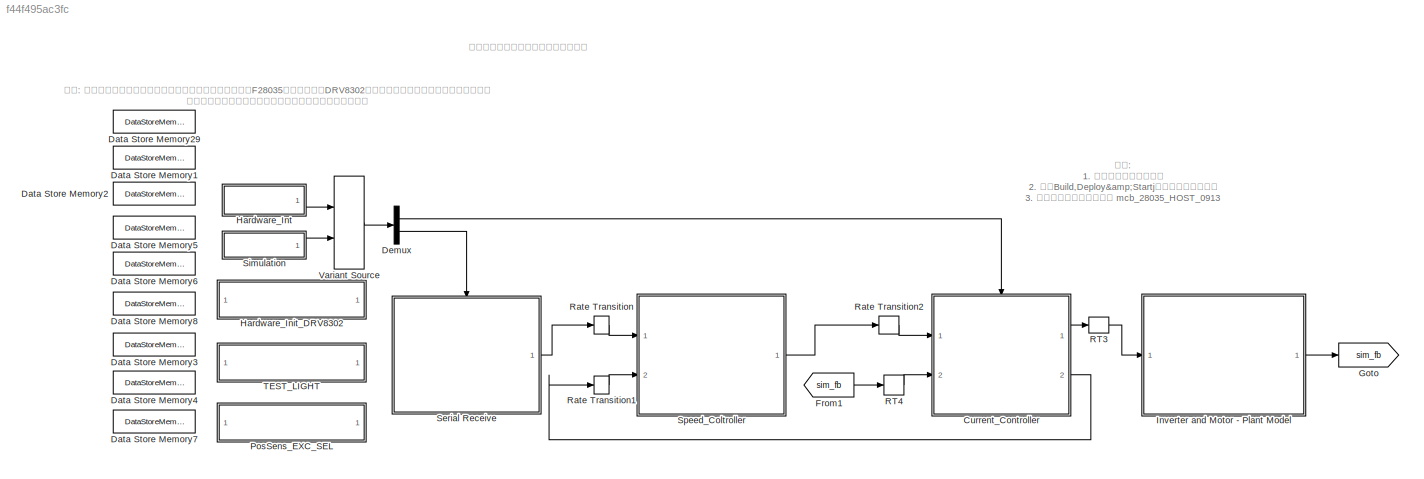
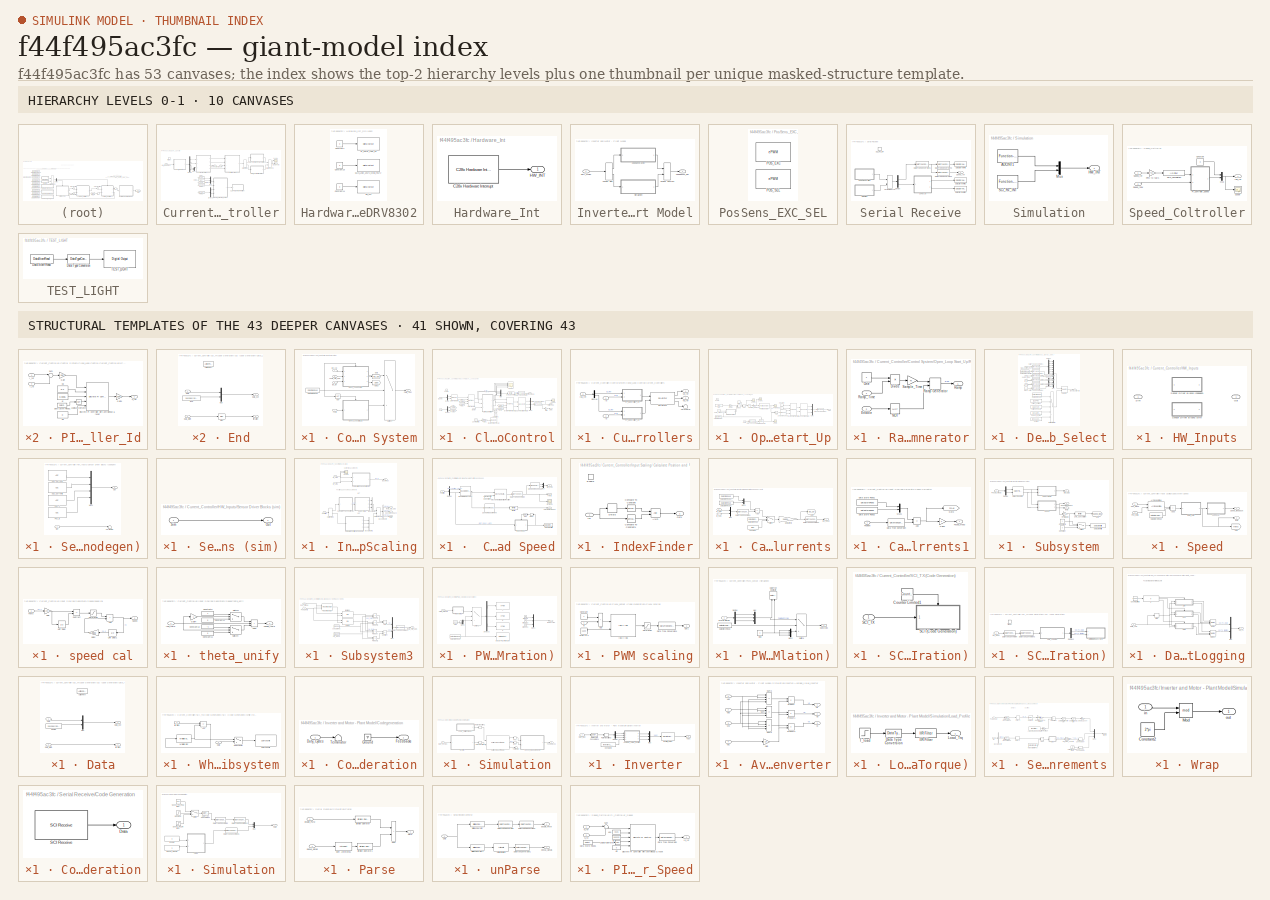
[diagram: thumbnail index - top-2 hierarchy levels (10 canvases) + 41 structural-template representatives of the remaining 43 canvases]
MODEL slx_f44f495ac3fc
KIND model
CONFIG AbsTol = auto
CONFIG EnableMultiTasking = on
CONFIG FixedStep = auto
CONFIG InitFcn = mcb_28035_parameters;
CONFIG MaxStep = auto
CONFIG MinStep = auto
CONFIG RelTol = 1e-3
CONFIG SampleTimeConstraint = Unconstrained
CONFIG SolverName = FixedStepDiscrete
CONFIG StartTime = 0.0
CONFIG StopTime = 4
BLOCK [SubSystem] Current_Controller
  Ports = [2, 2, 0, 1]
  RequestExecContextInheritance = off
BLOCK [SubSystem] Current_Controller/Control System
  Ports = [4, 1]
  RequestExecContextInheritance = off
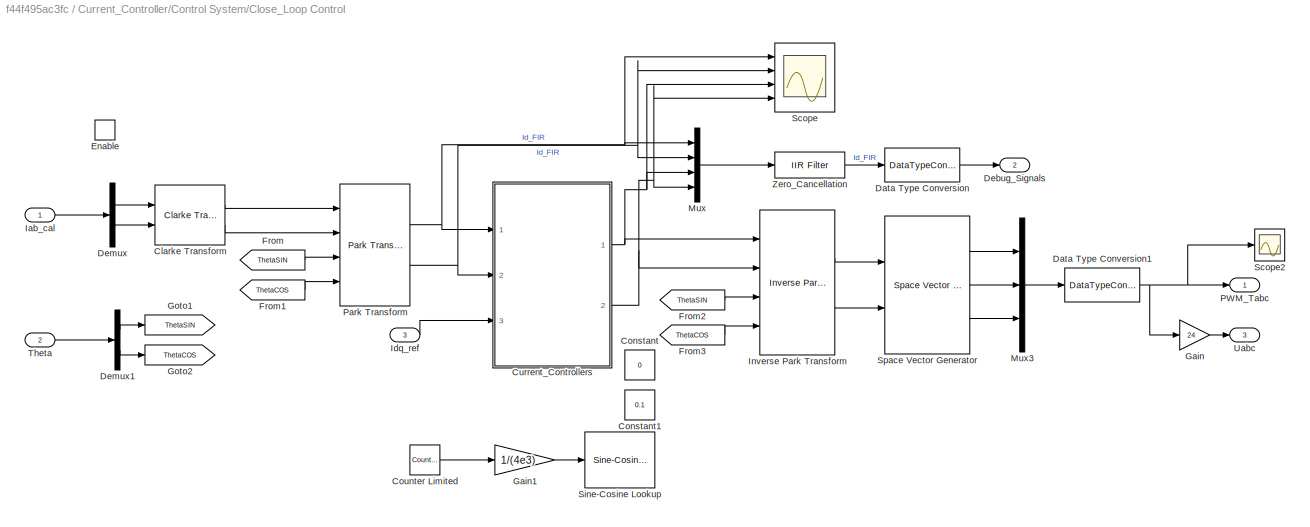
BLOCK [SubSystem] Current_Controller/Control System/Close_Loop Control
  Ports = [3, 3, 1]
  RequestExecContextInheritance = off
BLOCK [Reference] Current_Controller/Control System/Close_Loop Control/Clarke Transform  REF=mcbcontrolslib/Clarke Transform
  Ports = [2, 2]
  SourceBlock = mcbcontrolslib/Clarke Transform
  SourceProductBaseCode = MT
  SourceType = Clarke Transform
BLOCK [Constant] Current_Controller/Control System/Close_Loop Control/Constant
  OutDataTypeStr = fixdt(1,32,24)
  Value = 0
BLOCK [Constant] Current_Controller/Control System/Close_Loop Control/Constant1
  OutDataTypeStr = fixdt(1,32,24)
  Value = 0.1
BLOCK [Reference] Current_Controller/Control System/Close_Loop Control/Counter Limited  REF=simulink/Sources/Counter
Limited
  Ports = [0, 1]
  SourceBlock = simulink/Sources/Counter\nLimited
  SourceProductBaseCode = SL
  SourceType = Counter Limited
BLOCK [SubSystem] Current_Controller/Control System/Close_Loop Control/Current_Controllers
  Ports = [3, 2]
  RequestExecContextInheritance = off
BLOCK [Reference] Current_Controller/Control System/Close_Loop Control/Current_Controllers/DQ Limiter  REF=mcbcontrolslib/DQ Limiter
  Ports = [2, 3]
  SourceBlock = mcbcontrolslib/DQ Limiter
  SourceProductBaseCode = MT
  SourceType = DQ Limiter
BLOCK [Demux] Current_Controller/Control System/Close_Loop Control/Current_Controllers/Demux
  Outputs = 2
  Ports = [1, 2]
BLOCK [Inport] Current_Controller/Control System/Close_Loop Control/Current_Controllers/Id
BLOCK [Inport] Current_Controller/Control System/Close_Loop Control/Current_Controllers/Ida_ref
  Port = 3
BLOCK [Inport] Current_Controller/Control System/Close_Loop Control/Current_Controllers/Iq
  Port = 2
BLOCK [SubSystem] Current_Controller/Control System/Close_Loop Control/Current_Controllers/PI_Controller_Id
  NameLocation = top
  Ports = [2, 1]
  RequestExecContextInheritance = off
BLOCK [DataStoreRead] Current_Controller/Control System/Close_Loop Control/Current_Controllers/PI_Controller_Id/Data Store Read1
  DataStoreName = Enable
  IndexOptions = Index vector (dialog)
  Indices = 1
  OutputSizes = 1
  Ports = [0, 1]
BLOCK [Reference] Current_Controller/Control System/Close_Loop Control/Current_Controllers/PI_Controller_Id/Discrete PI Controller with anti-windup & reset  REF=mcbcontrolslib/Discrete PI Controller 
with anti-windup & reset
  Ports = [5, 1]
  SourceBlock = mcbcontrolslib/Discrete PI Controller \nwith anti-windup & reset
  SourceProductBaseCode = MT
  SourceType = Discrete PI Controller with anti-windup and reset
BLOCK [Gain] Current_Controller/Control System/Close_Loop Control/Current_Controllers/PI_Controller_Id/Gain
  Gain = Gain
  OutDataTypeStr = Inherit: Same as input
BLOCK [Gain] Current_Controller/Control System/Close_Loop Control/Current_Controllers/PI_Controller_Id/Gain1
  Gain = 1/Gain
  OutDataTypeStr = Inherit: Same as input
BLOCK [Inport] Current_Controller/Control System/Close_Loop Control/Current_Controllers/PI_Controller_Id/I_fb
  Port = 2
BLOCK [Inport] Current_Controller/Control System/Close_Loop Control/Current_Controllers/PI_Controller_Id/I_ref
BLOCK [Constant] Current_Controller/Control System/Close_Loop Control/Current_Controllers/PI_Controller_Id/Ki
  OutDataTypeStr = fixdt(1,32,24)
  SampleTime = -1
  Value = 0.0005
BLOCK [Constant] Current_Controller/Control System/Close_Loop Control/Current_Controllers/PI_Controller_Id/Ki1
  NameLocation = top
  OutDataTypeStr = fixdt(1,32,24)
  SampleTime = -1
  Value = 0
BLOCK [Constant] Current_Controller/Control System/Close_Loop Control/Current_Controllers/PI_Controller_Id/Kp
  NameLocation = top
  OutDataTypeStr = fixdt(1,32,24)
  SampleTime = -1
  Value = 0.4
BLOCK [Logic] Current_Controller/Control System/Close_Loop Control/Current_Controllers/PI_Controller_Id/Logical Operator
  AllPortsSameDT = off
  IconShape = distinctive
  Operator = NOT
  OutDataTypeStr = boolean
  Ports = [1, 1]
BLOCK [Sum] Current_Controller/Control System/Close_Loop Control/Current_Controllers/PI_Controller_Id/Sum
  AccumDataTypeStr = Inherit: Same as first input
  Inputs = |+-
  OutDataTypeStr = Inherit: Same as first input
  Ports = [2, 1]
BLOCK [Outport] Current_Controller/Control System/Close_Loop Control/Current_Controllers/PI_Controller_Id/V_ref
  VectorParamsAs1DForOutWhenUnconnected = off
BLOCK [SubSystem] Current_Controller/Control System/Close_Loop Control/Current_Controllers/PI_Controller_Iq
  NameLocation = top
  Ports = [2, 1]
  RequestExecContextInheritance = off
BLOCK [DataStoreRead] Current_Controller/Control System/Close_Loop Control/Current_Controllers/PI_Controller_Iq/Data Store Read1
  DataStoreName = Enable
  IndexOptions = Index vector (dialog)
  Indices = 1
  OutputSizes = 1
  Ports = [0, 1]
BLOCK [Reference] Current_Controller/Control System/Close_Loop Control/Current_Controllers/PI_Controller_Iq/Discrete PI Controller with anti-windup & reset  REF=mcbcontrolslib/Discrete PI Controller 
with anti-windup & reset
  Ports = [5, 1]
  SourceBlock = mcbcontrolslib/Discrete PI Controller \nwith anti-windup & reset
  SourceProductBaseCode = MT
  SourceType = Discrete PI Controller with anti-windup and reset
BLOCK [Gain] Current_Controller/Control System/Close_Loop Control/Current_Controllers/PI_Controller_Iq/Gain
  Gain = Gain
  OutDataTypeStr = Inherit: Same as input
BLOCK [Gain] Current_Controller/Control System/Close_Loop Control/Current_Controllers/PI_Controller_Iq/Gain1
  Gain = 1/Gain
  OutDataTypeStr = Inherit: Same as input
BLOCK [Inport] Current_Controller/Control System/Close_Loop Control/Current_Controllers/PI_Controller_Iq/I_fb
  Port = 2
BLOCK [Inport] Current_Controller/Control System/Close_Loop Control/Current_Controllers/PI_Controller_Iq/I_ref
BLOCK [Constant] Current_Controller/Control System/Close_Loop Control/Current_Controllers/PI_Controller_Iq/Ki
  OutDataTypeStr = fixdt(1,32,24)
  SampleTime = -1
  Value = 0.0005
BLOCK [Constant] Current_Controller/Control System/Close_Loop Control/Current_Controllers/PI_Controller_Iq/Kp
  NameLocation = top
  OutDataTypeStr = fixdt(1,32,24)
  SampleTime = -1
  Value = 0.25
BLOCK [Constant] Current_Controller/Control System/Close_Loop Control/Current_Controllers/PI_Controller_Iq/Kp1
  NameLocation = top
  OutDataTypeStr = fixdt(1,32,24)
  SampleTime = -1
  Value = 0
BLOCK [Logic] Current_Controller/Control System/Close_Loop Control/Current_Controllers/PI_Controller_Iq/Logical Operator
  AllPortsSameDT = off
  IconShape = distinctive
  Operator = NOT
  OutDataTypeStr = boolean
  Ports = [1, 1]
BLOCK [Sum] Current_Controller/Control System/Close_Loop Control/Current_Controllers/PI_Controller_Iq/Sum
  AccumDataTypeStr = Inherit: Same as first input
  Inputs = |+-
  OutDataTypeStr = Inherit: Same as first input
  Ports = [2, 1]
BLOCK [Outport] Current_Controller/Control System/Close_Loop Control/Current_Controllers/PI_Controller_Iq/V_ref
  VectorParamsAs1DForOutWhenUnconnected = off
BLOCK [Terminator] Current_Controller/Control System/Close_Loop Control/Current_Controllers/Terminator
BLOCK [Outport] Current_Controller/Control System/Close_Loop Control/Current_Controllers/Vd_ref
  VectorParamsAs1DForOutWhenUnconnected = off
BLOCK [Outport] Current_Controller/Control System/Close_Loop Control/Current_Controllers/Vq_ref
  Port = 2
  VectorParamsAs1DForOutWhenUnconnected = off
BLOCK [DataTypeConversion] Current_Controller/Control System/Close_Loop Control/Data Type Conversion
  OutDataTypeStr = fixdt(1,32,15)
  RndMeth = Floor
  SaturateOnIntegerOverflow = off
BLOCK [DataTypeConversion] Current_Controller/Control System/Close_Loop Control/Data Type Conversion1
  OutDataTypeStr = fixdt(1,32,15)
  RndMeth = Simplest
  SaturateOnIntegerOverflow = off
BLOCK [Outport] Current_Controller/Control System/Close_Loop Control/Debug_Signals
  Port = 2
BLOCK [Demux] Current_Controller/Control System/Close_Loop Control/Demux
  Outputs = 2
  Ports = [1, 2]
BLOCK [Demux] Current_Controller/Control System/Close_Loop Control/Demux1
  Outputs = 2
  Ports = [1, 2]
BLOCK [EnablePort] Current_Controller/Control System/Close_Loop Control/Enable
  Ports = []
BLOCK [From] Current_Controller/Control System/Close_Loop Control/From
  GotoTag = ThetaSIN
  TagVisibility = global
BLOCK [From] Current_Controller/Control System/Close_Loop Control/From1
  GotoTag = ThetaCOS
  TagVisibility = global
BLOCK [From] Current_Controller/Control System/Close_Loop Control/From2
  GotoTag = ThetaSIN
  TagVisibility = global
BLOCK [From] Current_Controller/Control System/Close_Loop Control/From3
  GotoTag = ThetaCOS
  TagVisibility = global
BLOCK [Gain] Current_Controller/Control System/Close_Loop Control/Gain
  Gain = 24
  OutDataTypeStr = Inherit: Same as input
BLOCK [Gain] Current_Controller/Control System/Close_Loop Control/Gain1
  Gain = 1/(4e3)
  OutDataTypeStr = fixdt(1,32,24)
BLOCK [Goto] Current_Controller/Control System/Close_Loop Control/Goto1
  GotoTag = ThetaSIN
  TagVisibility = global
BLOCK [Goto] Current_Controller/Control System/Close_Loop Control/Goto2
  GotoTag = ThetaCOS
  TagVisibility = global
BLOCK [Inport] Current_Controller/Control System/Close_Loop Control/Iab_cal
BLOCK [Inport] Current_Controller/Control System/Close_Loop Control/Idq_ref
  Port = 3
BLOCK [Reference] Current_Controller/Control System/Close_Loop Control/Inverse Park Transform  REF=mcbcontrolslib/Inverse Park Transform
  Ports = [4, 2]
  SourceBlock = mcbcontrolslib/Inverse Park Transform
  SourceProductBaseCode = MT
  SourceType = Inverse Park Transform
BLOCK [Mux] Current_Controller/Control System/Close_Loop Control/Mux
  DisplayOption = bar
  Ports = [4, 1]
BLOCK [Mux] Current_Controller/Control System/Close_Loop Control/Mux3
  DisplayOption = bar
  Inputs = 3
  Ports = [3, 1]
BLOCK [Outport] Current_Controller/Control System/Close_Loop Control/PWM_Tabc
BLOCK [Reference] Current_Controller/Control System/Close_Loop Control/Park Transform  REF=mcbcontrolslib/Park Transform
  Ports = [4, 2]
  SourceBlock = mcbcontrolslib/Park Transform
  SourceProductBaseCode = MT
  SourceType = Park Transform
BLOCK [Scope] Current_Controller/Control System/Close_Loop Control/Scope
  Floating = off
  NumInputPorts = 4
  Ports = [4]
  ScopeSpecificationString = Simulink.scopes.TimeScopeBlockCfg('CurrentConfiguration', extmgr.ConfigurationSet(extmgr.Configuration('Core','General UI',true),extmgr.Configuration('Core','Source UI',true),extmgr.Configuration('Sources','WiredSimulink',true,'DataLoggingVariableName','ScopeData3'),extmgr.Configuration('Visuals','Time Domain',true,'SerializedDisplays',{struct('MinYLimReal','-0.14023','MaxYLimReal','1.11182','YLab...<+3530ch>
BLOCK [Scope] Current_Controller/Control System/Close_Loop Control/Scope2
  Floating = off
  NumInputPorts = 1
  Ports = [1]
  ScopeSpecificationString = Simulink.scopes.TimeScopeBlockCfg('CurrentConfiguration', extmgr.ConfigurationSet(extmgr.Configuration('Core','General UI',true),extmgr.Configuration('Core','Source UI',true),extmgr.Configuration('Sources','WiredSimulink',true,'DataLoggingVariableName','ScopeData14'),extmgr.Configuration('Visuals','Time Domain',true,'SerializedDisplays',{struct('MinYLimReal','-0.60459','MaxYLimReal','0.60456','YLa...<+1435ch>
BLOCK [Reference] Current_Controller/Control System/Close_Loop Control/Sine-Cosine Lookup  REF=mcbcontrolslib/Sine-Cosine Lookup
  Ports = [1, 2]
  SourceBlock = mcbcontrolslib/Sine-Cosine Lookup
  SourceProductBaseCode = MT
  SourceType = Sine-Cosine Lookup
BLOCK [Reference] Current_Controller/Control System/Close_Loop Control/Space Vector Generator  REF=mcbcontrolslib/Space Vector Generator
  Ports = [2, 3]
  SourceBlock = mcbcontrolslib/Space Vector Generator
  SourceProductBaseCode = MT
  SourceType = Space Vector Generator
BLOCK [Inport] Current_Controller/Control System/Close_Loop Control/Theta
  Port = 2
BLOCK [Outport] Current_Controller/Control System/Close_Loop Control/Uabc
  Port = 3
BLOCK [Reference] Current_Controller/Control System/Close_Loop Control/Zero_Cancellation  REF=mcbcontrolslib/IIR Filter
  Ports = [1, 1]
  SourceBlock = mcbcontrolslib/IIR Filter
  SourceProductBaseCode = MT
  SourceType = IIR Filter
BLOCK [DataStoreRead] Current_Controller/Control System/Data Store Read
  DataStoreName = EnClosedLoop
  IndexOptions = Index vector (dialog)
  Indices = 1
  OutputSizes = 1
  Ports = [0, 1]
BLOCK [Goto] Current_Controller/Control System/Goto
  GotoTag = Idq_Udq
  TagVisibility = global
BLOCK [Goto] Current_Controller/Control System/Goto1
  GotoTag = Uabc
  TagVisibility = global
BLOCK [Inport] Current_Controller/Control System/Iab_cal
BLOCK [Inport] Current_Controller/Control System/Idq_ref
  Port = 3
BLOCK [Logic] Current_Controller/Control System/NOT
  AllPortsSameDT = off
  IconShape = distinctive
  Operator = NOT
  OutDataTypeStr = boolean
  Ports = [1, 1]
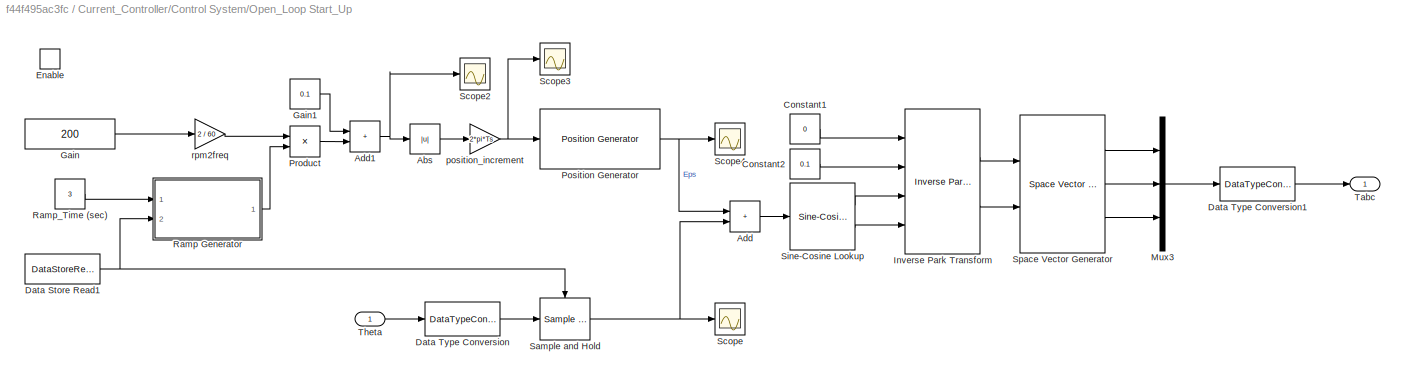
BLOCK [SubSystem] Current_Controller/Control System/Open_Loop Start_Up
  Ports = [1, 1, 1]
  RequestExecContextInheritance = off
BLOCK [Abs] Current_Controller/Control System/Open_Loop Start_Up/Abs
  SaturateOnIntegerOverflow = off
BLOCK [Sum] Current_Controller/Control System/Open_Loop Start_Up/Add
  IconShape = rectangular
  Ports = [2, 1]
BLOCK [Sum] Current_Controller/Control System/Open_Loop Start_Up/Add1
  IconShape = rectangular
  Ports = [2, 1]
BLOCK [Constant] Current_Controller/Control System/Open_Loop Start_Up/Constant1
  OutDataTypeStr = fixdt(1,32,24)
  Value = 0
BLOCK [Constant] Current_Controller/Control System/Open_Loop Start_Up/Constant2
  OutDataTypeStr = fixdt(1,32,24)
  Value = 0.1
BLOCK [DataStoreRead] Current_Controller/Control System/Open_Loop Start_Up/Data Store Read1
  DataStoreName = Enable
  IndexOptions = Index vector (dialog)
  Indices = 1
  OutputSizes = 1
  Ports = [0, 1]
BLOCK [DataTypeConversion] Current_Controller/Control System/Open_Loop Start_Up/Data Type Conversion
  OutDataTypeStr = fixdt(1,32,24)
  RndMeth = Floor
  SaturateOnIntegerOverflow = off
BLOCK [DataTypeConversion] Current_Controller/Control System/Open_Loop Start_Up/Data Type Conversion1
  OutDataTypeStr = fixdt(1,32,15)
  RndMeth = Simplest
  SaturateOnIntegerOverflow = off
BLOCK [EnablePort] Current_Controller/Control System/Open_Loop Start_Up/Enable
  Ports = []
  StatesWhenEnabling = reset
BLOCK [Constant] Current_Controller/Control System/Open_Loop Start_Up/Gain
  OutDataTypeStr = fixdt(1,32,15)
  SampleTime = -1
  Value = 200
BLOCK [Constant] Current_Controller/Control System/Open_Loop Start_Up/Gain1
  OutDataTypeStr = fixdt(1,32,24)
  SampleTime = -1
  Value = 0.1
BLOCK [Reference] Current_Controller/Control System/Open_Loop Start_Up/Inverse Park Transform  REF=mcbcontrolslib/Inverse Park Transform
  Ports = [4, 2]
  SourceBlock = mcbcontrolslib/Inverse Park Transform
  SourceProductBaseCode = MT
  SourceType = Inverse Park Transform
BLOCK [Mux] Current_Controller/Control System/Open_Loop Start_Up/Mux3
  DisplayOption = bar
  Inputs = 3
  Ports = [3, 1]
BLOCK [Reference] Current_Controller/Control System/Open_Loop Start_Up/Position Generator  REF=mcbcontrolslib/Position Generator
  Ports = [1, 1]
  SourceBlock = mcbcontrolslib/Position Generator
  SourceProductBaseCode = MT
  SourceType = Position Generator
BLOCK [Product] Current_Controller/Control System/Open_Loop Start_Up/Product
  OutDataTypeStr = Inherit: Same as first input
  Ports = [2, 1]
  RndMeth = Simplest
BLOCK [SubSystem] Current_Controller/Control System/Open_Loop Start_Up/Ramp Generator
  Ports = [2, 1]
  RequestExecContextInheritance = off
BLOCK [Product] Current_Controller/Control System/Open_Loop Start_Up/Ramp Generator/Divide
  Inputs = */
  OutDataTypeStr = Inherit: Same as first input
  Ports = [2, 1]
  RndMeth = Simplest
BLOCK [Inport] Current_Controller/Control System/Open_Loop Start_Up/Ramp Generator/Enable
  Port = 2
BLOCK [Logic] Current_Controller/Control System/Open_Loop Start_Up/Ramp Generator/NOT
  AllPortsSameDT = off
  IconShape = distinctive
  Operator = NOT
  OutDataTypeStr = boolean
  Ports = [1, 1]
BLOCK [Constant] Current_Controller/Control System/Open_Loop Start_Up/Ramp Generator/One
  OutDataTypeStr = fixdt(1,32,24)
  SampleTime = -1
BLOCK [Outport] Current_Controller/Control System/Open_Loop Start_Up/Ramp Generator/Ramp
BLOCK [DiscreteIntegrator] Current_Controller/Control System/Open_Loop Start_Up/Ramp Generator/Ramp Generator
  ExternalReset = sampled level
  ICPrevOutput = DiscIntNeverNeededParam
  ICPrevScaledInput = DiscIntNeverNeededParam
  IntegratorMethod = Accumulation: Forward Euler
  LimitOutput = on
  LowerSaturationLimit = 0
  OutDataTypeStr = fixdt(1,32,24)
  Ports = [2, 1]
  RndMeth = Simplest
  SampleTime = -1
  UpperSaturationLimit = 1
  gainval = 1
BLOCK [Inport] Current_Controller/Control System/Open_Loop Start_Up/Ramp Generator/Ramp_Time
BLOCK [Gain] Current_Controller/Control System/Open_Loop Start_Up/Ramp Generator/Sample_Time
  Gain = Ts
  OutDataTypeStr = Inherit: Same as input
  RndMeth = Simplest
BLOCK [Constant] Current_Controller/Control System/Open_Loop Start_Up/Ramp_Time (sec)
  OutDataTypeStr = fixdt(1,32,24)
  SampleTime = -1
  Value = 3
BLOCK [Reference] Current_Controller/Control System/Open_Loop Start_Up/Sample and Hold  REF=dspsigops/Sample
and Hold
  Ports = [1, 1, 0, 1]
  SourceBlock = dspsigops/Sample\nand Hold
  SourceProductBaseCode = DS
  SourceType = Sample and Hold
BLOCK [Scope] Current_Controller/Control System/Open_Loop Start_Up/Scope
  Floating = off
  NumInputPorts = 1
  Ports = [1]
  ScopeSpecificationString = Simulink.scopes.TimeScopeBlockCfg('CurrentConfiguration', extmgr.ConfigurationSet(extmgr.Configuration('Core','General UI',true),extmgr.Configuration('Core','Source UI',true),extmgr.Configuration('Sources','WiredSimulink',true,'DataLoggingVariableName','ScopeData4'),extmgr.Configuration('Visuals','Time Domain',true,'SerializedDisplays',{struct('MinYLimReal','-0.78539','MaxYLimReal','7.0685','YLabe...<+1395ch>
BLOCK [Scope] Current_Controller/Control System/Open_Loop Start_Up/Scope2
  Floating = off
  NumInputPorts = 1
  Ports = [1]
  ScopeSpecificationString = Simulink.scopes.TimeScopeBlockCfg('CurrentConfiguration', extmgr.ConfigurationSet(extmgr.Configuration('Core','General UI',true),extmgr.Configuration('Core','Source UI',true),extmgr.Configuration('Sources','WiredSimulink',true,'DataLoggingVariableName','ScopeData17'),extmgr.Configuration('Visuals','Time Domain',true,'SerializedDisplays',{struct('MinYLimReal','0.07226','MaxYLimReal','0.34964','YLab...<+1387ch>
BLOCK [Scope] Current_Controller/Control System/Open_Loop Start_Up/Scope3
  Floating = off
  NumInputPorts = 1
  Ports = [1]
  ScopeSpecificationString = Simulink.scopes.TimeScopeBlockCfg('CurrentConfiguration', extmgr.ConfigurationSet(extmgr.Configuration('Core','General UI',true),extmgr.Configuration('Core','Source UI',true),extmgr.Configuration('Sources','WiredSimulink',true,'DataLoggingVariableName','ScopeData18'),extmgr.Configuration('Visuals','Time Domain',true,'SerializedDisplays',{struct('MinYLimReal','0.00005','MaxYLimReal','0.00022','YLab...<+1434ch>
BLOCK [Scope] Current_Controller/Control System/Open_Loop Start_Up/Scope4
  Floating = off
  NumInputPorts = 1
  Ports = [1]
  ScopeSpecificationString = Simulink.scopes.TimeScopeBlockCfg('CurrentConfiguration', extmgr.ConfigurationSet(extmgr.Configuration('Core','General UI',true),extmgr.Configuration('Core','Source UI',true),extmgr.Configuration('Sources','WiredSimulink',true,'DataLoggingVariableName','ScopeData19'),extmgr.Configuration('Visuals','Time Domain',true,'SerializedDisplays',{struct('MinYLimReal','-0.01652','MaxYLimReal','0.14864','YLa...<+1407ch>
BLOCK [Reference] Current_Controller/Control System/Open_Loop Start_Up/Sine-Cosine Lookup  REF=mcbcontrolslib/Sine-Cosine Lookup
  Ports = [1, 2]
  SourceBlock = mcbcontrolslib/Sine-Cosine Lookup
  SourceProductBaseCode = MT
  SourceType = Sine-Cosine Lookup
BLOCK [Reference] Current_Controller/Control System/Open_Loop Start_Up/Space Vector Generator  REF=mcbcontrolslib/Space Vector Generator
  Ports = [2, 3]
  SourceBlock = mcbcontrolslib/Space Vector Generator
  SourceProductBaseCode = MT
  SourceType = Space Vector Generator
BLOCK [Outport] Current_Controller/Control System/Open_Loop Start_Up/Tabc
BLOCK [Inport] Current_Controller/Control System/Open_Loop Start_Up/Theta
BLOCK [Gain] Current_Controller/Control System/Open_Loop Start_Up/position_increment
  Gain = 2*pi*Ts
  OutDataTypeStr = Inherit: Same as input
  RndMeth = Simplest
BLOCK [Gain] Current_Controller/Control System/Open_Loop Start_Up/rpm2freq
  Gain = 2 / 60
  OutDataTypeStr = fixdt(1,32,24)
  RndMeth = Simplest
BLOCK [Outport] Current_Controller/Control System/PWM_Tabc
BLOCK [Switch] Current_Controller/Control System/Switch4
  InputSameDT = off
  OutDataTypeStr = Inherit: Inherit via back propagation
  RndMeth = Simplest
  SaturateOnIntegerOverflow = off
  Threshold = 0.5
BLOCK [Inport] Current_Controller/Control System/Theta
  Port = 4
BLOCK [Inport] Current_Controller/Control System/Theta_SIN_COS
  Port = 2
BLOCK [SubSystem] Current_Controller/Debug_Signals_Select
  Ports = [4, 1]
  RequestExecContextInheritance = off
BLOCK [Constant] Current_Controller/Debug_Signals_Select/Blank
  OutDataTypeStr = Inherit: Inherit via back propagation
  Value = 0
BLOCK [Constant] Current_Controller/Debug_Signals_Select/Current_PosAB
  OutDataTypeStr = uint16
  SampleTime = -1
  Value = [1 2 6 7 14]
BLOCK [Constant] Current_Controller/Debug_Signals_Select/Current_Voltage
  OutDataTypeStr = uint16
  SampleTime = -1
  Value = [1 2 3 4 5]
BLOCK [DataStoreRead] Current_Controller/Debug_Signals_Select/Data Store Read
  DataStoreName = Speed_ref
  IndexOptions = Index vector (dialog)
  Indices = 1
  OutputSizes = 1
  Ports = [0, 1]
BLOCK [DataStoreRead] Current_Controller/Debug_Signals_Select/Data Store Read1
  DataStoreName = Debug_signals
  IndexOptions = Index vector (dialog)
  Indices = 1
  OutputSizes = 1
  Ports = [0, 1]
BLOCK [DataTypeConversion] Current_Controller/Debug_Signals_Select/Data Type Conversion1
  ConvertRealWorld = Stored Integer (SI)
  OutDataTypeStr = int32
  RndMeth = Simplest
  SaturateOnIntegerOverflow = off
BLOCK [DataTypeConversion] Current_Controller/Debug_Signals_Select/Data Type Conversion2
  ConvertRealWorld = Stored Integer (SI)
  OutDataTypeStr = int32
  RndMeth = Simplest
  SaturateOnIntegerOverflow = off
BLOCK [DataTypeConversion] Current_Controller/Debug_Signals_Select/Data Type Conversion3
  ConvertRealWorld = Stored Integer (SI)
  OutDataTypeStr = int32
  RndMeth = Simplest
  SaturateOnIntegerOverflow = off
BLOCK [DataTypeConversion] Current_Controller/Debug_Signals_Select/Data Type Conversion4
  ConvertRealWorld = Stored Integer (SI)
  OutDataTypeStr = int32
  RndMeth = Simplest
  SaturateOnIntegerOverflow = off
BLOCK [DataTypeConversion] Current_Controller/Debug_Signals_Select/Data Type Conversion5
  ConvertRealWorld = Stored Integer (SI)
  OutDataTypeStr = int32
  RndMeth = Simplest
  SaturateOnIntegerOverflow = off
BLOCK [DataTypeConversion] Current_Controller/Debug_Signals_Select/Data Type Conversion6
  ConvertRealWorld = Stored Integer (SI)
  OutDataTypeStr = int32
  RndMeth = Simplest
  SaturateOnIntegerOverflow = off
BLOCK [Outport] Current_Controller/Debug_Signals_Select/Debug_Signals
BLOCK [Demux] Current_Controller/Debug_Signals_Select/Demux
  Outputs = 7
  Ports = [1, 7]
BLOCK [Demux] Current_Controller/Debug_Signals_Select/Demux1
  Outputs = 2
  Ports = [1, 2]
BLOCK [Demux] Current_Controller/Debug_Signals_Select/Demux2
  Outputs = 2
  Ports = [1, 2]
BLOCK [Inport] Current_Controller/Debug_Signals_Select/Id_Iq
  Port = 3
BLOCK [MultiPortSwitch] Current_Controller/Debug_Signals_Select/Multiport Switch
  DiagnosticForDefault = Warning
  InputSameDT = off
  Inputs = 4
  OutDataTypeStr = uint16
  Ports = [5, 1]
  RndMeth = Simplest
  SaturateOnIntegerOverflow = off
BLOCK [Mux] Current_Controller/Debug_Signals_Select/Mux
  DisplayOption = bar
  Inputs = 14
  Ports = [14, 1]
BLOCK [Inport] Current_Controller/Debug_Signals_Select/Raw_Current_Pos
BLOCK [Selector] Current_Controller/Debug_Signals_Select/Selector
  IndexOptions = Index vector (port)
  Indices = [1 3]
  InputPortWidth = 14
  OutputSizes = 1
  Ports = [2, 1]
BLOCK [Inport] Current_Controller/Debug_Signals_Select/Speed_fdbk
  Port = 2
BLOCK [Constant] Current_Controller/Debug_Signals_Select/Speed_ref_fdbk
  OutDataTypeStr = uint16
  SampleTime = -1
  Value = [10 11 8 9 14]
  VectorParams1D = off
BLOCK [Inport] Current_Controller/Debug_Signals_Select/Ud_Uq
  Port = 4
BLOCK [Constant] Current_Controller/Debug_Signals_Select/Udq-Idq
  OutDataTypeStr = uint16
  SampleTime = -1
  Value = [10 11 12 13 14]
  VectorParams1D = off
BLOCK [Demux] Current_Controller/Demux
  Ports = [1, 4]
BLOCK [Demux] Current_Controller/Demux1
  Outputs = 2
  Ports = [1, 2]
BLOCK [Outport] Current_Controller/Duty Cycles
  InitialOutput = 0
  VectorParamsAs1DForOutWhenUnconnected = off
BLOCK [From] Current_Controller/From
  GotoTag = PosAB
  TagVisibility = global
BLOCK [From] Current_Controller/From1
  GotoTag = Iab_Cal
  TagVisibility = global
BLOCK [From] Current_Controller/From2
  GotoTag = Idq_Udq
  TagVisibility = global
BLOCK [From] Current_Controller/From3
  GotoTag = Uabc
  TagVisibility = global
BLOCK [From] Current_Controller/From4
  GotoTag = Speed_fdbk
  TagVisibility = global
BLOCK [SubSystem] Current_Controller/HW_Inputs
  Ports = [1, 1]
  RequestExecContextInheritance = off
  Variant = on
  VariantControlMode = sim codegen switching
BLOCK [Outport] Current_Controller/HW_Inputs/Out
BLOCK [SubSystem] Current_Controller/HW_Inputs/Sensor Driver Blocks (codegen)
  Ports = [1, 1]
  RequestExecContextInheritance = off
  VariantControl = (codegen)
BLOCK [Mux] Current_Controller/HW_Inputs/Sensor Driver Blocks (codegen)/Mux1
  DisplayOption = bar
  Ports = [4, 1]
BLOCK [Outport] Current_Controller/HW_Inputs/Sensor Driver Blocks (codegen)/Out
BLOCK [Reference] Current_Controller/HW_Inputs/Sensor Driver Blocks (codegen)/Pos_A  REF=c2802xlib/ADC
  Ports = [0, 1]
  SourceBlock = c2802xlib/ADC
  SourceProductBaseCode = TIC2000
  SourceType = C2802x/03x/05x/06x/M3x/37x/07x/004x/38x/002x ADC
  UserDataPersistent = on
BLOCK [Reference] Current_Controller/HW_Inputs/Sensor Driver Blocks (codegen)/Pos_B  REF=c2802xlib/ADC
  Ports = [0, 1]
  SourceBlock = c2802xlib/ADC
  SourceProductBaseCode = TIC2000
  SourceType = C2802x/03x/05x/06x/M3x/37x/07x/004x/38x/002x ADC
  UserDataPersistent = on
BLOCK [Reference] Current_Controller/HW_Inputs/Sensor Driver Blocks (codegen)/SO1_CurrentA  REF=c2802xlib/ADC
  Ports = [0, 1]
  SourceBlock = c2802xlib/ADC
  SourceProductBaseCode = TIC2000
  SourceType = C2802x/03x/05x/06x/M3x/37x/07x/004x/38x/002x ADC
  UserDataPersistent = on
BLOCK [Reference] Current_Controller/HW_Inputs/Sensor Driver Blocks (codegen)/SO2_CurrentB  REF=c2802xlib/ADC
  Ports = [0, 1]
  SourceBlock = c2802xlib/ADC
  SourceProductBaseCode = TIC2000
  SourceType = C2802x/03x/05x/06x/M3x/37x/07x/004x/38x/002x ADC
  UserDataPersistent = on
BLOCK [Inport] Current_Controller/HW_Inputs/Sensor Driver Blocks (codegen)/Sim
BLOCK [Terminator] Current_Controller/HW_Inputs/Sensor Driver Blocks (codegen)/Terminator
BLOCK [SubSystem] Current_Controller/HW_Inputs/Sensor Driver Blocks (sim)
  Ports = [1, 1]
  RequestExecContextInheritance = off
  VariantControl = (sim)
BLOCK [Outport] Current_Controller/HW_Inputs/Sensor Driver Blocks (sim)/Out
BLOCK [Inport] Current_Controller/HW_Inputs/Sensor Driver Blocks (sim)/Sim
BLOCK [Inport] Current_Controller/HW_Inputs/Sim
BLOCK [Inport] Current_Controller/Idq_ref
BLOCK [SubSystem] Current_Controller/Input Scaling
  Ports = [3, 4]
  RequestExecContextInheritance = off
BLOCK [SubSystem] Current_Controller/Input Scaling/ Calculate Position and Speed
  Ports = [1, 3]
  RequestExecContextInheritance = off
BLOCK [DataStoreWrite] Current_Controller/Input Scaling/ Calculate Position and Speed/Data Store Write
  DataStoreName = EnClosedLoop
  IndexOptions = Index vector (dialog)
  Indices = 1
  OutputSizes = 1
  Ports = [1]
BLOCK [DataTypeConversion] Current_Controller/Input Scaling/ Calculate Position and Speed/Data Type Conversion
  OutDataTypeStr = fixdt(1,32,24)
  RndMeth = Floor
  SaturateOnIntegerOverflow = off
BLOCK [Delay] Current_Controller/Input Scaling/ Calculate Position and Speed/Delay
  DelayLength = 1
  InputPortMap = u0
  Ports = [1, 1]
BLOCK [Demux] Current_Controller/Input Scaling/ Calculate Position and Speed/Demux
  Outputs = 2
  Ports = [1, 2]
BLOCK [Reference] Current_Controller/Input Scaling/ Calculate Position and Speed/IIR Filter  REF=mcbcontrolslib/IIR Filter
  Ports = [1, 1]
  SourceBlock = mcbcontrolslib/IIR Filter
  SourceProductBaseCode = MT
  SourceType = IIR Filter
BLOCK [SubSystem] Current_Controller/Input Scaling/ Calculate Position and Speed/IndexFinder
  Ports = [1, 1, 1]
  RequestExecContextInheritance = off
BLOCK [Logic] Current_Controller/Input Scaling/ Calculate Position and Speed/IndexFinder/AND
  AllPortsSameDT = off
  OutDataTypeStr = boolean
  Ports = [2, 1]
BLOCK [Reference] Current_Controller/Input Scaling/ Calculate Position and Speed/IndexFinder/Compare To Constant  REF=simulink/Logic and Bit
Operations/Compare
To Constant
  Ports = [1, 1]
  SourceBlock = simulink/Logic and Bit\nOperations/Compare\nTo Constant
  SourceProductBaseCode = SL
  SourceType = Compare To Constant
BLOCK [Reference] Current_Controller/Input Scaling/ Calculate Position and Speed/IndexFinder/Compare To Constant1  REF=simulink/Logic and Bit
Operations/Compare
To Constant
  Ports = [1, 1]
  SourceBlock = simulink/Logic and Bit\nOperations/Compare\nTo Constant
  SourceProductBaseCode = SL
  SourceType = Compare To Constant
BLOCK [Delay] Current_Controller/Input Scaling/ Calculate Position and Speed/IndexFinder/Delay3
  DelayLength = 1
  InputPortMap = u0
  Ports = [1, 1]
BLOCK [EnablePort] Current_Controller/Input Scaling/ Calculate Position and Speed/IndexFinder/Enable
  Ports = []
BLOCK [Inport] Current_Controller/Input Scaling/ Calculate Position and Speed/IndexFinder/In1
BLOCK [Outport] Current_Controller/Input Scaling/ Calculate Position and Speed/IndexFinder/Out1
BLOCK [Constant] Current_Controller/Input Scaling/ Calculate Position and Speed/IndexOffset
  OutDataTypeStr = fixdt(1,32,15)
  SampleTime = -1
  Value = pmsm.PositionOffset * 2 * pi
BLOCK [Reference] Current_Controller/Input Scaling/ Calculate Position and Speed/Mechanical to Electrical Position  REF=mcbpositiondecoderlib/Mechanical to Electrical Position
  Ports = [2, 1]
  SourceBlock = mcbpositiondecoderlib/Mechanical to Electrical Position
  SourceProductBaseCode = MT
  SourceType = Mechanical to Electrical Position
BLOCK [Mux] Current_Controller/Input Scaling/ Calculate Position and Speed/Mux
  DisplayOption = bar
  Inputs = 2
  Ports = [2, 1]
BLOCK [Logic] Current_Controller/Input Scaling/ Calculate Position and Speed/NOT
  AllPortsSameDT = off
  Operator = NOT
  OutDataTypeStr = boolean
  Ports = [1, 1]
BLOCK [Inport] Current_Controller/Input Scaling/ Calculate Position and Speed/Position
BLOCK [Reference] Current_Controller/Input Scaling/ Calculate Position and Speed/Quadrature Decoder  REF=mcbpositiondecoderlib/Quadrature Decoder
  Ports = [2, 1]
  SourceBlock = mcbpositiondecoderlib/Quadrature Decoder
  SourceProductBaseCode = MT
  SourceType = Quadrature Decoder
BLOCK [Outport] Current_Controller/Input Scaling/ Calculate Position and Speed/SIN_COS
  VectorParamsAs1DForOutWhenUnconnected = off
BLOCK [Scope] Current_Controller/Input Scaling/ Calculate Position and Speed/Scope1
  Floating = off
  NumInputPorts = 1
  Ports = [1]
  ScopeSpecificationString = Simulink.scopes.TimeScopeBlockCfg('CurrentConfiguration', extmgr.ConfigurationSet(extmgr.Configuration('Core','General UI',true),extmgr.Configuration('Core','Source UI',true),extmgr.Configuration('Sources','WiredSimulink',true,'DataLoggingVariableName','ScopeData9'),extmgr.Configuration('Visuals','Time Domain',true,'SerializedDisplays',{struct('MinYLimReal','-0.785','MaxYLimReal','7.06503','YLabel...<+1448ch>
BLOCK [Reference] Current_Controller/Input Scaling/ Calculate Position and Speed/Sine-Cosine Lookup  REF=mcbcontrolslib/Sine-Cosine Lookup
  Ports = [1, 2]
  SourceBlock = mcbcontrolslib/Sine-Cosine Lookup
  SourceProductBaseCode = MT
  SourceType = Sine-Cosine Lookup
BLOCK [Reference] Current_Controller/Input Scaling/ Calculate Position and Speed/Speed Measurement  REF=mcbpositiondecoderlib/Speed Measurement
  Ports = [1, 1]
  SourceBlock = mcbpositiondecoderlib/Speed Measurement
  SourceProductBaseCode = MT
  SourceType = Speed Measurement
BLOCK [Outport] Current_Controller/Input Scaling/ Calculate Position and Speed/Theta
  Port = 3
  VectorParamsAs1DForOutWhenUnconnected = off
BLOCK [Outport] Current_Controller/Input Scaling/ Calculate Position and Speed/speedfeedback
  Port = 2
  VectorParamsAs1DForOutWhenUnconnected = off
BLOCK [BusCreator] Current_Controller/Input Scaling/Bus Creator
  DisplayOption = bar
  InheritFromInputs = on
  Inputs = 3
  Ports = [3, 1]
BLOCK [BusCreator] Current_Controller/Input Scaling/Bus Creator1
  DisplayOption = bar
  InheritFromInputs = on
  Inputs = 3
  Ports = [3, 1]
BLOCK [BusSelector] Current_Controller/Input Scaling/Bus Selector
  OutputSignals = signal1,signal2,signal3
  Ports = [1, 3]
BLOCK [SubSystem] Current_Controller/Input Scaling/Calculate Phase Currents
  Ports = [2, 1]
  RequestExecContextInheritance = off
BLOCK [Sum] Current_Controller/Input Scaling/Calculate Phase Currents/Add
  AccumDataTypeStr = Inherit: Same as first input
  IconShape = rectangular
  Inputs = -+
  Ports = [2, 1]
BLOCK [Constant] Current_Controller/Input Scaling/Calculate Phase Currents/Constant
  OutDataTypeStr = fixdt(1,32,15)
  Value = [0 0]
BLOCK [DataStoreRead] Current_Controller/Input Scaling/Calculate Phase Currents/Data Store Read
  DataStoreName = Enable
  IndexOptions = Index vector (dialog)
  Indices = 1
  OutputSizes = 1
  Ports = [0, 1]
BLOCK [DataStoreRead] Current_Controller/Input Scaling/Calculate Phase Currents/Data Store Read1
  DataStoreName = IaOffset
  IndexOptions = Index vector (dialog)
  Indices = 1
  OutputSizes = 1
  Ports = [0, 1]
BLOCK [DataStoreRead] Current_Controller/Input Scaling/Calculate Phase Currents/Data Store Read2
  DataStoreName = IbOffset
  IndexOptions = Index vector (dialog)
  Indices = 1
  OutputSizes = 1
  Ports = [0, 1]
BLOCK [DataTypeConversion] Current_Controller/Input Scaling/Calculate Phase Currents/Data Type Conversion
  OutDataTypeStr = fixdt(1,32,15)
  RndMeth = Simplest
  SaturateOnIntegerOverflow = off
BLOCK [DataTypeConversion] Current_Controller/Input Scaling/Calculate Phase Currents/Data Type Conversion1
  OutDataTypeStr = fixdt(1,32,24)
  RndMeth = Simplest
  SaturateOnIntegerOverflow = off
BLOCK [Gain] Current_Controller/Input Scaling/Calculate Phase Currents/Get Currents
  Gain = 3.3/4095/10/0.025
  OutDataTypeStr = Inherit: Same as input
  RndMeth = Simplest
BLOCK [Goto] Current_Controller/Input Scaling/Calculate Phase Currents/Goto
  GotoTag = Iab_Cal
  TagVisibility = global
BLOCK [Inport] Current_Controller/Input Scaling/Calculate Phase Currents/Ia_ADC
BLOCK [Outport] Current_Controller/Input Scaling/Calculate Phase Currents/Iab_meas
  VectorParamsAs1DForOutWhenUnconnected = off
BLOCK [Inport] Current_Controller/Input Scaling/Calculate Phase Currents/Ib_ADC
  Port = 2
BLOCK [Mux] Current_Controller/Input Scaling/Calculate Phase Currents/Mux
  DisplayOption = bar
  Inputs = 2
  Ports = [2, 1]
BLOCK [Mux] Current_Controller/Input Scaling/Calculate Phase Currents/Mux1
  DisplayOption = bar
  Inputs = 2
  Ports = [2, 1]
BLOCK [Switch] Current_Controller/Input Scaling/Calculate Phase Currents/Switch
  Criteria = u2 > Threshold
  InputSameDT = off
  SaturateOnIntegerOverflow = off
BLOCK [SubSystem] Current_Controller/Input Scaling/Calculate Phase Currents1
  Ports = [1, 1]
  RequestExecContextInheritance = off
BLOCK [Sum] Current_Controller/Input Scaling/Calculate Phase Currents1/Add
  IconShape = rectangular
  Inputs = -+
  Ports = [2, 1]
BLOCK [DataStoreRead] Current_Controller/Input Scaling/Calculate Phase Currents1/Data Store Read1
  DataStoreName = PosaOffset
  IndexOptions = Index vector (dialog)
  Indices = 1
  OutputSizes = 1
  Ports = [0, 1]
BLOCK [DataStoreRead] Current_Controller/Input Scaling/Calculate Phase Currents1/Data Store Read2
  DataStoreName = PosbOffset
  IndexOptions = Index vector (dialog)
  Indices = 1
  OutputSizes = 1
  Ports = [0, 1]
BLOCK [DataTypeConversion] Current_Controller/Input Scaling/Calculate Phase Currents1/Data Type Conversion
  OutDataTypeStr = fixdt(1,32,15)
  RndMeth = Simplest
  SaturateOnIntegerOverflow = off
BLOCK [Gain] Current_Controller/Input Scaling/Calculate Phase Currents1/Gain2
  OutDataTypeStr = Inherit: Same as input
BLOCK [Goto] Current_Controller/Input Scaling/Calculate Phase Currents1/Goto
  GotoTag = PosAB
  TagVisibility = global
BLOCK [Mux] Current_Controller/Input Scaling/Calculate Phase Currents1/Mux1
  DisplayOption = bar
  Inputs = 2
  Ports = [2, 1]
BLOCK [Outport] Current_Controller/Input Scaling/Calculate Phase Currents1/Posab_meas
  VectorParamsAs1DForOutWhenUnconnected = off
BLOCK [Inport] Current_Controller/Input Scaling/Calculate Phase Currents1/Position
BLOCK [Inport] Current_Controller/Input Scaling/Ia_ADC
BLOCK [Outport] Current_Controller/Input Scaling/Iab_meas
BLOCK [Inport] Current_Controller/Input Scaling/Ib_ADC
  Port = 2
BLOCK [Inport] Current_Controller/Input Scaling/Position
  Port = 3
BLOCK [Scope] Current_Controller/Input Scaling/Scope
  Floating = off
  NumInputPorts = 2
  Ports = [2]
  ScopeSpecificationString = Simulink.scopes.TimeScopeBlockCfg('CurrentConfiguration', extmgr.ConfigurationSet(extmgr.Configuration('Core','General UI',true),extmgr.Configuration('Core','Source UI',true),extmgr.Configuration('Sources','WiredSimulink',true,'DataLoggingVariableName','ScopeData7'),extmgr.Configuration('Visuals','Time Domain',true,'SerializedDisplays',{struct('MinYLimReal','1918.54357','MaxYLimReal','2133.00436',...<+1440ch>
BLOCK [Outport] Current_Controller/Input Scaling/Speedfeedback
  Port = 3
BLOCK [SubSystem] Current_Controller/Input Scaling/Subsystem
  Ports = [1, 3]
  RequestExecContextInheritance = off
BLOCK [Reference] Current_Controller/Input Scaling/Subsystem/Clarke Transform  REF=mcbcontrolslib/Clarke Transform
  Ports = [2, 2]
  SourceBlock = mcbcontrolslib/Clarke Transform
  SourceProductBaseCode = MT
  SourceType = Clarke Transform
BLOCK [Constant] Current_Controller/Input Scaling/Subsystem/Constant
  OutDataTypeStr = boolean
  Value = 0
BLOCK [Constant] Current_Controller/Input Scaling/Subsystem/Constant1
  OutDataTypeStr = boolean
BLOCK [DataStoreWrite] Current_Controller/Input Scaling/Subsystem/Data Store Write
  DataStoreName = EnClosedLoop
  IndexOptions = Index vector (dialog)
  Indices = 1
  OutputSizes = 1
  Ports = [1]
BLOCK [Demux] Current_Controller/Input Scaling/Subsystem/Demux
  Outputs = 2
  Ports = [1, 2]
BLOCK [Goto] Current_Controller/Input Scaling/Subsystem/Goto
  GotoTag = Speed_fdbk
  TagVisibility = global
BLOCK [Inport] Current_Controller/Input Scaling/Subsystem/Posab_meas
BLOCK [Gain] Current_Controller/Input Scaling/Subsystem/RPM to rad//s
  Gain = 60 / 2 / pi
  OutDataTypeStr = Inherit: Same as input
  RndMeth = Simplest
BLOCK [Outport] Current_Controller/Input Scaling/Subsystem/SIN_COS
BLOCK [SubSystem] Current_Controller/Input Scaling/Subsystem/Speed
  Ports = [2, 2]
  RequestExecContextInheritance = off
BLOCK [Sum] Current_Controller/Input Scaling/Subsystem/Speed/Add3
  IconShape = rectangular
  OutDataTypeStr = fixdt(1,32,15)
  Ports = [2, 1]
  RndMeth = Simplest
BLOCK [Reference] Current_Controller/Input Scaling/Subsystem/Speed/Arctangent IQN1  REF=tiiqmathlib/Arctangent IQN
  Ports = [2, 1]
  SourceBlock = tiiqmathlib/Arctangent IQN
  SourceProductBaseCode = TIC2000
  SourceType = Arctangent IQN
BLOCK [DataStoreRead] Current_Controller/Input Scaling/Subsystem/Speed/Data Store Read
  DataStoreName = ThetaOffset
  IndexOptions = Index vector (dialog)
  Indices = 1
  OutputSizes = 1
  Ports = [0, 1]
BLOCK [Goto] Current_Controller/Input Scaling/Subsystem/Speed/Goto
  GotoTag = theta
  TagVisibility = global
BLOCK [Inport] Current_Controller/Input Scaling/Subsystem/Speed/Pos_alpha
BLOCK [Inport] Current_Controller/Input Scaling/Subsystem/Speed/Pos_beta
  Port = 2
BLOCK [Outport] Current_Controller/Input Scaling/Subsystem/Speed/Speed_feedback
BLOCK [SubSystem] Current_Controller/Input Scaling/Subsystem/Speed/speed cal
  Ports = [1, 1]
  RequestExecContextInheritance = off
BLOCK [Sum] Current_Controller/Input Scaling/Subsystem/Speed/speed cal/Add
  IconShape = rectangular
  Ports = [2, 1]
BLOCK [Gain] Current_Controller/Input Scaling/Subsystem/Speed/speed cal/Gain
  Gain = 200
  OutDataTypeStr = fixdt(1,32,15)
BLOCK [Gain] Current_Controller/Input Scaling/Subsystem/Speed/speed cal/Gain2
  Gain = 0.9802
  NameLocation = top
  OutDataTypeStr = fixdt(1,32,15)
BLOCK [Saturate] Current_Controller/Input Scaling/Subsystem/Speed/speed cal/Saturation
  LowerLimit = -5
  UpperLimit = 5
BLOCK [Outport] Current_Controller/Input Scaling/Subsystem/Speed/speed cal/Speed
  VectorParamsAs1DForOutWhenUnconnected = off
BLOCK [Sum] Current_Controller/Input Scaling/Subsystem/Speed/speed cal/Subtract
  IconShape = rectangular
  Inputs = +-
  Ports = [2, 1]
BLOCK [Inport] Current_Controller/Input Scaling/Subsystem/Speed/speed cal/Theta
BLOCK [UnitDelay] Current_Controller/Input Scaling/Subsystem/Speed/speed cal/Unit Delay
  HasFrameUpgradeWarning = on
  SampleTime = -1
BLOCK [UnitDelay] Current_Controller/Input Scaling/Subsystem/Speed/speed cal/Unit Delay1
  HasFrameUpgradeWarning = on
  NameLocation = top
  SampleTime = -1
BLOCK [Outport] Current_Controller/Input Scaling/Subsystem/Speed/theta
  Port = 2
BLOCK [SubSystem] Current_Controller/Input Scaling/Subsystem/Speed/theta_unify
  Ports = [1, 1]
  RequestExecContextInheritance = off
BLOCK [Sum] Current_Controller/Input Scaling/Subsystem/Speed/theta_unify/Add2
  IconShape = rectangular
  Inputs = 3
  OutDataTypeStr = fixdt(1,32,15)
  Ports = [3, 1]
BLOCK [Constant] Current_Controller/Input Scaling/Subsystem/Speed/theta_unify/Constant11
  OutDataTypeStr = fixdt(1,32,15)
  Value = 0
BLOCK [Constant] Current_Controller/Input Scaling/Subsystem/Speed/theta_unify/Constant12
  OutDataTypeStr = fixdt(1,32,15)
  Value = 0
BLOCK [Constant] Current_Controller/Input Scaling/Subsystem/Speed/theta_unify/Constant13
  OutDataTypeStr = fixdt(1,32,15)
  Value = -1
BLOCK [Constant] Current_Controller/Input Scaling/Subsystem/Speed/theta_unify/Constant9
  OutDataTypeStr = fixdt(1,32,15)
BLOCK [Gain] Current_Controller/Input Scaling/Subsystem/Speed/theta_unify/Gain4
  Gain = -1
  NameLocation = top
  OutDataTypeStr = Inherit: Inherit via back propagation
BLOCK [Switch] Current_Controller/Input Scaling/Subsystem/Speed/theta_unify/Switch1
  InputSameDT = off
  SaturateOnIntegerOverflow = off
BLOCK [Switch] Current_Controller/Input Scaling/Subsystem/Speed/theta_unify/Switch4
  InputSameDT = off
  SaturateOnIntegerOverflow = off
  Threshold = 1
BLOCK [Inport] Current_Controller/Input Scaling/Subsystem/Speed/theta_unify/raw_theta
BLOCK [Outport] Current_Controller/Input Scaling/Subsystem/Speed/theta_unify/unified_theta
  VectorParamsAs1DForOutWhenUnconnected = off
BLOCK [Outport] Current_Controller/Input Scaling/Subsystem/Speedfeedback
  Port = 2
BLOCK [SubSystem] Current_Controller/Input Scaling/Subsystem/Subsystem3
  Ports = [2, 1]
  RequestExecContextInheritance = off
BLOCK [Sum] Current_Controller/Input Scaling/Subsystem/Subsystem3/Add
  IconShape = rectangular
  Ports = [2, 1]
BLOCK [DataTypeConversion] Current_Controller/Input Scaling/Subsystem/Subsystem3/Data Type Conversion1
  OutDataTypeStr = fixdt(1,32,24)
  RndMeth = Simplest
  SaturateOnIntegerOverflow = off
BLOCK [Reference] Current_Controller/Input Scaling/Subsystem/Subsystem3/IQN // IQN  REF=tiiqmathlib/IQN // IQN
  Ports = [2, 1]
  SourceBlock = tiiqmathlib/IQN // IQN
  SourceProductBaseCode = TIC2000
  SourceType = Division IQN
BLOCK [Reference] Current_Controller/Input Scaling/Subsystem/Subsystem3/IQN // IQN1  REF=tiiqmathlib/IQN // IQN
  Ports = [2, 1]
  SourceBlock = tiiqmathlib/IQN // IQN
  SourceProductBaseCode = TIC2000
  SourceType = Division IQN
BLOCK [Reference] Current_Controller/Input Scaling/Subsystem/Subsystem3/Magnitude IQN  REF=tiiqmathlib/Magnitude IQN
  Ports = [2, 1]
  SourceBlock = tiiqmathlib/Magnitude IQN
  SourceProductBaseCode = TIC2000
  SourceType = Magnitude IQN
BLOCK [Mux] Current_Controller/Input Scaling/Subsystem/Subsystem3/Mux
  DisplayOption = bar
  Inputs = 2
  Ports = [2, 1]
BLOCK [Inport] Current_Controller/Input Scaling/Subsystem/Subsystem3/Pos_alpha
BLOCK [Inport] Current_Controller/Input Scaling/Subsystem/Subsystem3/Pos_beta
  Port = 2
BLOCK [Product] Current_Controller/Input Scaling/Subsystem/Subsystem3/Product
  OutDataTypeStr = Inherit: Same as first input
  Ports = [2, 1]
BLOCK [Product] Current_Controller/Input Scaling/Subsystem/Subsystem3/Product1
  OutDataTypeStr = Inherit: Same as first input
  Ports = [2, 1]
BLOCK [Product] Current_Controller/Input Scaling/Subsystem/Subsystem3/Product2
  OutDataTypeStr = Inherit: Same as first input
  Ports = [2, 1]
BLOCK [Product] Current_Controller/Input Scaling/Subsystem/Subsystem3/Product3
  OutDataTypeStr = Inherit: Same as first input
  Ports = [2, 1]
BLOCK [Sum] Current_Controller/Input Scaling/Subsystem/Subsystem3/Subtract
  IconShape = rectangular
  Inputs = +-
  Ports = [2, 1]
BLOCK [Constant] Current_Controller/Input Scaling/Subsystem/Subsystem3/cos_alpha
  OutDataTypeStr = fixdt(1,32,15)
  Value = 0.5036
BLOCK [Constant] Current_Controller/Input Scaling/Subsystem/Subsystem3/sin_alpha
  OutDataTypeStr = fixdt(1,32,15)
  Value = 0.8639
BLOCK [Outport] Current_Controller/Input Scaling/Subsystem/Subsystem3/theta_SIN_COS
  VectorParamsAs1DForOutWhenUnconnected = off
BLOCK [Switch] Current_Controller/Input Scaling/Subsystem/Switch
  Criteria = u2 > Threshold
  InputSameDT = off
  SaturateOnIntegerOverflow = off
  Threshold = 15
BLOCK [Reference] Current_Controller/Input Scaling/Subsystem/Zero_Cancellation  REF=mcbcontrolslib/IIR Filter
  Ports = [1, 1]
  SourceBlock = mcbcontrolslib/IIR Filter
  SourceProductBaseCode = MT
  SourceType = IIR Filter
BLOCK [Outport] Current_Controller/Input Scaling/Subsystem/theta
  Port = 3
BLOCK [VariantSink] Current_Controller/Input Scaling/Variant Sink
  Ports = [1, 2]
  VariantControlMode = sim codegen switching
BLOCK [VariantSource] Current_Controller/Input Scaling/Variant Source
  Ports = [2, 1]
  VariantControlMode = sim codegen switching
BLOCK [Outport] Current_Controller/Input Scaling/theta
  Port = 4
BLOCK [Outport] Current_Controller/Input Scaling/theta_SIN_COS
  Port = 2
BLOCK [Mux] Current_Controller/Mux
  DisplayOption = bar
  Inputs = 3
  Ports = [3, 1]
BLOCK [Mux] Current_Controller/Mux1
  DisplayOption = bar
  Inputs = 2
  Ports = [2, 1]
BLOCK [SubSystem] Current_Controller/PWM_output (Code Generation)
  Ports = [1, 1]
  RequestExecContextInheritance = off
BLOCK [Reference] Current_Controller/PWM_output (Code Generation)/A  REF=c2802xlib/ePWM
  Ports = [1]
  SourceBlock = c2802xlib/ePWM
  SourceProductBaseCode = TIC2000
  SourceType = C2802x/03x/05x/06x/M3x/37x/07x/004x/38x/002x ePWM
  UserDataPersistent = on
BLOCK [Reference] Current_Controller/PWM_output (Code Generation)/B  REF=c2802xlib/ePWM
  Ports = [1]
  SourceBlock = c2802xlib/ePWM
  SourceProductBaseCode = TIC2000
  SourceType = C2802x/03x/05x/06x/M3x/37x/07x/004x/38x/002x ePWM
  UserDataPersistent = on
BLOCK [Reference] Current_Controller/PWM_output (Code Generation)/C  REF=c2802xlib/ePWM
  Ports = [1]
  SourceBlock = c2802xlib/ePWM
  SourceProductBaseCode = TIC2000
  SourceType = C2802x/03x/05x/06x/M3x/37x/07x/004x/38x/002x ePWM
  UserDataPersistent = on
BLOCK [DataStoreRead] Current_Controller/PWM_output (Code Generation)/Data Store Read
  DataStoreName = Enable
  IndexOptions = Index vector (dialog)
  Indices = 1
  OutputSizes = 1
  Ports = [0, 1]
BLOCK [Demux] Current_Controller/PWM_output (Code Generation)/Demux2
  Outputs = 3
  Ports = [1, 3]
BLOCK [Outport] Current_Controller/PWM_output (Code Generation)/DutyCycles
  VectorParamsAs1DForOutWhenUnconnected = off
BLOCK [Reference] Current_Controller/PWM_output (Code Generation)/EN_GATE_HIGH_EN  REF=c2803xlib/Digital Output
  Ports = [1]
  SourceBlock = c2803xlib/Digital Output
  SourceProductBaseCode = TIC2000
  SourceType = C2803x GPIO Digital Output
  UserDataPersistent = on
BLOCK [Ground] Current_Controller/PWM_output (Code Generation)/Ground
BLOCK [Ground] Current_Controller/PWM_output (Code Generation)/Ground1
BLOCK [Ground] Current_Controller/PWM_output (Code Generation)/Ground2
BLOCK [Mux] Current_Controller/PWM_output (Code Generation)/Mux1
  DisplayOption = bar
  Inputs = 3
  Ports = [3, 1]
BLOCK [Mux] Current_Controller/PWM_output (Code Generation)/Mux2
  DisplayOption = bar
  Inputs = 3
  Ports = [3, 1]
BLOCK [SubSystem] Current_Controller/PWM_output (Code Generation)/PWM scaling
  Ports = [1, 1]
  RequestExecContextInheritance = off
BLOCK [Sum] Current_Controller/PWM_output (Code Generation)/PWM scaling/Add
  IconShape = rectangular
  Ports = [2, 1]
BLOCK [Constant] Current_Controller/PWM_output (Code Generation)/PWM scaling/Constant
  OutDataTypeStr = fixdt(1,32,15)
  SampleTime = -1
BLOCK [DataTypeConversion] Current_Controller/PWM_output (Code Generation)/PWM scaling/Data Type Conversion1
  OutDataTypeStr = uint16
  RndMeth = Floor
  SaturateOnIntegerOverflow = off
BLOCK [Reference] Current_Controller/PWM_output (Code Generation)/PWM scaling/IQN x IQN  REF=tiiqmathlib/IQN x IQN
  Ports = [2, 1]
  SourceBlock = tiiqmathlib/IQN x IQN
  SourceProductBaseCode = TIC2000
  SourceType = IQN x IQN
BLOCK [Constant] Current_Controller/PWM_output (Code Generation)/PWM scaling/Map to 2
  OutDataTypeStr = fixdt(1,32,15)
  SampleTime = -1
  Value = 1500
BLOCK [Outport] Current_Controller/PWM_output (Code Generation)/PWM scaling/Out1
  VectorParamsAs1DForOutWhenUnconnected = off
BLOCK [Saturate] Current_Controller/PWM_output (Code Generation)/PWM scaling/Saturation
  LowerLimit = 1
  UpperLimit = 2999
BLOCK [Inport] Current_Controller/PWM_output (Code Generation)/PWM scaling/in
BLOCK [Inport] Current_Controller/PWM_output (Code Generation)/PWM_Signals
BLOCK [Switch] Current_Controller/PWM_output (Code Generation)/Switch1
  InputSameDT = off
  SaturateOnIntegerOverflow = off
  Threshold = 0.5
BLOCK [Constant] Current_Controller/PWM_output (Code Generation)/stop
  OutDataTypeStr = uint16
  Value = 1500
BLOCK [SubSystem] Current_Controller/PWM_output (Simulation)
  Ports = [1, 1]
  RequestExecContextInheritance = off
BLOCK [DataStoreRead] Current_Controller/PWM_output (Simulation)/Data Store Read
  DataStoreName = Enable
  IndexOptions = Index vector (dialog)
  Indices = 1
  OutputSizes = 1
  Ports = [0, 1]
BLOCK [DataTypeDuplicate] Current_Controller/PWM_output (Simulation)/Data Type Duplicate
  Ports = [2]
BLOCK [Demux] Current_Controller/PWM_output (Simulation)/Demux
  Outputs = 3
  Ports = [1, 3]
BLOCK [Outport] Current_Controller/PWM_output (Simulation)/DutyCycles
  VectorParamsAs1DForOutWhenUnconnected = off
BLOCK [Inport] Current_Controller/PWM_output (Simulation)/Inverter Signals
BLOCK [Mux] Current_Controller/PWM_output (Simulation)/Mux
  DisplayOption = bar
  Inputs = 3
  Ports = [3, 1]
BLOCK [Mux] Current_Controller/PWM_output (Simulation)/Mux2
  DisplayOption = bar
  Inputs = 3
  Ports = [3, 1]
BLOCK [Switch] Current_Controller/PWM_output (Simulation)/Switch1
  InputSameDT = off
  RndMeth = Simplest
  SaturateOnIntegerOverflow = off
  Threshold = 0.5
BLOCK [Constant] Current_Controller/PWM_output (Simulation)/stop
  OutDataTypeStr = Inherit: Inherit via back propagation
  Value = 0
BLOCK [SubSystem] Current_Controller/SCI_TX(Code Generation)
  Ports = [1]
  RequestExecContextInheritance = off
BLOCK [Reference] Current_Controller/SCI_TX(Code Generation)/Counter Limited1  REF=simulink/Sources/Counter
Limited
  Ports = [0, 1]
  SourceBlock = simulink/Sources/Counter\nLimited
  SourceProductBaseCode = SL
  SourceType = Counter Limited
BLOCK [SubSystem] Current_Controller/SCI_TX(Code Generation)/SCI (Code Generation)
  Ports = [1, 0, 0, 1]
  RequestExecContextInheritance = off
BLOCK [DataTypeConversion] Current_Controller/SCI_TX(Code Generation)/SCI (Code Generation)/Data Type Conversion
  OutDataTypeStr = int32
  RndMeth = Simplest
  SaturateOnIntegerOverflow = off
BLOCK [DataTypeConversion] Current_Controller/SCI_TX(Code Generation)/SCI (Code Generation)/Data Type Conversion3
  OutDataTypeStr = uint32
  RndMeth = Simplest
  SaturateOnIntegerOverflow = off
BLOCK [SubSystem] Current_Controller/SCI_TX(Code Generation)/SCI (Code Generation)/Data_Logging
  Ports = [1, 1]
  RequestExecContextInheritance = off
BLOCK [Reference] Current_Controller/SCI_TX(Code Generation)/SCI (Code Generation)/Data_Logging/Counter Limited  REF=simulink/Sources/Counter
Limited
  Ports = [0, 1]
  SourceBlock = simulink/Sources/Counter\nLimited
  SourceProductBaseCode = SL
  SourceType = Counter Limited
BLOCK [SubSystem] Current_Controller/SCI_TX(Code Generation)/SCI (Code Generation)/Data_Logging/Data
  Ports = [2, 2, 0, 0, 0, 0, 0, 1]
  RequestExecContextInheritance = off
  TreatAsAtomicUnit = on
BLOCK [ActionPort] Current_Controller/SCI_TX(Code Generation)/SCI (Code Generation)/Data_Logging/Data/Action Port
  ActionPortLabel = else
BLOCK [Inport] Current_Controller/SCI_TX(Code Generation)/SCI (Code Generation)/Data_Logging/Data/Data
BLOCK [Outport] Current_Controller/SCI_TX(Code Generation)/SCI (Code Generation)/Data_Logging/Data/Data_out
  VectorParamsAs1DForOutWhenUnconnected = off
BLOCK [Inport] Current_Controller/SCI_TX(Code Generation)/SCI (Code Generation)/Data_Logging/Data/Data_width
  Port = 2
BLOCK [Constant] Current_Controller/SCI_TX(Code Generation)/SCI (Code Generation)/Data_Logging/Data/Dummy
  OutDataTypeStr = uint32
  Value = hex2dec('0000')
BLOCK [Outport] Current_Controller/SCI_TX(Code Generation)/SCI (Code Generation)/Data_Logging/Data/Iteration
  Port = 2
  VectorParamsAs1DForOutWhenUnconnected = off
BLOCK [Mux] Current_Controller/SCI_TX(Code Generation)/SCI (Code Generation)/Data_Logging/Data/Mux
  DisplayOption = bar
  Inputs = 2
  Ports = [2, 1]
BLOCK [Inport] Current_Controller/SCI_TX(Code Generation)/SCI (Code Generation)/Data_Logging/Data_Log
BLOCK [SubSystem] Current_Controller/SCI_TX(Code Generation)/SCI (Code Generation)/Data_Logging/End
  Ports = [2, 2, 0, 0, 0, 0, 0, 1]
  RequestExecContextInheritance = off
  TreatAsAtomicUnit = on
BLOCK [ActionPort] Current_Controller/SCI_TX(Code Generation)/SCI (Code Generation)/Data_Logging/End/Action Port
  ActionPortLabel = elseif(u1 == 99)
BLOCK [Bias] Current_Controller/SCI_TX(Code Generation)/SCI (Code Generation)/Data_Logging/End/Bias
  Bias = 1
  SaturateOnIntegerOverflow = off
BLOCK [Inport] Current_Controller/SCI_TX(Code Generation)/SCI (Code Generation)/Data_Logging/End/Data
BLOCK [Outport] Current_Controller/SCI_TX(Code Generation)/SCI (Code Generation)/Data_Logging/End/Data_out
  VectorParamsAs1DForOutWhenUnconnected = off
BLOCK [Inport] Current_Controller/SCI_TX(Code Generation)/SCI (Code Generation)/Data_Logging/End/Data_width
  Port = 2
BLOCK [Constant] Current_Controller/SCI_TX(Code Generation)/SCI (Code Generation)/Data_Logging/End/End
  OutDataTypeStr = uint32
  Value = hex2dec('45454545')
BLOCK [Outport] Current_Controller/SCI_TX(Code Generation)/SCI (Code Generation)/Data_Logging/End/Iteration
  Port = 2
  VectorParamsAs1DForOutWhenUnconnected = off
BLOCK [Mux] Current_Controller/SCI_TX(Code Generation)/SCI (Code Generation)/Data_Logging/End/Mux
  DisplayOption = bar
  Inputs = 2
  Ports = [2, 1]
BLOCK [If] Current_Controller/SCI_TX(Code Generation)/SCI (Code Generation)/Data_Logging/If
  ElseIfExpressions = u1 == 99
  IfExpression = u1 == 0
  Ports = [1, 3]
BLOCK [Merge] Current_Controller/SCI_TX(Code Generation)/SCI (Code Generation)/Data_Logging/Merge
  Inputs = 3
  Ports = [3, 1]
BLOCK [Merge] Current_Controller/SCI_TX(Code Generation)/SCI (Code Generation)/Data_Logging/Merge1
  Inputs = 3
  Ports = [3, 1]
BLOCK [Mux] Current_Controller/SCI_TX(Code Generation)/SCI (Code Generation)/Data_Logging/Mux
  DisplayOption = bar
  Inputs = 2
  Ports = [2, 1]
BLOCK [Outport] Current_Controller/SCI_TX(Code Generation)/SCI (Code Generation)/Data_Logging/SCI_Tx
BLOCK [SubSystem] Current_Controller/SCI_TX(Code Generation)/SCI (Code Generation)/Data_Logging/Start
  Ports = [2, 2, 0, 0, 0, 0, 0, 1]
  RequestExecContextInheritance = off
  TreatAsAtomicUnit = on
BLOCK [ActionPort] Current_Controller/SCI_TX(Code Generation)/SCI (Code Generation)/Data_Logging/Start/Action Port
  ActionPortLabel = if(u1 == 0)
BLOCK [Bias] Current_Controller/SCI_TX(Code Generation)/SCI (Code Generation)/Data_Logging/Start/Bias
  Bias = 1
  SaturateOnIntegerOverflow = off
BLOCK [Inport] Current_Controller/SCI_TX(Code Generation)/SCI (Code Generation)/Data_Logging/Start/Data
BLOCK [Outport] Current_Controller/SCI_TX(Code Generation)/SCI (Code Generation)/Data_Logging/Start/Data_out
  VectorParamsAs1DForOutWhenUnconnected = off
BLOCK [Inport] Current_Controller/SCI_TX(Code Generation)/SCI (Code Generation)/Data_Logging/Start/Data_width
  Port = 2
BLOCK [Outport] Current_Controller/SCI_TX(Code Generation)/SCI (Code Generation)/Data_Logging/Start/Iteration
  Port = 2
  VectorParamsAs1DForOutWhenUnconnected = off
BLOCK [Mux] Current_Controller/SCI_TX(Code Generation)/SCI (Code Generation)/Data_Logging/Start/Mux
  DisplayOption = bar
  Inputs = 2
  Ports = [2, 1]
BLOCK [Constant] Current_Controller/SCI_TX(Code Generation)/SCI (Code Generation)/Data_Logging/Start/Start
  OutDataTypeStr = uint32
  Value = hex2dec('53535353')
BLOCK [Width] Current_Controller/SCI_TX(Code Generation)/SCI (Code Generation)/Data_Logging/Width
  DataType = uint16
  OutDataTypeMode = All ports same datatype
BLOCK [Demux] Current_Controller/SCI_TX(Code Generation)/SCI (Code Generation)/Demux2
  Outputs = 2
  Ports = [1, 2]
BLOCK [Inport] Current_Controller/SCI_TX(Code Generation)/SCI (Code Generation)/Iab_meas
BLOCK [TriggerPort] Current_Controller/SCI_TX(Code Generation)/SCI (Code Generation)/Trigger
  PortDimensions = 1
  Ports = []
  StatesWhenEnabling = held
  TriggerType = falling
  VariantControl = (inherit)
BLOCK [SubSystem] Current_Controller/SCI_TX(Code Generation)/SCI (Code Generation)/While Iterator Subsystem
  Ports = [2]
  RequestExecContextInheritance = off
  TreatAsAtomicUnit = on
BLOCK [Sum] Current_Controller/SCI_TX(Code Generation)/SCI (Code Generation)/While Iterator Subsystem/Add
  IconShape = rectangular
  Inputs = +-
  OutDataTypeStr = Inherit: Same as first input
  Ports = [2, 1]
BLOCK [Inport] Current_Controller/SCI_TX(Code Generation)/SCI (Code Generation)/While Iterator Subsystem/Data
BLOCK [MultiPortSwitch] Current_Controller/SCI_TX(Code Generation)/SCI (Code Generation)/While Iterator Subsystem/Index Vector
  InputSameDT = off
  Inputs = 1
  Ports = [2, 1]
  SaturateOnIntegerOverflow = off
BLOCK [Inport] Current_Controller/SCI_TX(Code Generation)/SCI (Code Generation)/While Iterator Subsystem/Iteration
  Port = 2
BLOCK [Reference] Current_Controller/SCI_TX(Code Generation)/SCI (Code Generation)/While Iterator Subsystem/SCI Transmit  REF=c280xlib/SCI Transmit
  Ports = [1]
  SourceBlock = c280xlib/SCI Transmit
  SourceProductBaseCode = TIC2000
  SourceType = C28x SCI Transmit
BLOCK [WhileIterator] Current_Controller/SCI_TX(Code Generation)/SCI (Code Generation)/While Iterator Subsystem/While Iterator
  MaxIters = -1
  OutputDataType = int16
  Ports = [1, 1]
  ShowIterationPort = on
  WhileBlockType = do-while
BLOCK [Inport] Current_Controller/SCI_TX(Code Generation)/SCI_TX
BLOCK [Scope] Current_Controller/Scope
  Floating = off
  NumInputPorts = 1
  Ports = [1]
  ScopeSpecificationString = Simulink.scopes.TimeScopeBlockCfg('CurrentConfiguration', extmgr.ConfigurationSet(extmgr.Configuration('Core','General UI',true),extmgr.Configuration('Core','Source UI',true),extmgr.Configuration('Sources','WiredSimulink',true),extmgr.Configuration('Visuals','Time Domain',true,'SerializedDisplays',{struct('MinYLimReal','-0.54115','MaxYLimReal','0.54112','YLabelReal','','MinYLimMag','0.00000','MaxY...<+1418ch>
BLOCK [Inport] Current_Controller/Sim_feedback
  Port = 2
BLOCK [TriggerPort] Current_Controller/Trigger
  PortDimensions = 1
  Ports = []
  StatesWhenEnabling = held
  TriggerType = function-call
  VariantControl = (inherit)
BLOCK [VariantSink] Current_Controller/Variant Sink
  Ports = [1, 2]
  VariantControlMode = sim codegen switching
BLOCK [VariantSource] Current_Controller/Variant Source
  Ports = [2, 1]
  VariantControlMode = sim codegen switching
BLOCK [Outport] Current_Controller/speed_fdbk
  Port = 2
BLOCK [DataStoreMemory] Data Store Memory1
  DataStoreName = IaOffset
  InitialValue = inverter.CtSensAOffset
  ShowAdditionalParam = off
BLOCK [DataStoreMemory] Data Store Memory2
  DataStoreName = IbOffset
  InitialValue = inverter.CtSensBOffset
  ShowAdditionalParam = off
BLOCK [DataStoreMemory] Data Store Memory29
  DataStoreName = Enable
  OutDataTypeStr = boolean
  ShowAdditionalParam = off
BLOCK [DataStoreMemory] Data Store Memory3
  DataStoreName = EnClosedLoop
  InitialValue = 1
  OutDataTypeStr = boolean
  ShowAdditionalParam = off
BLOCK [DataStoreMemory] Data Store Memory4
  DataStoreName = Speed_ref
  ShowAdditionalParam = off
BLOCK [DataStoreMemory] Data Store Memory5
  DataStoreName = PosaOffset
  InitialValue = 1840
  ShowAdditionalParam = off
BLOCK [DataStoreMemory] Data Store Memory6
  DataStoreName = PosbOffset
  InitialValue = 1840
  ShowAdditionalParam = off
BLOCK [DataStoreMemory] Data Store Memory7
  DataStoreName = Debug_signals
  InitialValue = 1
  ShowAdditionalParam = off
BLOCK [DataStoreMemory] Data Store Memory8
  DataStoreName = ThetaOffset
  InitialValue = 1-0.834
  ShowAdditionalParam = off
BLOCK [Demux] Demux
  Outputs = 2
  Ports = [1, 2]
BLOCK [From] From1
  GotoTag = sim_fb
BLOCK [Goto] Goto
  GotoTag = sim_fb
BLOCK [SubSystem] Hardware_Init_DRV8302
  Ports = []
  RequestExecContextInheritance = off
BLOCK [Constant] Hardware_Init_DRV8302/Constant10
  SampleTime = -1
  Value = 0
BLOCK [Constant] Hardware_Init_DRV8302/Constant14
  SampleTime = -1
  Value = 0
BLOCK [Constant] Hardware_Init_DRV8302/Constant4
  SampleTime = -1
  Value = 0
BLOCK [Reference] Hardware_Init_DRV8302/DC_CAL  REF=c2803xlib/Digital Output
  Ports = [1]
  SourceBlock = c2803xlib/Digital Output
  SourceProductBaseCode = TIC2000
  SourceType = C2803x GPIO Digital Output
  UserDataPersistent = on
BLOCK [Reference] Hardware_Init_DRV8302/GAIN_LOW_10V//V_HIGH_40V//V  REF=c2803xlib/Digital Output
  Ports = [1]
  SourceBlock = c2803xlib/Digital Output
  SourceProductBaseCode = TIC2000
  SourceType = C2803x GPIO Digital Output
  UserDataPersistent = on
BLOCK [Reference] Hardware_Init_DRV8302/M_PWM_LOW_6x  REF=c2803xlib/Digital Output
  Ports = [1]
  SourceBlock = c2803xlib/Digital Output
  SourceProductBaseCode = TIC2000
  SourceType = C2803x GPIO Digital Output
  UserDataPersistent = on
BLOCK [SubSystem] Hardware_Int
  Ports = [0, 1]
  RequestExecContextInheritance = off
BLOCK [Reference] Hardware_Int/C28x Hardware Interrupt  REF=c2000lib/Scheduling/C28x Hardware Interrupt
  Ports = [0, 1]
  SourceBlock = c2000lib/Scheduling/C28x Hardware Interrupt
  SourceProductBaseCode = TIC2000
  SourceType = C28x Interrupt Block
BLOCK [Outport] Hardware_Int/HW_INT
BLOCK [SubSystem] Inverter and Motor - Plant Model
  Ports = [1, 1]
  RTWSystemCode = Reusable function
  RequestExecContextInheritance = off
BLOCK [SubSystem] Inverter and Motor - Plant Model/Codegeneration
  Ports = [1, 1]
  RequestExecContextInheritance = off
BLOCK [Inport] Inverter and Motor - Plant Model/Codegeneration/Duty_Cycles
BLOCK [Outport] Inverter and Motor - Plant Model/Codegeneration/Feedbacks
  VectorParamsAs1DForOutWhenUnconnected = off
BLOCK [Ground] Inverter and Motor - Plant Model/Codegeneration/Ground
BLOCK [Terminator] Inverter and Motor - Plant Model/Codegeneration/Terminator
BLOCK [Inport] Inverter and Motor - Plant Model/Duty_Cycles
BLOCK [Outport] Inverter and Motor - Plant Model/Feedbacks_sim
  VectorParamsAs1DForOutWhenUnconnected = off
BLOCK [SubSystem] Inverter and Motor - Plant Model/Simulation
  Ports = [1, 1]
  RequestExecContextInheritance = off
BLOCK [Inport] Inverter and Motor - Plant Model/Simulation/Duty_Cycles
BLOCK [Outport] Inverter and Motor - Plant Model/Simulation/Feedbacks
  VectorParamsAs1DForOutWhenUnconnected = off
BLOCK [SubSystem] Inverter and Motor - Plant Model/Simulation/Inverter
  Ports = [1, 1]
  RequestExecContextInheritance = off
BLOCK [SubSystem] Inverter and Motor - Plant Model/Simulation/Inverter/Average_Value_Inverter
  Ports = [4, 3]
  RequestExecContextInheritance = off
BLOCK [Gain] Inverter and Motor - Plant Model/Simulation/Inverter/Average_Value_Inverter/Gain
  Gain = 1/3
  OutDataTypeStr = Inherit: Same as input
  RndMeth = Simplest
BLOCK [Product] Inverter and Motor - Plant Model/Simulation/Inverter/Average_Value_Inverter/Product
  OutDataTypeStr = Inherit: Same as first input
  Ports = [2, 1]
  RndMeth = Simplest
BLOCK [Product] Inverter and Motor - Plant Model/Simulation/Inverter/Average_Value_Inverter/Product1
  OutDataTypeStr = Inherit: Same as first input
  Ports = [2, 1]
  RndMeth = Simplest
BLOCK [Product] Inverter and Motor - Plant Model/Simulation/Inverter/Average_Value_Inverter/Product2
  OutDataTypeStr = Inherit: Same as first input
  Ports = [2, 1]
  RndMeth = Simplest
BLOCK [Sum] Inverter and Motor - Plant Model/Simulation/Inverter/Average_Value_Inverter/Sum1
  AccumDataTypeStr = Inherit: Same as first input
  IconShape = rectangular
  Inputs = |++--
  OutDataTypeStr = Inherit: Same as first input
  Ports = [4, 1]
  RndMeth = Simplest
BLOCK [Sum] Inverter and Motor - Plant Model/Simulation/Inverter/Average_Value_Inverter/Sum2
  AccumDataTypeStr = Inherit: Same as first input
  IconShape = rectangular
  Inputs = |++--
  OutDataTypeStr = Inherit: Same as first input
  Ports = [4, 1]
  RndMeth = Simplest
BLOCK [Sum] Inverter and Motor - Plant Model/Simulation/Inverter/Average_Value_Inverter/Sum3
  AccumDataTypeStr = Inherit: Same as first input
  IconShape = rectangular
  Inputs = |++--
  OutDataTypeStr = Inherit: Same as first input
  Ports = [4, 1]
  RndMeth = Simplest
BLOCK [Outport] Inverter and Motor - Plant Model/Simulation/Inverter/Average_Value_Inverter/Va
  VectorParamsAs1DForOutWhenUnconnected = off
BLOCK [Inport] Inverter and Motor - Plant Model/Simulation/Inverter/Average_Value_Inverter/Vao
BLOCK [Outport] Inverter and Motor - Plant Model/Simulation/Inverter/Average_Value_Inverter/Vb
  Port = 2
  VectorParamsAs1DForOutWhenUnconnected = off
BLOCK [Inport] Inverter and Motor - Plant Model/Simulation/Inverter/Average_Value_Inverter/Vbo
  Port = 2
BLOCK [Outport] Inverter and Motor - Plant Model/Simulation/Inverter/Average_Value_Inverter/Vc
  Port = 3
  VectorParamsAs1DForOutWhenUnconnected = off
BLOCK [Inport] Inverter and Motor - Plant Model/Simulation/Inverter/Average_Value_Inverter/Vco
  Port = 3
BLOCK [Inport] Inverter and Motor - Plant Model/Simulation/Inverter/Average_Value_Inverter/Vdc
  Port = 4
BLOCK [Constant] Inverter and Motor - Plant Model/Simulation/Inverter/Constant2
  OutDataTypeStr = single
  SampleTime = -1
  Value = inverter.V_dc
BLOCK [DataTypeConversion] Inverter and Motor - Plant Model/Simulation/Inverter/Data Type Conversion1
  OutDataTypeStr = single
  RndMeth = Simplest
  SaturateOnIntegerOverflow = off
BLOCK [Demux] Inverter and Motor - Plant Model/Simulation/Inverter/Demux
  Outputs = 3
  Ports = [1, 3]
BLOCK [Inport] Inverter and Motor - Plant Model/Simulation/Inverter/Duty_abc
BLOCK [DiscreteTransferFcn] Inverter and Motor - Plant Model/Simulation/Inverter/Inverter_delay
  Denominator = [1 -exp(-Ts_inverter/(T_pwm/2))]
  InputPortMap = u0
  Numerator = [1-exp(-Ts_inverter/(T_pwm/2))]
  Ports = [1, 1]
  RndMeth = Simplest
BLOCK [Mux] Inverter and Motor - Plant Model/Simulation/Inverter/Mux
  DisplayOption = bar
  Inputs = 3
  Ports = [3, 1]
BLOCK [RateTransition] Inverter and Motor - Plant Model/Simulation/Inverter/Rate Transition3
  Integrity = off
  OutPortSampleTime = Ts_inverter
BLOCK [Outport] Inverter and Motor - Plant Model/Simulation/Inverter/Vabc
  VectorParamsAs1DForOutWhenUnconnected = off
BLOCK [SubSystem] Inverter and Motor - Plant Model/Simulation/Load_Profile (Torque)
  Ports = [0, 1]
  RequestExecContextInheritance = off
BLOCK [DataTypeConversion] Inverter and Motor - Plant Model/Simulation/Load_Profile (Torque)/Data Type Conversion
  OutDataTypeStr = single
  RndMeth = Floor
  SaturateOnIntegerOverflow = off
BLOCK [Reference] Inverter and Motor - Plant Model/Simulation/Load_Profile (Torque)/IIR Filter  REF=mcbcontrolslib/IIR Filter
  Ports = [1, 1]
  SourceBlock = mcbcontrolslib/IIR Filter
  SourceProductBaseCode = MT
  SourceType = IIR Filter
BLOCK [Outport] Inverter and Motor - Plant Model/Simulation/Load_Profile (Torque)/Load_Trq
  VectorParamsAs1DForOutWhenUnconnected = off
BLOCK [Step] Inverter and Motor - Plant Model/Simulation/Load_Profile (Torque)/T_load
  After = 0.5*pmsm.T_rated
  Before = 0.05*pmsm.T_rated
  SampleTime = Ts_simulink
  Time = 2
BLOCK [RateTransition] Inverter and Motor - Plant Model/Simulation/RT1
  Deterministic = off
  OutPortSampleTime = Ts_simulink
BLOCK [RateTransition] Inverter and Motor - Plant Model/Simulation/RT3
  Deterministic = off
  OutPortSampleTime = Ts_simulink
BLOCK [RateTransition] Inverter and Motor - Plant Model/Simulation/Rate Transition
  Integrity = off
  OutPortSampleTime = Ts_motor
BLOCK [RateTransition] Inverter and Motor - Plant Model/Simulation/Rate Transition1
  Integrity = off
  OutPortSampleTime = Ts_motor
BLOCK [SubSystem] Inverter and Motor - Plant Model/Simulation/Sensor_Measurements
  Ports = [2, 1]
  RequestExecContextInheritance = off
BLOCK [Sum] Inverter and Motor - Plant Model/Simulation/Sensor_Measurements/Add Offset
  IconShape = rectangular
  Ports = [2, 1]
  RndMeth = Simplest
BLOCK [Sum] Inverter and Motor - Plant Model/Simulation/Sensor_Measurements/Add1
  IconShape = rectangular
  Ports = [2, 1]
  RndMeth = Simplest
BLOCK [BusSelector] Inverter and Motor - Plant Model/Simulation/Sensor_Measurements/Bus Selector
  OutputSignals = MtrPos
  Ports = [1, 1]
BLOCK [DataTypeConversion] Inverter and Motor - Plant Model/Simulation/Sensor_Measurements/Data Type Conversion2
  OutDataTypeStr = single
  RndMeth = Simplest
  SaturateOnIntegerOverflow = off
BLOCK [DataTypeConversion] Inverter and Motor - Plant Model/Simulation/Sensor_Measurements/Data Type Conversion4
  OutDataTypeStr = single
  RndMeth = Simplest
  SaturateOnIntegerOverflow = off
BLOCK [DataTypeConversion] Inverter and Motor - Plant Model/Simulation/Sensor_Measurements/Data Type Conversion6
  OutDataTypeStr = uint16
  RndMeth = Simplest
  SaturateOnIntegerOverflow = off
BLOCK [DataTypeConversion] Inverter and Motor - Plant Model/Simulation/Sensor_Measurements/Data Type Conversion7
  OutDataTypeStr = uint16
  RndMeth = Simplest
  SaturateOnIntegerOverflow = off
BLOCK [Delay] Inverter and Motor - Plant Model/Simulation/Sensor_Measurements/Delay1
  DelayLength = PI_params.delay_Currents
  InputPortMap = u0
  Ports = [1, 1]
BLOCK [Delay] Inverter and Motor - Plant Model/Simulation/Sensor_Measurements/Delay2
  DelayLength = PI_params.delay_Currents
  InputPortMap = u0
  Ports = [1, 1]
BLOCK [Gain] Inverter and Motor - Plant Model/Simulation/Sensor_Measurements/Get ADC Count
  Gain = target.ADC_MaxCount/target.ADC_Vref
  OutDataTypeStr = uint16
  OutMax = target.ADC_MaxCount
  OutMin = 0
  RndMeth = Simplest
BLOCK [Gain] Inverter and Motor - Plant Model/Simulation/Sensor_Measurements/Get Current Sense Voltage
  Gain = inverter.invertingAmp * inverter.ISenseVoltPerAmp
  OutDataTypeStr = Inherit: Same as input
  RndMeth = Simplest
BLOCK [Gain] Inverter and Motor - Plant Model/Simulation/Sensor_Measurements/Get_QEP_Counts
  Gain = pmsm.QEPSlits*4 / (2*pi)
  RndMeth = Simplest
BLOCK [Constant] Inverter and Motor - Plant Model/Simulation/Sensor_Measurements/IndexOffset in PU
  OutDataTypeStr = single
  SampleTime = -1
  Value = pmsm.PositionOffset * 2 * pi
BLOCK [Inport] Inverter and Motor - Plant Model/Simulation/Sensor_Measurements/Info
BLOCK [Mux] Inverter and Motor - Plant Model/Simulation/Sensor_Measurements/Mux1
  DisplayOption = bar
  Inputs = 3
  Ports = [3, 1]
BLOCK [Gain] Inverter and Motor - Plant Model/Simulation/Sensor_Measurements/Offset voltage
  Gain = target.ADC_Vref / target.ADC_MaxCount
  RndMeth = Simplest
BLOCK [Inport] Inverter and Motor - Plant Model/Simulation/Sensor_Measurements/PhaseCurr
  Port = 2
BLOCK [Saturate] Inverter and Motor - Plant Model/Simulation/Sensor_Measurements/Saturate at ADC Vref
  LowerLimit = 0
  UpperLimit = target.ADC_Vref
BLOCK [Saturate] Inverter and Motor - Plant Model/Simulation/Sensor_Measurements/Saturate at inverter Vref
  LowerLimit = 0
  UpperLimit = inverter.ISenseVref
BLOCK [Selector] Inverter and Motor - Plant Model/Simulation/Sensor_Measurements/Selector
  IndexOptions = Index vector (dialog)
  Indices = [1 2]
  InputPortWidth = 3
  OutputSizes = 1
  Ports = [1, 1]
BLOCK [Outport] Inverter and Motor - Plant Model/Simulation/Sensor_Measurements/Sim_fb
  VectorParamsAs1DForOutWhenUnconnected = off
BLOCK [Step] Inverter and Motor - Plant Model/Simulation/Sensor_Measurements/Switch to closed loop
  SampleTime = Ts_motor
  Time = 0.1
BLOCK [SubSystem] Inverter and Motor - Plant Model/Simulation/Sensor_Measurements/Wrap
  Ports = [1, 1]
  RequestExecContextInheritance = off
BLOCK [Constant] Inverter and Motor - Plant Model/Simulation/Sensor_Measurements/Wrap/Constant2
  OutDataTypeStr = single
  SampleTime = -1
  Value = 2*pi
BLOCK [Math] Inverter and Motor - Plant Model/Simulation/Sensor_Measurements/Wrap/Mod
  Operator = mod
  Ports = [2, 1]
BLOCK [Inport] Inverter and Motor - Plant Model/Simulation/Sensor_Measurements/Wrap/in
BLOCK [Outport] Inverter and Motor - Plant Model/Simulation/Sensor_Measurements/Wrap/out
  VectorParamsAs1DForOutWhenUnconnected = off
BLOCK [Constant] Inverter and Motor - Plant Model/Simulation/Sensor_Measurements/~1.65V in ADC counts1
  OutDataTypeStr = uint16
  SampleTime = -1
  Value = [inverter.CtSensAOffset inverter.CtSensBOffset]
BLOCK [Reference] Inverter and Motor - Plant Model/Simulation/Surface Mount PMSM  REF=autolibpmsmexterior/Surface Mount PMSM
  Ports = [2, 3]
  SourceBlock = autolibpmsmexterior/Surface Mount PMSM
  SourceProductBaseCode = PW,DR,MT,UV,VE
  SourceType = Surface Mount PMSM
BLOCK [Terminator] Inverter and Motor - Plant Model/Simulation/Terminator
BLOCK [VariantSink] Inverter and Motor - Plant Model/Variant Sink
  Ports = [1, 2]
  VariantControlMode = sim codegen switching
BLOCK [VariantSource] Inverter and Motor - Plant Model/Variant Source1
  Ports = [2, 1]
  VariantControlMode = sim codegen switching
BLOCK [SubSystem] PosSens_EXC_SEL
  Ports = []
  RequestExecContextInheritance = off
BLOCK [Reference] PosSens_EXC_SEL/POS_EXC  REF=c2802xlib/ePWM
  Ports = []
  SourceBlock = c2802xlib/ePWM
  SourceProductBaseCode = TIC2000
  SourceType = C2802x/03x/05x/06x/M3x/37x/07x/004x/38x/002x ePWM
  UserDataPersistent = on
BLOCK [Reference] PosSens_EXC_SEL/POS_SEL  REF=c2802xlib/ePWM
  Ports = []
  SourceBlock = c2802xlib/ePWM
  SourceProductBaseCode = TIC2000
  SourceType = C2802x/03x/05x/06x/M3x/37x/07x/004x/38x/002x ePWM
  UserDataPersistent = on
BLOCK [RateTransition] RT3
  Deterministic = off
BLOCK [RateTransition] RT4
  Deterministic = off
BLOCK [RateTransition] Rate Transition
  Deterministic = off
  OutPortSampleTime = 1e-3
BLOCK [RateTransition] Rate Transition1
  Deterministic = off
  OutPortSampleTime = 1e-3
BLOCK [RateTransition] Rate Transition2
  Deterministic = off
BLOCK [SubSystem] Serial Receive
  Ports = [0, 1, 0, 1]
  RTWMemSecFuncExecute = code_ramfuncs
  RequestExecContextInheritance = off
  SystemSampleTime = 1e-3
BLOCK [SubSystem] Serial Receive/Code Generation
  Ports = [0, 1]
  RequestExecContextInheritance = off
BLOCK [Outport] Serial Receive/Code Generation/Data
BLOCK [Reference] Serial Receive/Code Generation/SCI Receive  REF=c280xlib/SCI Receive
  Ports = [0, 1]
  SourceBlock = c280xlib/SCI Receive
  SourceProductBaseCode = TIC2000
  SourceType = C28x SCI Receive
BLOCK [DataStoreWrite] Serial Receive/Data Store Write
  DataStoreName = Speed_ref
  IndexOptions = Index vector (dialog)
  Indices = 1
  OutputSizes = 1
  Ports = [1]
BLOCK [DataStoreWrite] Serial Receive/Data Store Write2
  DataStoreName = Debug_signals
  IndexOptions = Index vector (dialog)
  Indices = 1
  OutputSizes = 1
  Ports = [1]
BLOCK [DataStoreWrite] Serial Receive/Data Store Write3
  DataStoreName = Enable
  IndexOptions = Index vector (dialog)
  Indices = 1
  OutputSizes = 1
  Ports = [1]
BLOCK [DataTypeConversion] Serial Receive/Data Type Conversion1
  OutDataTypeStr = int32
  RndMeth = Floor
  SaturateOnIntegerOverflow = off
BLOCK [DataTypeConversion] Serial Receive/Data Type Conversion2
  OutDataTypeStr = fixdt(1,32,15)
  RndMeth = Floor
  SaturateOnIntegerOverflow = off
BLOCK [DataTypeConversion] Serial Receive/Data Type Conversion3
  OutDataTypeStr = fixdt(1,32,15)
  RndMeth = Floor
  SaturateOnIntegerOverflow = off
BLOCK [Demux] Serial Receive/Demux
  Outputs = 2
  Ports = [1, 2]
BLOCK [TriggerPort] Serial Receive/SCI_RX_INT
  Ports = []
  StatesWhenEnabling = held
  TriggerType = function-call
  VariantControl = (inherit)
BLOCK [SubSystem] Serial Receive/Simulation
  Ports = [0, 1]
  RequestExecContextInheritance = off
BLOCK [Outport] Serial Receive/Simulation/Data
BLOCK [DataTypeConversion] Serial Receive/Simulation/Data Type Conversion
  OutDataTypeStr = fixdt(1,32,15)
  RndMeth = Simplest
  SaturateOnIntegerOverflow = off
BLOCK [DataTypeConversion] Serial Receive/Simulation/Data Type Conversion1
  OutDataTypeStr = uint32
  RndMeth = Simplest
  SaturateOnIntegerOverflow = off
BLOCK [DataTypeConversion] Serial Receive/Simulation/Data Type Conversion2
  OutDataTypeStr = fixdt(1,32,15)
  RndMeth = Simplest
  SaturateOnIntegerOverflow = off
BLOCK [DataTypeConversion] Serial Receive/Simulation/Data Type Conversion3
  OutDataTypeStr = uint32
  RndMeth = Simplest
  SaturateOnIntegerOverflow = off
BLOCK [Constant] Serial Receive/Simulation/Debug_signals
  OutDataTypeStr = uint16
  SampleTime = -1
BLOCK [Constant] Serial Receive/Simulation/Enable
  OutDataTypeStr = uint16
  SampleTime = -1
BLOCK [Mux] Serial Receive/Simulation/Mux
  DisplayOption = bar
  Inputs = 2
  Ports = [2, 1]
BLOCK [SubSystem] Serial Receive/Simulation/Parse
  Ports = [2, 1]
  RequestExecContextInheritance = off
BLOCK [Reference] Serial Receive/Simulation/Parse/Bitwise Operator  REF=simulink/Logic and Bit
Operations/Bitwise
Operator
  Ports = [1, 1]
  SourceBlock = simulink/Logic and Bit\nOperations/Bitwise\nOperator
  SourceProductBaseCode = SL
  SourceType = Bitwise Operator
BLOCK [Reference] Serial Receive/Simulation/Parse/Bitwise Operator1  REF=simulink/Logic and Bit
Operations/Bitwise
Operator
  Ports = [1, 1]
  SourceBlock = simulink/Logic and Bit\nOperations/Bitwise\nOperator
  SourceProductBaseCode = SL
  SourceType = Bitwise Operator
BLOCK [Outport] Serial Receive/Simulation/Parse/Data
BLOCK [Inport] Serial Receive/Simulation/Parse/Debug_signals
  Port = 2
BLOCK [Inport] Serial Receive/Simulation/Parse/Enable_PWM
BLOCK [ArithShift] Serial Receive/Simulation/Parse/Shift Arithmetic1
  BitShiftNumber = -4
  InputPortMap = u0
  Ports = [1, 1]
BLOCK [Sum] Serial Receive/Simulation/Parse/Sum
  IconShape = rectangular
  Ports = [2, 1]
BLOCK [Step] Serial Receive/Simulation/Reversal
  Time = 3
BLOCK [Constant] Serial Receive/Simulation/Speed_Ref_Final (rpm)
  OutDataTypeStr = double
  SampleTime = -1
  Value = 500
BLOCK [Step] Serial Receive/Simulation/Speed_Ref_Init (rpm)
  After = 1000
  Before = 300
BLOCK [Switch] Serial Receive/Simulation/Switch
  Criteria = u2 > Threshold
  InputSameDT = off
  SaturateOnIntegerOverflow = off
BLOCK [Outport] Serial Receive/Speed_ref
BLOCK [VariantSource] Serial Receive/Variant Source
  Ports = [2, 1]
  VariantControlMode = sim codegen switching
BLOCK [SubSystem] Serial Receive/unParse
  Ports = [1, 2]
  RequestExecContextInheritance = off
BLOCK [Reference] Serial Receive/unParse/Bitwise Operator  REF=simulink/Logic and Bit
Operations/Bitwise
Operator
  Ports = [1, 1]
  SourceBlock = simulink/Logic and Bit\nOperations/Bitwise\nOperator
  SourceProductBaseCode = SL
  SourceType = Bitwise Operator
BLOCK [Reference] Serial Receive/unParse/Bitwise Operator1  REF=simulink/Logic and Bit
Operations/Bitwise
Operator
  Ports = [1, 1]
  SourceBlock = simulink/Logic and Bit\nOperations/Bitwise\nOperator
  SourceProductBaseCode = SL
  SourceType = Bitwise Operator
BLOCK [Inport] Serial Receive/unParse/Data
BLOCK [DataTypeConversion] Serial Receive/unParse/Data Type Conversion
  OutDataTypeStr = uint32
  RndMeth = Floor
  SaturateOnIntegerOverflow = off
BLOCK [DataTypeConversion] Serial Receive/unParse/Data Type Conversion1
  OutDataTypeStr = uint32
  RndMeth = Floor
  SaturateOnIntegerOverflow = off
BLOCK [DataTypeConversion] Serial Receive/unParse/Data Type Conversion2
  OutDataTypeStr = boolean
  RndMeth = Floor
  SaturateOnIntegerOverflow = off
BLOCK [Outport] Serial Receive/unParse/Debug_signals
  Port = 2
BLOCK [Outport] Serial Receive/unParse/Enable_PWM
BLOCK [ArithShift] Serial Receive/unParse/Shift Arithmetic1
  BitShiftNumber = 4
  InputPortMap = u0
  Ports = [1, 1]
BLOCK [SubSystem] Simulation
  Ports = [0, 1]
  RequestExecContextInheritance = off
BLOCK [Reference] Simulation/ADCINT1  REF=simulink/Ports &
Subsystems/Function-Call
Generator
  Ports = [0, 1]
  SourceBlock = simulink/Ports &\nSubsystems/Function-Call\nGenerator
  SourceProductBaseCode = SL
  SourceType = Function-Call Generator
BLOCK [Outport] Simulation/HW_INT
BLOCK [Mux] Simulation/Mux
  DisplayOption = bar
  Inputs = 2
  Ports = [2, 1]
BLOCK [Reference] Simulation/SCI_Rx_INT  REF=simulink/Ports &
Subsystems/Function-Call
Generator
  Ports = [0, 1]
  SourceBlock = simulink/Ports &\nSubsystems/Function-Call\nGenerator
  SourceProductBaseCode = SL
  SourceType = Function-Call Generator
BLOCK [SubSystem] Speed_Coltroller
  Ports = [2, 1]
  RequestExecContextInheritance = off
BLOCK [Constant] Speed_Coltroller/Constant
  OutDataTypeStr = fixdt(1,32,24)
  Value = 0
BLOCK [Outport] Speed_Coltroller/Idq_ref
BLOCK [Mux] Speed_Coltroller/Mux
  DisplayOption = bar
  Inputs = 2
  Ports = [2, 1]
BLOCK [SubSystem] Speed_Coltroller/PI_Controller_Speed
  Ports = [2, 1]
  RequestExecContextInheritance = off
BLOCK [DataStoreRead] Speed_Coltroller/PI_Controller_Speed/Data Store Read1
  DataStoreName = Enable
  IndexOptions = Index vector (dialog)
  Indices = 1
  OutputSizes = 1
  Ports = [0, 1]
BLOCK [DataTypeConversion] Speed_Coltroller/PI_Controller_Speed/Data Type Conversion
  OutDataTypeStr = fixdt(1,32,24)
  RndMeth = Floor
  SaturateOnIntegerOverflow = off
BLOCK [Reference] Speed_Coltroller/PI_Controller_Speed/Discrete PI Controller with anti-windup & reset  REF=mcbcontrolslib/Discrete PI Controller 
with anti-windup & reset
  Ports = [5, 1]
  SourceBlock = mcbcontrolslib/Discrete PI Controller \nwith anti-windup & reset
  SourceProductBaseCode = MT
  SourceType = Discrete PI Controller with anti-windup and reset
BLOCK [Outport] Speed_Coltroller/PI_Controller_Speed/Iq_ref
  VectorParamsAs1DForOutWhenUnconnected = off
BLOCK [Constant] Speed_Coltroller/PI_Controller_Speed/Ki1
  NameLocation = top
  OutDataTypeStr = fixdt(1,32,15)
  SampleTime = -1
  Value = 0.00025
BLOCK [Constant] Speed_Coltroller/PI_Controller_Speed/Ki2
  NameLocation = top
  OutDataTypeStr = fixdt(1,32,15)
  SampleTime = -1
  Value = 0
BLOCK [Constant] Speed_Coltroller/PI_Controller_Speed/Kp1
  NameLocation = top
  OutDataTypeStr = fixdt(1,32,15)
  SampleTime = -1
  Value = 0.025
BLOCK [Logic] Speed_Coltroller/PI_Controller_Speed/Logical Operator
  AllPortsSameDT = off
  IconShape = distinctive
  Operator = NOT
  OutDataTypeStr = boolean
  Ports = [1, 1]
BLOCK [Inport] Speed_Coltroller/PI_Controller_Speed/N_fb
  Port = 2
BLOCK [Inport] Speed_Coltroller/PI_Controller_Speed/N_ref
BLOCK [Sum] Speed_Coltroller/PI_Controller_Speed/Sum
  Inputs = |+-
  OutDataTypeStr = Inherit: Same as first input
  Ports = [2, 1]
BLOCK [Gain] Speed_Coltroller/RPM to rad//s
  Gain = 2 * pi / 60
  OutDataTypeStr = Inherit: Same as input
  RndMeth = Simplest
BLOCK [Scope] Speed_Coltroller/Scope
  Floating = off
  NumInputPorts = 1
  Ports = [1]
  ScopeSpecificationString = Simulink.scopes.TimeScopeBlockCfg('CurrentConfiguration', extmgr.ConfigurationSet(extmgr.Configuration('Core','General UI',true),extmgr.Configuration('Core','Source UI',true),extmgr.Configuration('Sources','WiredSimulink',true,'DataLoggingVariableName','ScopeData2'),extmgr.Configuration('Visuals','Time Domain',true,'SerializedDisplays',{struct('MinYLimReal','-0.50948','MaxYLimReal','1.61046','YLab...<+1414ch>
BLOCK [Inport] Speed_Coltroller/Speed_fdbk
  Port = 2
BLOCK [Inport] Speed_Coltroller/Speed_ref
BLOCK [Reference] Speed_Coltroller/Zero_Cancellation  REF=mcbcontrolslib/IIR Filter
  Ports = [1, 1]
  SourceBlock = mcbcontrolslib/IIR Filter
  SourceProductBaseCode = MT
  SourceType = IIR Filter
BLOCK [SubSystem] TEST_LIGHT
  Ports = []
  RequestExecContextInheritance = off
BLOCK [DataStoreRead] TEST_LIGHT/Data Store Read
  DataStoreName = Enable
  IndexOptions = Index vector (dialog)
  Indices = 1
  OutputSizes = 1
  Ports = [0, 1]
BLOCK [DataTypeConversion] TEST_LIGHT/Data Type Conversion
  OutDataTypeStr = boolean
  RndMeth = Floor
  SaturateOnIntegerOverflow = off
BLOCK [Reference] TEST_LIGHT/TEST_LIGHT  REF=c2803xlib/Digital Output
  Ports = [1]
  SourceBlock = c2803xlib/Digital Output
  SourceProductBaseCode = TIC2000
  SourceType = C2803x GPIO Digital Output
  UserDataPersistent = on
BLOCK [VariantSource] Variant Source
  OutputFunctionCall = on
  Ports = [2, 1]
  VariantControlMode = sim codegen switching
ANNOTATION (root): 无刷直流电机矢量控制演示装置下位机
ANNOTATION (root): 注意: 本例程需配合相应电机控制开发板使用，该开发板使用F28035微处理器以及DRV8302三相栅极驱动器实现对无刷直流电机驱动 结合被控电机所安装的电感应式位置传感器实现矢量控制。
ANNOTATION (root): 扩展: 1. 电机及控制器参数编辑 2. 点击Build,Deploy&Startj将程序烧录至单片机 3. 通过上位机程序进行控制 mcb_28035_HOST_0913
ANNOTATION Current_Controller/Input Scaling: Current Measurements
ANNOTATION Current_Controller/Input Scaling: Position & Speed Measurements
ANNOTATION Current_Controller/Input Scaling: QEP
ANNOTATION Current_Controller/Input Scaling: WPT
ANNOTATION Current_Controller/SCI_TX(Code Generation)/SCI (Code Generation)/Data_Logging: Fast Serial Data Monitoring (32-bit)
ANNOTATION Inverter and Motor - Plant Model/Simulation/Sensor_Measurements: Delays
ANNOTATION Inverter and Motor - Plant Model/Simulation/Sensor_Measurements: Scaling
LINE Current_Controller/Control System/Close_Loop Control/Clarke Transform:1 -> Current_Controller/Control System/Close_Loop Control/Park Transform:1
LINE Current_Controller/Control System/Close_Loop Control/Clarke Transform:2 -> Current_Controller/Control System/Close_Loop Control/Park Transform:2
LINE Current_Controller/Control System/Close_Loop Control/Counter Limited:1 -> Current_Controller/Control System/Close_Loop Control/Gain1:1
LINE Current_Controller/Control System/Close_Loop Control/Current_Controllers/DQ Limiter:1 -> Current_Controller/Control System/Close_Loop Control/Current_Controllers/Vd_ref:1
LINE Current_Controller/Control System/Close_Loop Control/Current_Controllers/DQ Limiter:2 -> Current_Controller/Control System/Close_Loop Control/Current_Controllers/Vq_ref:1
LINE Current_Controller/Control System/Close_Loop Control/Current_Controllers/DQ Limiter:3 -> Current_Controller/Control System/Close_Loop Control/Current_Controllers/Terminator:1
LINE Current_Controller/Control System/Close_Loop Control/Current_Controllers/Demux:1 -> Current_Controller/Control System/Close_Loop Control/Current_Controllers/PI_Controller_Id:1
LINE Current_Controller/Control System/Close_Loop Control/Current_Controllers/Demux:2 -> Current_Controller/Control System/Close_Loop Control/Current_Controllers/PI_Controller_Iq:1
LINE Current_Controller/Control System/Close_Loop Control/Current_Controllers/Id:1 -> Current_Controller/Control System/Close_Loop Control/Current_Controllers/PI_Controller_Id:2
LINE Current_Controller/Control System/Close_Loop Control/Current_Controllers/Ida_ref:1 -> Current_Controller/Control System/Close_Loop Control/Current_Controllers/Demux:1
LINE Current_Controller/Control System/Close_Loop Control/Current_Controllers/Iq:1 -> Current_Controller/Control System/Close_Loop Control/Current_Controllers/PI_Controller_Iq:2
LINE Current_Controller/Control System/Close_Loop Control/Current_Controllers/PI_Controller_Id/Data Store Read1:1 -> Current_Controller/Control System/Close_Loop Control/Current_Controllers/PI_Controller_Id/Logical Operator:1
LINE Current_Controller/Control System/Close_Loop Control/Current_Controllers/PI_Controller_Id/Discrete PI Controller with anti-windup & reset:1 -> Current_Controller/Control System/Close_Loop Control/Current_Controllers/PI_Controller_Id/Gain1:1
LINE Current_Controller/Control System/Close_Loop Control/Current_Controllers/PI_Controller_Id/Gain1:1 -> Current_Controller/Control System/Close_Loop Control/Current_Controllers/PI_Controller_Id/V_ref:1
LINE Current_Controller/Control System/Close_Loop Control/Current_Controllers/PI_Controller_Id/Gain:1 -> Current_Controller/Control System/Close_Loop Control/Current_Controllers/PI_Controller_Id/Discrete PI Controller with anti-windup & reset:1
LINE Current_Controller/Control System/Close_Loop Control/Current_Controllers/PI_Controller_Id/I_fb:1 -> Current_Controller/Control System/Close_Loop Control/Current_Controllers/PI_Controller_Id/Sum:2
LINE Current_Controller/Control System/Close_Loop Control/Current_Controllers/PI_Controller_Id/I_ref:1 -> Current_Controller/Control System/Close_Loop Control/Current_Controllers/PI_Controller_Id/Sum:1
LINE Current_Controller/Control System/Close_Loop Control/Current_Controllers/PI_Controller_Id/Ki1:1 -> Current_Controller/Control System/Close_Loop Control/Current_Controllers/PI_Controller_Id/Discrete PI Controller with anti-windup & reset:5
LINE Current_Controller/Control System/Close_Loop Control/Current_Controllers/PI_Controller_Id/Ki:1 -> Current_Controller/Control System/Close_Loop Control/Current_Controllers/PI_Controller_Id/Discrete PI Controller with anti-windup & reset:3
LINE Current_Controller/Control System/Close_Loop Control/Current_Controllers/PI_Controller_Id/Kp:1 -> Current_Controller/Control System/Close_Loop Control/Current_Controllers/PI_Controller_Id/Discrete PI Controller with anti-windup & reset:2
LINE Current_Controller/Control System/Close_Loop Control/Current_Controllers/PI_Controller_Id/Logical Operator:1 -> Current_Controller/Control System/Close_Loop Control/Current_Controllers/PI_Controller_Id/Discrete PI Controller with anti-windup & reset:4
LINE Current_Controller/Control System/Close_Loop Control/Current_Controllers/PI_Controller_Id/Sum:1 -> Current_Controller/Control System/Close_Loop Control/Current_Controllers/PI_Controller_Id/Gain:1
LINE Current_Controller/Control System/Close_Loop Control/Current_Controllers/PI_Controller_Id:1 -> Current_Controller/Control System/Close_Loop Control/Current_Controllers/DQ Limiter:1
LINE Current_Controller/Control System/Close_Loop Control/Current_Controllers/PI_Controller_Iq/Data Store Read1:1 -> Current_Controller/Control System/Close_Loop Control/Current_Controllers/PI_Controller_Iq/Logical Operator:1
LINE Current_Controller/Control System/Close_Loop Control/Current_Controllers/PI_Controller_Iq/Discrete PI Controller with anti-windup & reset:1 -> Current_Controller/Control System/Close_Loop Control/Current_Controllers/PI_Controller_Iq/Gain1:1
LINE Current_Controller/Control System/Close_Loop Control/Current_Controllers/PI_Controller_Iq/Gain1:1 -> Current_Controller/Control System/Close_Loop Control/Current_Controllers/PI_Controller_Iq/V_ref:1
LINE Current_Controller/Control System/Close_Loop Control/Current_Controllers/PI_Controller_Iq/Gain:1 -> Current_Controller/Control System/Close_Loop Control/Current_Controllers/PI_Controller_Iq/Discrete PI Controller with anti-windup & reset:1
LINE Current_Controller/Control System/Close_Loop Control/Current_Controllers/PI_Controller_Iq/I_fb:1 -> Current_Controller/Control System/Close_Loop Control/Current_Controllers/PI_Controller_Iq/Sum:2
LINE Current_Controller/Control System/Close_Loop Control/Current_Controllers/PI_Controller_Iq/I_ref:1 -> Current_Controller/Control System/Close_Loop Control/Current_Controllers/PI_Controller_Iq/Sum:1
LINE Current_Controller/Control System/Close_Loop Control/Current_Controllers/PI_Controller_Iq/Ki:1 -> Current_Controller/Control System/Close_Loop Control/Current_Controllers/PI_Controller_Iq/Discrete PI Controller with anti-windup & reset:3
LINE Current_Controller/Control System/Close_Loop Control/Current_Controllers/PI_Controller_Iq/Kp1:1 -> Current_Controller/Control System/Close_Loop Control/Current_Controllers/PI_Controller_Iq/Discrete PI Controller with anti-windup & reset:5
LINE Current_Controller/Control System/Close_Loop Control/Current_Controllers/PI_Controller_Iq/Kp:1 -> Current_Controller/Control System/Close_Loop Control/Current_Controllers/PI_Controller_Iq/Discrete PI Controller with anti-windup & reset:2
LINE Current_Controller/Control System/Close_Loop Control/Current_Controllers/PI_Controller_Iq/Logical Operator:1 -> Current_Controller/Control System/Close_Loop Control/Current_Controllers/PI_Controller_Iq/Discrete PI Controller with anti-windup & reset:4
LINE Current_Controller/Control System/Close_Loop Control/Current_Controllers/PI_Controller_Iq/Sum:1 -> Current_Controller/Control System/Close_Loop Control/Current_Controllers/PI_Controller_Iq/Gain:1
LINE Current_Controller/Control System/Close_Loop Control/Current_Controllers/PI_Controller_Iq:1 -> Current_Controller/Control System/Close_Loop Control/Current_Controllers/DQ Limiter:2
NET Current_Controller/Control System/Close_Loop Control/Current_Controllers:1 -> Current_Controller/Control System/Close_Loop Control/Inverse Park Transform:1, Current_Controller/Control System/Close_Loop Control/Mux:3, Current_Controller/Control System/Close_Loop Control/Scope:3
NET Current_Controller/Control System/Close_Loop Control/Current_Controllers:2 -> Current_Controller/Control System/Close_Loop Control/Inverse Park Transform:2, Current_Controller/Control System/Close_Loop Control/Mux:4, Current_Controller/Control System/Close_Loop Control/Scope:4
NET Current_Controller/Control System/Close_Loop Control/Data Type Conversion1:1 -> Current_Controller/Control System/Close_Loop Control/Gain:1, Current_Controller/Control System/Close_Loop Control/PWM_Tabc:1, Current_Controller/Control System/Close_Loop Control/Scope2:1
LINE Current_Controller/Control System/Close_Loop Control/Data Type Conversion:1 -> Current_Controller/Control System/Close_Loop Control/Debug_Signals:1
LINE Current_Controller/Control System/Close_Loop Control/Demux1:1 -> Current_Controller/Control System/Close_Loop Control/Goto1:1
LINE Current_Controller/Control System/Close_Loop Control/Demux1:2 -> Current_Controller/Control System/Close_Loop Control/Goto2:1
LINE Current_Controller/Control System/Close_Loop Control/Demux:1 -> Current_Controller/Control System/Close_Loop Control/Clarke Transform:1
LINE Current_Controller/Control System/Close_Loop Control/Demux:2 -> Current_Controller/Control System/Close_Loop Control/Clarke Transform:2
LINE Current_Controller/Control System/Close_Loop Control/From1:1 -> Current_Controller/Control System/Close_Loop Control/Park Transform:4
LINE Current_Controller/Control System/Close_Loop Control/From2:1 -> Current_Controller/Control System/Close_Loop Control/Inverse Park Transform:3
LINE Current_Controller/Control System/Close_Loop Control/From3:1 -> Current_Controller/Control System/Close_Loop Control/Inverse Park Transform:4
LINE Current_Controller/Control System/Close_Loop Control/From:1 -> Current_Controller/Control System/Close_Loop Control/Park Transform:3
LINE Current_Controller/Control System/Close_Loop Control/Gain1:1 -> Current_Controller/Control System/Close_Loop Control/Sine-Cosine Lookup:1
LINE Current_Controller/Control System/Close_Loop Control/Gain:1 -> Current_Controller/Control System/Close_Loop Control/Uabc:1
LINE Current_Controller/Control System/Close_Loop Control/Iab_cal:1 -> Current_Controller/Control System/Close_Loop Control/Demux:1
LINE Current_Controller/Control System/Close_Loop Control/Idq_ref:1 -> Current_Controller/Control System/Close_Loop Control/Current_Controllers:3
LINE Current_Controller/Control System/Close_Loop Control/Inverse Park Transform:1 -> Current_Controller/Control System/Close_Loop Control/Space Vector Generator:1
LINE Current_Controller/Control System/Close_Loop Control/Inverse Park Transform:2 -> Current_Controller/Control System/Close_Loop Control/Space Vector Generator:2
LINE Current_Controller/Control System/Close_Loop Control/Mux3:1 -> Current_Controller/Control System/Close_Loop Control/Data Type Conversion1:1
LINE Current_Controller/Control System/Close_Loop Control/Mux:1 -> Current_Controller/Control System/Close_Loop Control/Zero_Cancellation:1
NET Current_Controller/Control System/Close_Loop Control/Park Transform:1 -> Current_Controller/Control System/Close_Loop Control/Current_Controllers:1, Current_Controller/Control System/Close_Loop Control/Mux:1, Current_Controller/Control System/Close_Loop Control/Scope:1
NET Current_Controller/Control System/Close_Loop Control/Park Transform:2 -> Current_Controller/Control System/Close_Loop Control/Current_Controllers:2, Current_Controller/Control System/Close_Loop Control/Mux:2, Current_Controller/Control System/Close_Loop Control/Scope:2
LINE Current_Controller/Control System/Close_Loop Control/Space Vector Generator:1 -> Current_Controller/Control System/Close_Loop Control/Mux3:1
LINE Current_Controller/Control System/Close_Loop Control/Space Vector Generator:2 -> Current_Controller/Control System/Close_Loop Control/Mux3:2
LINE Current_Controller/Control System/Close_Loop Control/Space Vector Generator:3 -> Current_Controller/Control System/Close_Loop Control/Mux3:3
LINE Current_Controller/Control System/Close_Loop Control/Theta:1 -> Current_Controller/Control System/Close_Loop Control/Demux1:1
LINE Current_Controller/Control System/Close_Loop Control/Zero_Cancellation:1 -> Current_Controller/Control System/Close_Loop Control/Data Type Conversion:1
LINE Current_Controller/Control System/Close_Loop Control:1 -> Current_Controller/Control System/Switch4:1
LINE Current_Controller/Control System/Close_Loop Control:2 -> Current_Controller/Control System/Goto:1
LINE Current_Controller/Control System/Close_Loop Control:3 -> Current_Controller/Control System/Goto1:1
NET Current_Controller/Control System/Data Store Read:1 -> Current_Controller/Control System/Close_Loop Control:enable, Current_Controller/Control System/NOT:1, Current_Controller/Control System/Switch4:2
LINE Current_Controller/Control System/Iab_cal:1 -> Current_Controller/Control System/Close_Loop Control:1
LINE Current_Controller/Control System/Idq_ref:1 -> Current_Controller/Control System/Close_Loop Control:3
LINE Current_Controller/Control System/NOT:1 -> Current_Controller/Control System/Open_Loop Start_Up:enable
LINE Current_Controller/Control System/Open_Loop Start_Up/Abs:1 -> Current_Controller/Control System/Open_Loop Start_Up/position_increment:1
NET Current_Controller/Control System/Open_Loop Start_Up/Add1:1 -> Current_Controller/Control System/Open_Loop Start_Up/Abs:1, Current_Controller/Control System/Open_Loop Start_Up/Scope2:1
LINE Current_Controller/Control System/Open_Loop Start_Up/Add:1 -> Current_Controller/Control System/Open_Loop Start_Up/Sine-Cosine Lookup:1
LINE Current_Controller/Control System/Open_Loop Start_Up/Constant1:1 -> Current_Controller/Control System/Open_Loop Start_Up/Inverse Park Transform:1
LINE Current_Controller/Control System/Open_Loop Start_Up/Constant2:1 -> Current_Controller/Control System/Open_Loop Start_Up/Inverse Park Transform:2
NET Current_Controller/Control System/Open_Loop Start_Up/Data Store Read1:1 -> Current_Controller/Control System/Open_Loop Start_Up/Ramp Generator:2, Current_Controller/Control System/Open_Loop Start_Up/Sample and Hold:trigger
LINE Current_Controller/Control System/Open_Loop Start_Up/Data Type Conversion1:1 -> Current_Controller/Control System/Open_Loop Start_Up/Tabc:1
LINE Current_Controller/Control System/Open_Loop Start_Up/Data Type Conversion:1 -> Current_Controller/Control System/Open_Loop Start_Up/Sample and Hold:1
LINE Current_Controller/Control System/Open_Loop Start_Up/Gain1:1 -> Current_Controller/Control System/Open_Loop Start_Up/Add1:1
LINE Current_Controller/Control System/Open_Loop Start_Up/Gain:1 -> Current_Controller/Control System/Open_Loop Start_Up/rpm2freq:1
LINE Current_Controller/Control System/Open_Loop Start_Up/Inverse Park Transform:1 -> Current_Controller/Control System/Open_Loop Start_Up/Space Vector Generator:1
LINE Current_Controller/Control System/Open_Loop Start_Up/Inverse Park Transform:2 -> Current_Controller/Control System/Open_Loop Start_Up/Space Vector Generator:2
LINE Current_Controller/Control System/Open_Loop Start_Up/Mux3:1 -> Current_Controller/Control System/Open_Loop Start_Up/Data Type Conversion1:1
NET Current_Controller/Control System/Open_Loop Start_Up/Position Generator:1 -> Current_Controller/Control System/Open_Loop Start_Up/Add:1, Current_Controller/Control System/Open_Loop Start_Up/Scope4:1
LINE Current_Controller/Control System/Open_Loop Start_Up/Product:1 -> Current_Controller/Control System/Open_Loop Start_Up/Add1:2
LINE Current_Controller/Control System/Open_Loop Start_Up/Ramp Generator/Divide:1 -> Current_Controller/Control System/Open_Loop Start_Up/Ramp Generator/Sample_Time:1
LINE Current_Controller/Control System/Open_Loop Start_Up/Ramp Generator/Enable:1 -> Current_Controller/Control System/Open_Loop Start_Up/Ramp Generator/NOT:1
LINE Current_Controller/Control System/Open_Loop Start_Up/Ramp Generator/NOT:1 -> Current_Controller/Control System/Open_Loop Start_Up/Ramp Generator/Ramp Generator:2
LINE Current_Controller/Control System/Open_Loop Start_Up/Ramp Generator/One:1 -> Current_Controller/Control System/Open_Loop Start_Up/Ramp Generator/Divide:1
LINE Current_Controller/Control System/Open_Loop Start_Up/Ramp Generator/Ramp Generator:1 -> Current_Controller/Control System/Open_Loop Start_Up/Ramp Generator/Ramp:1
LINE Current_Controller/Control System/Open_Loop Start_Up/Ramp Generator/Ramp_Time:1 -> Current_Controller/Control System/Open_Loop Start_Up/Ramp Generator/Divide:2
LINE Current_Controller/Control System/Open_Loop Start_Up/Ramp Generator/Sample_Time:1 -> Current_Controller/Control System/Open_Loop Start_Up/Ramp Generator/Ramp Generator:1
LINE Current_Controller/Control System/Open_Loop Start_Up/Ramp Generator:1 -> Current_Controller/Control System/Open_Loop Start_Up/Product:2
LINE Current_Controller/Control System/Open_Loop Start_Up/Ramp_Time (sec):1 -> Current_Controller/Control System/Open_Loop Start_Up/Ramp Generator:1
NET Current_Controller/Control System/Open_Loop Start_Up/Sample and Hold:1 -> Current_Controller/Control System/Open_Loop Start_Up/Add:2, Current_Controller/Control System/Open_Loop Start_Up/Scope:1
LINE Current_Controller/Control System/Open_Loop Start_Up/Sine-Cosine Lookup:1 -> Current_Controller/Control System/Open_Loop Start_Up/Inverse Park Transform:3
LINE Current_Controller/Control System/Open_Loop Start_Up/Sine-Cosine Lookup:2 -> Current_Controller/Control System/Open_Loop Start_Up/Inverse Park Transform:4
LINE Current_Controller/Control System/Open_Loop Start_Up/Space Vector Generator:1 -> Current_Controller/Control System/Open_Loop Start_Up/Mux3:1
LINE Current_Controller/Control System/Open_Loop Start_Up/Space Vector Generator:2 -> Current_Controller/Control System/Open_Loop Start_Up/Mux3:2
LINE Current_Controller/Control System/Open_Loop Start_Up/Space Vector Generator:3 -> Current_Controller/Control System/Open_Loop Start_Up/Mux3:3
LINE Current_Controller/Control System/Open_Loop Start_Up/Theta:1 -> Current_Controller/Control System/Open_Loop Start_Up/Data Type Conversion:1
NET Current_Controller/Control System/Open_Loop Start_Up/position_increment:1 -> Current_Controller/Control System/Open_Loop Start_Up/Position Generator:1, Current_Controller/Control System/Open_Loop Start_Up/Scope3:1
LINE Current_Controller/Control System/Open_Loop Start_Up/rpm2freq:1 -> Current_Controller/Control System/Open_Loop Start_Up/Product:1
LINE Current_Controller/Control System/Open_Loop Start_Up:1 -> Current_Controller/Control System/Switch4:3
LINE Current_Controller/Control System/Switch4:1 -> Current_Controller/Control System/PWM_Tabc:1
LINE Current_Controller/Control System/Theta:1 -> Current_Controller/Control System/Open_Loop Start_Up:1
LINE Current_Controller/Control System/Theta_SIN_COS:1 -> Current_Controller/Control System/Close_Loop Control:2
LINE Current_Controller/Control System:1 -> Current_Controller/Variant Sink:1
LINE Current_Controller/Debug_Signals_Select/Blank:1 -> Current_Controller/Debug_Signals_Select/Data Type Conversion6:1
LINE Current_Controller/Debug_Signals_Select/Current_PosAB:1 -> Current_Controller/Debug_Signals_Select/Multiport Switch:3
LINE Current_Controller/Debug_Signals_Select/Current_Voltage:1 -> Current_Controller/Debug_Signals_Select/Multiport Switch:2
LINE Current_Controller/Debug_Signals_Select/Data Store Read1:1 -> Current_Controller/Debug_Signals_Select/Multiport Switch:1
LINE Current_Controller/Debug_Signals_Select/Data Store Read:1 -> Current_Controller/Debug_Signals_Select/Data Type Conversion2:1
LINE Current_Controller/Debug_Signals_Select/Data Type Conversion1:1 -> Current_Controller/Debug_Signals_Select/Demux:1
LINE Current_Controller/Debug_Signals_Select/Data Type Conversion2:1 -> Current_Controller/Debug_Signals_Select/Mux:8
LINE Current_Controller/Debug_Signals_Select/Data Type Conversion3:1 -> Current_Controller/Debug_Signals_Select/Demux2:1
LINE Current_Controller/Debug_Signals_Select/Data Type Conversion4:1 -> Current_Controller/Debug_Signals_Select/Mux:9
LINE Current_Controller/Debug_Signals_Select/Data Type Conversion5:1 -> Current_Controller/Debug_Signals_Select/Demux1:1
LINE Current_Controller/Debug_Signals_Select/Data Type Conversion6:1 -> Current_Controller/Debug_Signals_Select/Mux:14
LINE Current_Controller/Debug_Signals_Select/Demux1:1 -> Current_Controller/Debug_Signals_Select/Mux:10
LINE Current_Controller/Debug_Signals_Select/Demux1:2 -> Current_Controller/Debug_Signals_Select/Mux:11
LINE Current_Controller/Debug_Signals_Select/Demux2:1 -> Current_Controller/Debug_Signals_Select/Mux:12
LINE Current_Controller/Debug_Signals_Select/Demux2:2 -> Current_Controller/Debug_Signals_Select/Mux:13
LINE Current_Controller/Debug_Signals_Select/Demux:1 -> Current_Controller/Debug_Signals_Select/Mux:1
LINE Current_Controller/Debug_Signals_Select/Demux:2 -> Current_Controller/Debug_Signals_Select/Mux:2
LINE Current_Controller/Debug_Signals_Select/Demux:3 -> Current_Controller/Debug_Signals_Select/Mux:3
LINE Current_Controller/Debug_Signals_Select/Demux:4 -> Current_Controller/Debug_Signals_Select/Mux:4
LINE Current_Controller/Debug_Signals_Select/Demux:5 -> Current_Controller/Debug_Signals_Select/Mux:5
LINE Current_Controller/Debug_Signals_Select/Demux:6 -> Current_Controller/Debug_Signals_Select/Mux:6
LINE Current_Controller/Debug_Signals_Select/Demux:7 -> Current_Controller/Debug_Signals_Select/Mux:7
LINE Current_Controller/Debug_Signals_Select/Id_Iq:1 -> Current_Controller/Debug_Signals_Select/Data Type Conversion5:1
LINE Current_Controller/Debug_Signals_Select/Multiport Switch:1 -> Current_Controller/Debug_Signals_Select/Selector:2
LINE Current_Controller/Debug_Signals_Select/Mux:1 -> Current_Controller/Debug_Signals_Select/Selector:1
LINE Current_Controller/Debug_Signals_Select/Raw_Current_Pos:1 -> Current_Controller/Debug_Signals_Select/Data Type Conversion1:1
LINE Current_Controller/Debug_Signals_Select/Selector:1 -> Current_Controller/Debug_Signals_Select/Debug_Signals:1
LINE Current_Controller/Debug_Signals_Select/Speed_fdbk:1 -> Current_Controller/Debug_Signals_Select/Data Type Conversion4:1
LINE Current_Controller/Debug_Signals_Select/Speed_ref_fdbk:1 -> Current_Controller/Debug_Signals_Select/Multiport Switch:4
LINE Current_Controller/Debug_Signals_Select/Ud_Uq:1 -> Current_Controller/Debug_Signals_Select/Data Type Conversion3:1
LINE Current_Controller/Debug_Signals_Select/Udq-Idq:1 -> Current_Controller/Debug_Signals_Select/Multiport Switch:5
LINE Current_Controller/Debug_Signals_Select:1 -> Current_Controller/SCI_TX(Code Generation):1
LINE Current_Controller/Demux1:1 -> Current_Controller/Debug_Signals_Select:3
LINE Current_Controller/Demux1:2 -> Current_Controller/Debug_Signals_Select:4
LINE Current_Controller/Demux:1 -> Current_Controller/Input Scaling:1
LINE Current_Controller/Demux:2 -> Current_Controller/Input Scaling:2
LINE Current_Controller/Demux:3 -> Current_Controller/Mux1:1
LINE Current_Controller/Demux:4 -> Current_Controller/Mux1:2
LINE Current_Controller/From1:1 -> Current_Controller/Mux:1
LINE Current_Controller/From2:1 -> Current_Controller/Demux1:1
LINE Current_Controller/From3:1 -> Current_Controller/Mux:2
LINE Current_Controller/From4:1 -> Current_Controller/Debug_Signals_Select:2
LINE Current_Controller/From:1 -> Current_Controller/Mux:3
LINE Current_Controller/HW_Inputs/Sensor Driver Blocks (codegen)/Mux1:1 -> Current_Controller/HW_Inputs/Sensor Driver Blocks (codegen)/Out:1
LINE Current_Controller/HW_Inputs/Sensor Driver Blocks (codegen)/Pos_A:1 -> Current_Controller/HW_Inputs/Sensor Driver Blocks (codegen)/Mux1:3
LINE Current_Controller/HW_Inputs/Sensor Driver Blocks (codegen)/Pos_B:1 -> Current_Controller/HW_Inputs/Sensor Driver Blocks (codegen)/Mux1:4
LINE Current_Controller/HW_Inputs/Sensor Driver Blocks (codegen)/SO1_CurrentA:1 -> Current_Controller/HW_Inputs/Sensor Driver Blocks (codegen)/Mux1:1
LINE Current_Controller/HW_Inputs/Sensor Driver Blocks (codegen)/SO2_CurrentB:1 -> Current_Controller/HW_Inputs/Sensor Driver Blocks (codegen)/Mux1:2
LINE Current_Controller/HW_Inputs/Sensor Driver Blocks (codegen)/Sim:1 -> Current_Controller/HW_Inputs/Sensor Driver Blocks (codegen)/Terminator:1
LINE Current_Controller/HW_Inputs/Sensor Driver Blocks (sim)/Sim:1 -> Current_Controller/HW_Inputs/Sensor Driver Blocks (sim)/Out:1
LINE Current_Controller/HW_Inputs:1 -> Current_Controller/Demux:1
LINE Current_Controller/Idq_ref:1 -> Current_Controller/Control System:3
NET Current_Controller/Input Scaling/ Calculate Position and Speed/Data Type Conversion:1 -> Current_Controller/Input Scaling/ Calculate Position and Speed/Scope1:1, Current_Controller/Input Scaling/ Calculate Position and Speed/Sine-Cosine Lookup:1, Current_Controller/Input Scaling/ Calculate Position and Speed/Theta:1
LINE Current_Controller/Input Scaling/ Calculate Position and Speed/Delay:1 -> Current_Controller/Input Scaling/ Calculate Position and Speed/NOT:1
LINE Current_Controller/Input Scaling/ Calculate Position and Speed/Demux:1 -> Current_Controller/Input Scaling/ Calculate Position and Speed/Quadrature Decoder:1
NET Current_Controller/Input Scaling/ Calculate Position and Speed/Demux:2 -> Current_Controller/Input Scaling/ Calculate Position and Speed/IndexFinder:1, Current_Controller/Input Scaling/ Calculate Position and Speed/Quadrature Decoder:2
LINE Current_Controller/Input Scaling/ Calculate Position and Speed/IIR Filter:1 -> Current_Controller/Input Scaling/ Calculate Position and Speed/speedfeedback:1
LINE Current_Controller/Input Scaling/ Calculate Position and Speed/IndexFinder/AND:1 -> Current_Controller/Input Scaling/ Calculate Position and Speed/IndexFinder/Out1:1
LINE Current_Controller/Input Scaling/ Calculate Position and Speed/IndexFinder/Compare To Constant1:1 -> Current_Controller/Input Scaling/ Calculate Position and Speed/IndexFinder/AND:2
LINE Current_Controller/Input Scaling/ Calculate Position and Speed/IndexFinder/Compare To Constant:1 -> Current_Controller/Input Scaling/ Calculate Position and Speed/IndexFinder/AND:1
LINE Current_Controller/Input Scaling/ Calculate Position and Speed/IndexFinder/Delay3:1 -> Current_Controller/Input Scaling/ Calculate Position and Speed/IndexFinder/Compare To Constant:1
NET Current_Controller/Input Scaling/ Calculate Position and Speed/IndexFinder/In1:1 -> Current_Controller/Input Scaling/ Calculate Position and Speed/IndexFinder/Compare To Constant1:1, Current_Controller/Input Scaling/ Calculate Position and Speed/IndexFinder/Delay3:1
NET Current_Controller/Input Scaling/ Calculate Position and Speed/IndexFinder:1 -> Current_Controller/Input Scaling/ Calculate Position and Speed/Data Store Write:1, Current_Controller/Input Scaling/ Calculate Position and Speed/Delay:1
LINE Current_Controller/Input Scaling/ Calculate Position and Speed/IndexOffset:1 -> Current_Controller/Input Scaling/ Calculate Position and Speed/Mechanical to Electrical Position:2
LINE Current_Controller/Input Scaling/ Calculate Position and Speed/Mechanical to Electrical Position:1 -> Current_Controller/Input Scaling/ Calculate Position and Speed/Data Type Conversion:1
LINE Current_Controller/Input Scaling/ Calculate Position and Speed/Mux:1 -> Current_Controller/Input Scaling/ Calculate Position and Speed/SIN_COS:1
LINE Current_Controller/Input Scaling/ Calculate Position and Speed/NOT:1 -> Current_Controller/Input Scaling/ Calculate Position and Speed/IndexFinder:enable
LINE Current_Controller/Input Scaling/ Calculate Position and Speed/Position:1 -> Current_Controller/Input Scaling/ Calculate Position and Speed/Demux:1
NET Current_Controller/Input Scaling/ Calculate Position and Speed/Quadrature Decoder:1 -> Current_Controller/Input Scaling/ Calculate Position and Speed/Mechanical to Electrical Position:1, Current_Controller/Input Scaling/ Calculate Position and Speed/Speed Measurement:1
LINE Current_Controller/Input Scaling/ Calculate Position and Speed/Sine-Cosine Lookup:1 -> Current_Controller/Input Scaling/ Calculate Position and Speed/Mux:1
LINE Current_Controller/Input Scaling/ Calculate Position and Speed/Sine-Cosine Lookup:2 -> Current_Controller/Input Scaling/ Calculate Position and Speed/Mux:2
LINE Current_Controller/Input Scaling/ Calculate Position and Speed/Speed Measurement:1 -> Current_Controller/Input Scaling/ Calculate Position and Speed/IIR Filter:1
LINE Current_Controller/Input Scaling/ Calculate Position and Speed:1 -> Current_Controller/Input Scaling/Bus Creator1:1
LINE Current_Controller/Input Scaling/ Calculate Position and Speed:2 -> Current_Controller/Input Scaling/Bus Creator1:2
LINE Current_Controller/Input Scaling/ Calculate Position and Speed:3 -> Current_Controller/Input Scaling/Bus Creator1:3
LINE Current_Controller/Input Scaling/Bus Creator1:1 -> Current_Controller/Input Scaling/Variant Source:2
LINE Current_Controller/Input Scaling/Bus Creator:1 -> Current_Controller/Input Scaling/Variant Source:1
LINE Current_Controller/Input Scaling/Bus Selector:1 -> Current_Controller/Input Scaling/theta_SIN_COS:1
LINE Current_Controller/Input Scaling/Bus Selector:2 -> Current_Controller/Input Scaling/Speedfeedback:1
LINE Current_Controller/Input Scaling/Bus Selector:3 -> Current_Controller/Input Scaling/theta:1
LINE Current_Controller/Input Scaling/Calculate Phase Currents/Add:1 -> Current_Controller/Input Scaling/Calculate Phase Currents/Switch:1
LINE Current_Controller/Input Scaling/Calculate Phase Currents/Constant:1 -> Current_Controller/Input Scaling/Calculate Phase Currents/Switch:3
LINE Current_Controller/Input Scaling/Calculate Phase Currents/Data Store Read1:1 -> Current_Controller/Input Scaling/Calculate Phase Currents/Mux1:1
LINE Current_Controller/Input Scaling/Calculate Phase Currents/Data Store Read2:1 -> Current_Controller/Input Scaling/Calculate Phase Currents/Mux1:2
LINE Current_Controller/Input Scaling/Calculate Phase Currents/Data Store Read:1 -> Current_Controller/Input Scaling/Calculate Phase Currents/Switch:2
LINE Current_Controller/Input Scaling/Calculate Phase Currents/Data Type Conversion1:1 -> Current_Controller/Input Scaling/Calculate Phase Currents/Iab_meas:1
LINE Current_Controller/Input Scaling/Calculate Phase Currents/Data Type Conversion:1 -> Current_Controller/Input Scaling/Calculate Phase Currents/Add:2
NET Current_Controller/Input Scaling/Calculate Phase Currents/Get Currents:1 -> Current_Controller/Input Scaling/Calculate Phase Currents/Data Type Conversion1:1, Current_Controller/Input Scaling/Calculate Phase Currents/Goto:1
LINE Current_Controller/Input Scaling/Calculate Phase Currents/Ia_ADC:1 -> Current_Controller/Input Scaling/Calculate Phase Currents/Mux:1
LINE Current_Controller/Input Scaling/Calculate Phase Currents/Ib_ADC:1 -> Current_Controller/Input Scaling/Calculate Phase Currents/Mux:2
LINE Current_Controller/Input Scaling/Calculate Phase Currents/Mux1:1 -> Current_Controller/Input Scaling/Calculate Phase Currents/Add:1
LINE Current_Controller/Input Scaling/Calculate Phase Currents/Mux:1 -> Current_Controller/Input Scaling/Calculate Phase Currents/Data Type Conversion:1
LINE Current_Controller/Input Scaling/Calculate Phase Currents/Switch:1 -> Current_Controller/Input Scaling/Calculate Phase Currents/Get Currents:1
NET Current_Controller/Input Scaling/Calculate Phase Currents1/Add:1 -> Current_Controller/Input Scaling/Calculate Phase Currents1/Gain2:1, Current_Controller/Input Scaling/Calculate Phase Currents1/Goto:1
LINE Current_Controller/Input Scaling/Calculate Phase Currents1/Data Store Read1:1 -> Current_Controller/Input Scaling/Calculate Phase Currents1/Mux1:1
LINE Current_Controller/Input Scaling/Calculate Phase Currents1/Data Store Read2:1 -> Current_Controller/Input Scaling/Calculate Phase Currents1/Mux1:2
LINE Current_Controller/Input Scaling/Calculate Phase Currents1/Data Type Conversion:1 -> Current_Controller/Input Scaling/Calculate Phase Currents1/Add:2
LINE Current_Controller/Input Scaling/Calculate Phase Currents1/Gain2:1 -> Current_Controller/Input Scaling/Calculate Phase Currents1/Posab_meas:1
LINE Current_Controller/Input Scaling/Calculate Phase Currents1/Mux1:1 -> Current_Controller/Input Scaling/Calculate Phase Currents1/Add:1
LINE Current_Controller/Input Scaling/Calculate Phase Currents1/Position:1 -> Current_Controller/Input Scaling/Calculate Phase Currents1/Data Type Conversion:1
LINE Current_Controller/Input Scaling/Calculate Phase Currents1:1 -> Current_Controller/Input Scaling/Subsystem:1
LINE Current_Controller/Input Scaling/Calculate Phase Currents:1 -> Current_Controller/Input Scaling/Iab_meas:1
NET Current_Controller/Input Scaling/Ia_ADC:1 -> Current_Controller/Input Scaling/Calculate Phase Currents:1, Current_Controller/Input Scaling/Scope:1
NET Current_Controller/Input Scaling/Ib_ADC:1 -> Current_Controller/Input Scaling/Calculate Phase Currents:2, Current_Controller/Input Scaling/Scope:2
LINE Current_Controller/Input Scaling/Position:1 -> Current_Controller/Input Scaling/Variant Sink:1
NET Current_Controller/Input Scaling/Subsystem/Clarke Transform:1 -> Current_Controller/Input Scaling/Subsystem/Speed:1, Current_Controller/Input Scaling/Subsystem/Subsystem3:1
NET Current_Controller/Input Scaling/Subsystem/Clarke Transform:2 -> Current_Controller/Input Scaling/Subsystem/Speed:2, Current_Controller/Input Scaling/Subsystem/Subsystem3:2
LINE Current_Controller/Input Scaling/Subsystem/Constant1:1 -> Current_Controller/Input Scaling/Subsystem/Switch:1
LINE Current_Controller/Input Scaling/Subsystem/Constant:1 -> Current_Controller/Input Scaling/Subsystem/Switch:3
LINE Current_Controller/Input Scaling/Subsystem/Demux:1 -> Current_Controller/Input Scaling/Subsystem/Clarke Transform:1
LINE Current_Controller/Input Scaling/Subsystem/Demux:2 -> Current_Controller/Input Scaling/Subsystem/Clarke Transform:2
LINE Current_Controller/Input Scaling/Subsystem/Posab_meas:1 -> Current_Controller/Input Scaling/Subsystem/Demux:1
NET Current_Controller/Input Scaling/Subsystem/RPM to rad//s:1 -> Current_Controller/Input Scaling/Subsystem/Switch:2, Current_Controller/Input Scaling/Subsystem/Zero_Cancellation:1
LINE Current_Controller/Input Scaling/Subsystem/Speed/Add3:1 -> Current_Controller/Input Scaling/Subsystem/Speed/theta_unify:1
LINE Current_Controller/Input Scaling/Subsystem/Speed/Arctangent IQN1:1 -> Current_Controller/Input Scaling/Subsystem/Speed/Add3:1
LINE Current_Controller/Input Scaling/Subsystem/Speed/Data Store Read:1 -> Current_Controller/Input Scaling/Subsystem/Speed/Add3:2
LINE Current_Controller/Input Scaling/Subsystem/Speed/Pos_alpha:1 -> Current_Controller/Input Scaling/Subsystem/Speed/Arctangent IQN1:1
LINE Current_Controller/Input Scaling/Subsystem/Speed/Pos_beta:1 -> Current_Controller/Input Scaling/Subsystem/Speed/Arctangent IQN1:2
NET Current_Controller/Input Scaling/Subsystem/Speed/speed cal/Add:1 -> Current_Controller/Input Scaling/Subsystem/Speed/speed cal/Speed:1, Current_Controller/Input Scaling/Subsystem/Speed/speed cal/Unit Delay1:1
LINE Current_Controller/Input Scaling/Subsystem/Speed/speed cal/Gain2:1 -> Current_Controller/Input Scaling/Subsystem/Speed/speed cal/Add:2
NET Current_Controller/Input Scaling/Subsystem/Speed/speed cal/Gain:1 -> Current_Controller/Input Scaling/Subsystem/Speed/speed cal/Subtract:1, Current_Controller/Input Scaling/Subsystem/Speed/speed cal/Unit Delay:1
LINE Current_Controller/Input Scaling/Subsystem/Speed/speed cal/Saturation:1 -> Current_Controller/Input Scaling/Subsystem/Speed/speed cal/Add:1
LINE Current_Controller/Input Scaling/Subsystem/Speed/speed cal/Subtract:1 -> Current_Controller/Input Scaling/Subsystem/Speed/speed cal/Saturation:1
LINE Current_Controller/Input Scaling/Subsystem/Speed/speed cal/Theta:1 -> Current_Controller/Input Scaling/Subsystem/Speed/speed cal/Gain:1
LINE Current_Controller/Input Scaling/Subsystem/Speed/speed cal/Unit Delay1:1 -> Current_Controller/Input Scaling/Subsystem/Speed/speed cal/Gain2:1
LINE Current_Controller/Input Scaling/Subsystem/Speed/speed cal/Unit Delay:1 -> Current_Controller/Input Scaling/Subsystem/Speed/speed cal/Subtract:2
LINE Current_Controller/Input Scaling/Subsystem/Speed/speed cal:1 -> Current_Controller/Input Scaling/Subsystem/Speed/Speed_feedback:1
LINE Current_Controller/Input Scaling/Subsystem/Speed/theta_unify/Add2:1 -> Current_Controller/Input Scaling/Subsystem/Speed/theta_unify/unified_theta:1
LINE Current_Controller/Input Scaling/Subsystem/Speed/theta_unify/Constant11:1 -> Current_Controller/Input Scaling/Subsystem/Speed/theta_unify/Switch4:3
LINE Current_Controller/Input Scaling/Subsystem/Speed/theta_unify/Constant12:1 -> Current_Controller/Input Scaling/Subsystem/Speed/theta_unify/Switch1:3
LINE Current_Controller/Input Scaling/Subsystem/Speed/theta_unify/Constant13:1 -> Current_Controller/Input Scaling/Subsystem/Speed/theta_unify/Switch4:1
LINE Current_Controller/Input Scaling/Subsystem/Speed/theta_unify/Constant9:1 -> Current_Controller/Input Scaling/Subsystem/Speed/theta_unify/Switch1:1
LINE Current_Controller/Input Scaling/Subsystem/Speed/theta_unify/Gain4:1 -> Current_Controller/Input Scaling/Subsystem/Speed/theta_unify/Switch1:2
LINE Current_Controller/Input Scaling/Subsystem/Speed/theta_unify/Switch1:1 -> Current_Controller/Input Scaling/Subsystem/Speed/theta_unify/Add2:1
LINE Current_Controller/Input Scaling/Subsystem/Speed/theta_unify/Switch4:1 -> Current_Controller/Input Scaling/Subsystem/Speed/theta_unify/Add2:3
NET Current_Controller/Input Scaling/Subsystem/Speed/theta_unify/raw_theta:1 -> Current_Controller/Input Scaling/Subsystem/Speed/theta_unify/Add2:2, Current_Controller/Input Scaling/Subsystem/Speed/theta_unify/Gain4:1, Current_Controller/Input Scaling/Subsystem/Speed/theta_unify/Switch4:2
NET Current_Controller/Input Scaling/Subsystem/Speed/theta_unify:1 -> Current_Controller/Input Scaling/Subsystem/Speed/Goto:1, Current_Controller/Input Scaling/Subsystem/Speed/speed cal:1, Current_Controller/Input Scaling/Subsystem/Speed/theta:1
NET Current_Controller/Input Scaling/Subsystem/Speed:1 -> Current_Controller/Input Scaling/Subsystem/RPM to rad//s:1, Current_Controller/Input Scaling/Subsystem/Speedfeedback:1
LINE Current_Controller/Input Scaling/Subsystem/Speed:2 -> Current_Controller/Input Scaling/Subsystem/theta:1
LINE Current_Controller/Input Scaling/Subsystem/Subsystem3/Add:1 -> Current_Controller/Input Scaling/Subsystem/Subsystem3/Mux:1
LINE Current_Controller/Input Scaling/Subsystem/Subsystem3/Data Type Conversion1:1 -> Current_Controller/Input Scaling/Subsystem/Subsystem3/theta_SIN_COS:1
NET Current_Controller/Input Scaling/Subsystem/Subsystem3/IQN // IQN1:1 -> Current_Controller/Input Scaling/Subsystem/Subsystem3/Product2:1, Current_Controller/Input Scaling/Subsystem/Subsystem3/Product:1
NET Current_Controller/Input Scaling/Subsystem/Subsystem3/IQN // IQN:1 -> Current_Controller/Input Scaling/Subsystem/Subsystem3/Product1:1, Current_Controller/Input Scaling/Subsystem/Subsystem3/Product3:1
NET Current_Controller/Input Scaling/Subsystem/Subsystem3/Magnitude IQN:1 -> Current_Controller/Input Scaling/Subsystem/Subsystem3/IQN // IQN1:2, Current_Controller/Input Scaling/Subsystem/Subsystem3/IQN // IQN:2
LINE Current_Controller/Input Scaling/Subsystem/Subsystem3/Mux:1 -> Current_Controller/Input Scaling/Subsystem/Subsystem3/Data Type Conversion1:1
NET Current_Controller/Input Scaling/Subsystem/Subsystem3/Pos_alpha:1 -> Current_Controller/Input Scaling/Subsystem/Subsystem3/IQN // IQN1:1, Current_Controller/Input Scaling/Subsystem/Subsystem3/Magnitude IQN:1
NET Current_Controller/Input Scaling/Subsystem/Subsystem3/Pos_beta:1 -> Current_Controller/Input Scaling/Subsystem/Subsystem3/IQN // IQN:1, Current_Controller/Input Scaling/Subsystem/Subsystem3/Magnitude IQN:2
LINE Current_Controller/Input Scaling/Subsystem/Subsystem3/Product1:1 -> Current_Controller/Input Scaling/Subsystem/Subsystem3/Subtract:2
LINE Current_Controller/Input Scaling/Subsystem/Subsystem3/Product2:1 -> Current_Controller/Input Scaling/Subsystem/Subsystem3/Add:1
LINE Current_Controller/Input Scaling/Subsystem/Subsystem3/Product3:1 -> Current_Controller/Input Scaling/Subsystem/Subsystem3/Add:2
LINE Current_Controller/Input Scaling/Subsystem/Subsystem3/Product:1 -> Current_Controller/Input Scaling/Subsystem/Subsystem3/Subtract:1
LINE Current_Controller/Input Scaling/Subsystem/Subsystem3/Subtract:1 -> Current_Controller/Input Scaling/Subsystem/Subsystem3/Mux:2
NET Current_Controller/Input Scaling/Subsystem/Subsystem3/cos_alpha:1 -> Current_Controller/Input Scaling/Subsystem/Subsystem3/Product3:2, Current_Controller/Input Scaling/Subsystem/Subsystem3/Product:2
NET Current_Controller/Input Scaling/Subsystem/Subsystem3/sin_alpha:1 -> Current_Controller/Input Scaling/Subsystem/Subsystem3/Product1:2, Current_Controller/Input Scaling/Subsystem/Subsystem3/Product2:2
LINE Current_Controller/Input Scaling/Subsystem/Subsystem3:1 -> Current_Controller/Input Scaling/Subsystem/SIN_COS:1
LINE Current_Controller/Input Scaling/Subsystem/Switch:1 -> Current_Controller/Input Scaling/Subsystem/Data Store Write:1
LINE Current_Controller/Input Scaling/Subsystem/Zero_Cancellation:1 -> Current_Controller/Input Scaling/Subsystem/Goto:1
LINE Current_Controller/Input Scaling/Subsystem:1 -> Current_Controller/Input Scaling/Bus Creator:1
LINE Current_Controller/Input Scaling/Subsystem:2 -> Current_Controller/Input Scaling/Bus Creator:2
LINE Current_Controller/Input Scaling/Subsystem:3 -> Current_Controller/Input Scaling/Bus Creator:3
LINE Current_Controller/Input Scaling/Variant Sink:1 -> Current_Controller/Input Scaling/Calculate Phase Currents1:1
LINE Current_Controller/Input Scaling/Variant Sink:2 -> Current_Controller/Input Scaling/ Calculate Position and Speed:1
LINE Current_Controller/Input Scaling/Variant Source:1 -> Current_Controller/Input Scaling/Bus Selector:1
LINE Current_Controller/Input Scaling:1 -> Current_Controller/Control System:1
LINE Current_Controller/Input Scaling:2 -> Current_Controller/Control System:2
LINE Current_Controller/Input Scaling:3 -> Current_Controller/speed_fdbk:1
LINE Current_Controller/Input Scaling:4 -> Current_Controller/Control System:4
LINE Current_Controller/Mux1:1 -> Current_Controller/Input Scaling:3
LINE Current_Controller/Mux:1 -> Current_Controller/Debug_Signals_Select:1
NET Current_Controller/PWM_output (Code Generation)/Data Store Read:1 -> Current_Controller/PWM_output (Code Generation)/EN_GATE_HIGH_EN:1, Current_Controller/PWM_output (Code Generation)/Switch1:2
LINE Current_Controller/PWM_output (Code Generation)/Demux2:1 -> Current_Controller/PWM_output (Code Generation)/A:1
LINE Current_Controller/PWM_output (Code Generation)/Demux2:2 -> Current_Controller/PWM_output (Code Generation)/B:1
LINE Current_Controller/PWM_output (Code Generation)/Demux2:3 -> Current_Controller/PWM_output (Code Generation)/C:1
LINE Current_Controller/PWM_output (Code Generation)/Ground1:1 -> Current_Controller/PWM_output (Code Generation)/Mux1:3
LINE Current_Controller/PWM_output (Code Generation)/Ground2:1 -> Current_Controller/PWM_output (Code Generation)/Mux1:2
LINE Current_Controller/PWM_output (Code Generation)/Ground:1 -> Current_Controller/PWM_output (Code Generation)/Mux1:1
LINE Current_Controller/PWM_output (Code Generation)/Mux1:1 -> Current_Controller/PWM_output (Code Generation)/DutyCycles:1
LINE Current_Controller/PWM_output (Code Generation)/Mux2:1 -> Current_Controller/PWM_output (Code Generation)/Switch1:3
LINE Current_Controller/PWM_output (Code Generation)/PWM scaling/Add:1 -> Current_Controller/PWM_output (Code Generation)/PWM scaling/IQN x IQN:1
LINE Current_Controller/PWM_output (Code Generation)/PWM scaling/Constant:1 -> Current_Controller/PWM_output (Code Generation)/PWM scaling/Add:1
LINE Current_Controller/PWM_output (Code Generation)/PWM scaling/Data Type Conversion1:1 -> Current_Controller/PWM_output (Code Generation)/PWM scaling/Out1:1
LINE Current_Controller/PWM_output (Code Generation)/PWM scaling/IQN x IQN:1 -> Current_Controller/PWM_output (Code Generation)/PWM scaling/Saturation:1
LINE Current_Controller/PWM_output (Code Generation)/PWM scaling/Map to 2:1 -> Current_Controller/PWM_output (Code Generation)/PWM scaling/IQN x IQN:2
LINE Current_Controller/PWM_output (Code Generation)/PWM scaling/Saturation:1 -> Current_Controller/PWM_output (Code Generation)/PWM scaling/Data Type Conversion1:1
LINE Current_Controller/PWM_output (Code Generation)/PWM scaling/in:1 -> Current_Controller/PWM_output (Code Generation)/PWM scaling/Add:2
LINE Current_Controller/PWM_output (Code Generation)/PWM scaling:1 -> Current_Controller/PWM_output (Code Generation)/Switch1:1
LINE Current_Controller/PWM_output (Code Generation)/PWM_Signals:1 -> Current_Controller/PWM_output (Code Generation)/PWM scaling:1
LINE Current_Controller/PWM_output (Code Generation)/Switch1:1 -> Current_Controller/PWM_output (Code Generation)/Demux2:1
NET Current_Controller/PWM_output (Code Generation)/stop:1 -> Current_Controller/PWM_output (Code Generation)/Mux2:1, Current_Controller/PWM_output (Code Generation)/Mux2:2, Current_Controller/PWM_output (Code Generation)/Mux2:3
LINE Current_Controller/PWM_output (Code Generation):1 -> Current_Controller/Variant Source:1
LINE Current_Controller/PWM_output (Simulation)/Data Store Read:1 -> Current_Controller/PWM_output (Simulation)/Switch1:2
LINE Current_Controller/PWM_output (Simulation)/Demux:1 -> Current_Controller/PWM_output (Simulation)/Mux:1
LINE Current_Controller/PWM_output (Simulation)/Demux:2 -> Current_Controller/PWM_output (Simulation)/Mux:2
LINE Current_Controller/PWM_output (Simulation)/Demux:3 -> Current_Controller/PWM_output (Simulation)/Mux:3
LINE Current_Controller/PWM_output (Simulation)/Inverter Signals:1 -> Current_Controller/PWM_output (Simulation)/Demux:1
LINE Current_Controller/PWM_output (Simulation)/Mux2:1 -> Current_Controller/PWM_output (Simulation)/Switch1:3
NET Current_Controller/PWM_output (Simulation)/Mux:1 -> Current_Controller/PWM_output (Simulation)/Data Type Duplicate:1, Current_Controller/PWM_output (Simulation)/Switch1:1
LINE Current_Controller/PWM_output (Simulation)/Switch1:1 -> Current_Controller/PWM_output (Simulation)/DutyCycles:1
NET Current_Controller/PWM_output (Simulation)/stop:1 -> Current_Controller/PWM_output (Simulation)/Data Type Duplicate:2, Current_Controller/PWM_output (Simulation)/Mux2:1, Current_Controller/PWM_output (Simulation)/Mux2:2, Current_Controller/PWM_output (Simulation)/Mux2:3
LINE Current_Controller/PWM_output (Simulation):1 -> Current_Controller/Variant Source:2
LINE Current_Controller/SCI_TX(Code Generation)/Counter Limited1:1 -> Current_Controller/SCI_TX(Code Generation)/SCI (Code Generation):trigger
LINE Current_Controller/SCI_TX(Code Generation)/SCI (Code Generation)/Data Type Conversion3:1 -> Current_Controller/SCI_TX(Code Generation)/SCI (Code Generation)/Data_Logging:1
LINE Current_Controller/SCI_TX(Code Generation)/SCI (Code Generation)/Data Type Conversion:1 -> Current_Controller/SCI_TX(Code Generation)/SCI (Code Generation)/Data Type Conversion3:1
LINE Current_Controller/SCI_TX(Code Generation)/SCI (Code Generation)/Data_Logging/Counter Limited:1 -> Current_Controller/SCI_TX(Code Generation)/SCI (Code Generation)/Data_Logging/If:1
LINE Current_Controller/SCI_TX(Code Generation)/SCI (Code Generation)/Data_Logging/Data/Data:1 -> Current_Controller/SCI_TX(Code Generation)/SCI (Code Generation)/Data_Logging/Data/Mux:1
LINE Current_Controller/SCI_TX(Code Generation)/SCI (Code Generation)/Data_Logging/Data/Data_width:1 -> Current_Controller/SCI_TX(Code Generation)/SCI (Code Generation)/Data_Logging/Data/Iteration:1
LINE Current_Controller/SCI_TX(Code Generation)/SCI (Code Generation)/Data_Logging/Data/Dummy:1 -> Current_Controller/SCI_TX(Code Generation)/SCI (Code Generation)/Data_Logging/Data/Mux:2
LINE Current_Controller/SCI_TX(Code Generation)/SCI (Code Generation)/Data_Logging/Data/Mux:1 -> Current_Controller/SCI_TX(Code Generation)/SCI (Code Generation)/Data_Logging/Data/Data_out:1
LINE Current_Controller/SCI_TX(Code Generation)/SCI (Code Generation)/Data_Logging/Data:1 -> Current_Controller/SCI_TX(Code Generation)/SCI (Code Generation)/Data_Logging/Merge:3
LINE Current_Controller/SCI_TX(Code Generation)/SCI (Code Generation)/Data_Logging/Data:2 -> Current_Controller/SCI_TX(Code Generation)/SCI (Code Generation)/Data_Logging/Merge1:3
NET Current_Controller/SCI_TX(Code Generation)/SCI (Code Generation)/Data_Logging/Data_Log:1 -> Current_Controller/SCI_TX(Code Generation)/SCI (Code Generation)/Data_Logging/Data:1, Current_Controller/SCI_TX(Code Generation)/SCI (Code Generation)/Data_Logging/End:1, Current_Controller/SCI_TX(Code Generation)/SCI (Code Generation)/Data_Logging/Start:1, Current_Controller/SCI_TX(Code Generation)/SCI (Code Generation)/Data_Logging/Width:1
LINE Current_Controller/SCI_TX(Code Generation)/SCI (Code Generation)/Data_Logging/End/Bias:1 -> Current_Controller/SCI_TX(Code Generation)/SCI (Code Generation)/Data_Logging/End/Iteration:1
LINE Current_Controller/SCI_TX(Code Generation)/SCI (Code Generation)/Data_Logging/End/Data:1 -> Current_Controller/SCI_TX(Code Generation)/SCI (Code Generation)/Data_Logging/End/Mux:1
LINE Current_Controller/SCI_TX(Code Generation)/SCI (Code Generation)/Data_Logging/End/Data_width:1 -> Current_Controller/SCI_TX(Code Generation)/SCI (Code Generation)/Data_Logging/End/Bias:1
LINE Current_Controller/SCI_TX(Code Generation)/SCI (Code Generation)/Data_Logging/End/End:1 -> Current_Controller/SCI_TX(Code Generation)/SCI (Code Generation)/Data_Logging/End/Mux:2
LINE Current_Controller/SCI_TX(Code Generation)/SCI (Code Generation)/Data_Logging/End/Mux:1 -> Current_Controller/SCI_TX(Code Generation)/SCI (Code Generation)/Data_Logging/End/Data_out:1
LINE Current_Controller/SCI_TX(Code Generation)/SCI (Code Generation)/Data_Logging/End:1 -> Current_Controller/SCI_TX(Code Generation)/SCI (Code Generation)/Data_Logging/Merge:2
LINE Current_Controller/SCI_TX(Code Generation)/SCI (Code Generation)/Data_Logging/End:2 -> Current_Controller/SCI_TX(Code Generation)/SCI (Code Generation)/Data_Logging/Merge1:2
LINE Current_Controller/SCI_TX(Code Generation)/SCI (Code Generation)/Data_Logging/If:1 -> Current_Controller/SCI_TX(Code Generation)/SCI (Code Generation)/Data_Logging/Start:ifaction
LINE Current_Controller/SCI_TX(Code Generation)/SCI (Code Generation)/Data_Logging/If:2 -> Current_Controller/SCI_TX(Code Generation)/SCI (Code Generation)/Data_Logging/End:ifaction
LINE Current_Controller/SCI_TX(Code Generation)/SCI (Code Generation)/Data_Logging/If:3 -> Current_Controller/SCI_TX(Code Generation)/SCI (Code Generation)/Data_Logging/Data:ifaction
LINE Current_Controller/SCI_TX(Code Generation)/SCI (Code Generation)/Data_Logging/Merge1:1 -> Current_Controller/SCI_TX(Code Generation)/SCI (Code Generation)/Data_Logging/Mux:2
LINE Current_Controller/SCI_TX(Code Generation)/SCI (Code Generation)/Data_Logging/Merge:1 -> Current_Controller/SCI_TX(Code Generation)/SCI (Code Generation)/Data_Logging/Mux:1
LINE Current_Controller/SCI_TX(Code Generation)/SCI (Code Generation)/Data_Logging/Mux:1 -> Current_Controller/SCI_TX(Code Generation)/SCI (Code Generation)/Data_Logging/SCI_Tx:1
LINE Current_Controller/SCI_TX(Code Generation)/SCI (Code Generation)/Data_Logging/Start/Bias:1 -> Current_Controller/SCI_TX(Code Generation)/SCI (Code Generation)/Data_Logging/Start/Iteration:1
LINE Current_Controller/SCI_TX(Code Generation)/SCI (Code Generation)/Data_Logging/Start/Data:1 -> Current_Controller/SCI_TX(Code Generation)/SCI (Code Generation)/Data_Logging/Start/Mux:2
LINE Current_Controller/SCI_TX(Code Generation)/SCI (Code Generation)/Data_Logging/Start/Data_width:1 -> Current_Controller/SCI_TX(Code Generation)/SCI (Code Generation)/Data_Logging/Start/Bias:1
LINE Current_Controller/SCI_TX(Code Generation)/SCI (Code Generation)/Data_Logging/Start/Mux:1 -> Current_Controller/SCI_TX(Code Generation)/SCI (Code Generation)/Data_Logging/Start/Data_out:1
LINE Current_Controller/SCI_TX(Code Generation)/SCI (Code Generation)/Data_Logging/Start/Start:1 -> Current_Controller/SCI_TX(Code Generation)/SCI (Code Generation)/Data_Logging/Start/Mux:1
LINE Current_Controller/SCI_TX(Code Generation)/SCI (Code Generation)/Data_Logging/Start:1 -> Current_Controller/SCI_TX(Code Generation)/SCI (Code Generation)/Data_Logging/Merge:1
LINE Current_Controller/SCI_TX(Code Generation)/SCI (Code Generation)/Data_Logging/Start:2 -> Current_Controller/SCI_TX(Code Generation)/SCI (Code Generation)/Data_Logging/Merge1:1
NET Current_Controller/SCI_TX(Code Generation)/SCI (Code Generation)/Data_Logging/Width:1 -> Current_Controller/SCI_TX(Code Generation)/SCI (Code Generation)/Data_Logging/Data:2, Current_Controller/SCI_TX(Code Generation)/SCI (Code Generation)/Data_Logging/End:2, Current_Controller/SCI_TX(Code Generation)/SCI (Code Generation)/Data_Logging/Start:2
LINE Current_Controller/SCI_TX(Code Generation)/SCI (Code Generation)/Data_Logging:1 -> Current_Controller/SCI_TX(Code Generation)/SCI (Code Generation)/Demux2:1
LINE Current_Controller/SCI_TX(Code Generation)/SCI (Code Generation)/Demux2:1 -> Current_Controller/SCI_TX(Code Generation)/SCI (Code Generation)/While Iterator Subsystem:1
LINE Current_Controller/SCI_TX(Code Generation)/SCI (Code Generation)/Demux2:2 -> Current_Controller/SCI_TX(Code Generation)/SCI (Code Generation)/While Iterator Subsystem:2
LINE Current_Controller/SCI_TX(Code Generation)/SCI (Code Generation)/Iab_meas:1 -> Current_Controller/SCI_TX(Code Generation)/SCI (Code Generation)/Data Type Conversion:1
LINE Current_Controller/SCI_TX(Code Generation)/SCI (Code Generation)/While Iterator Subsystem/Add:1 -> Current_Controller/SCI_TX(Code Generation)/SCI (Code Generation)/While Iterator Subsystem/While Iterator:1
LINE Current_Controller/SCI_TX(Code Generation)/SCI (Code Generation)/While Iterator Subsystem/Data:1 -> Current_Controller/SCI_TX(Code Generation)/SCI (Code Generation)/While Iterator Subsystem/Index Vector:2
LINE Current_Controller/SCI_TX(Code Generation)/SCI (Code Generation)/While Iterator Subsystem/Index Vector:1 -> Current_Controller/SCI_TX(Code Generation)/SCI (Code Generation)/While Iterator Subsystem/SCI Transmit:1
LINE Current_Controller/SCI_TX(Code Generation)/SCI (Code Generation)/While Iterator Subsystem/Iteration:1 -> Current_Controller/SCI_TX(Code Generation)/SCI (Code Generation)/While Iterator Subsystem/Add:1
NET Current_Controller/SCI_TX(Code Generation)/SCI (Code Generation)/While Iterator Subsystem/While Iterator:1 -> Current_Controller/SCI_TX(Code Generation)/SCI (Code Generation)/While Iterator Subsystem/Add:2, Current_Controller/SCI_TX(Code Generation)/SCI (Code Generation)/While Iterator Subsystem/Index Vector:1
LINE Current_Controller/SCI_TX(Code Generation)/SCI_TX:1 -> Current_Controller/SCI_TX(Code Generation)/SCI (Code Generation):1
LINE Current_Controller/Sim_feedback:1 -> Current_Controller/HW_Inputs:1
LINE Current_Controller/Variant Sink:1 -> Current_Controller/PWM_output (Code Generation):1
LINE Current_Controller/Variant Sink:2 -> Current_Controller/PWM_output (Simulation):1
NET Current_Controller/Variant Source:1 -> Current_Controller/Duty Cycles:1, Current_Controller/Scope:1
LINE Current_Controller:1 -> RT3:1
LINE Current_Controller:2 -> Rate Transition1:1
LINE Demux:1 -> Current_Controller:trigger
LINE Demux:2 -> Serial Receive:trigger
LINE From1:1 -> RT4:1
LINE Hardware_Init_DRV8302/Constant10:1 -> Hardware_Init_DRV8302/GAIN_LOW_10V//V_HIGH_40V//V:1
LINE Hardware_Init_DRV8302/Constant14:1 -> Hardware_Init_DRV8302/DC_CAL:1
LINE Hardware_Init_DRV8302/Constant4:1 -> Hardware_Init_DRV8302/M_PWM_LOW_6x:1
LINE Hardware_Int/C28x Hardware Interrupt:1 -> Hardware_Int/HW_INT:1
LINE Hardware_Int:1 -> Variant Source:1
LINE Inverter and Motor - Plant Model/Codegeneration/Duty_Cycles:1 -> Inverter and Motor - Plant Model/Codegeneration/Terminator:1
LINE Inverter and Motor - Plant Model/Codegeneration/Ground:1 -> Inverter and Motor - Plant Model/Codegeneration/Feedbacks:1
LINE Inverter and Motor - Plant Model/Codegeneration:1 -> Inverter and Motor - Plant Model/Variant Source1:1
LINE Inverter and Motor - Plant Model/Duty_Cycles:1 -> Inverter and Motor - Plant Model/Variant Sink:1
LINE Inverter and Motor - Plant Model/Simulation/Duty_Cycles:1 -> Inverter and Motor - Plant Model/Simulation/Inverter:1
NET Inverter and Motor - Plant Model/Simulation/Inverter/Average_Value_Inverter/Gain:1 -> Inverter and Motor - Plant Model/Simulation/Inverter/Average_Value_Inverter/Product1:2, Inverter and Motor - Plant Model/Simulation/Inverter/Average_Value_Inverter/Product2:2, Inverter and Motor - Plant Model/Simulation/Inverter/Average_Value_Inverter/Product:2
LINE Inverter and Motor - Plant Model/Simulation/Inverter/Average_Value_Inverter/Product1:1 -> Inverter and Motor - Plant Model/Simulation/Inverter/Average_Value_Inverter/Vb:1
LINE Inverter and Motor - Plant Model/Simulation/Inverter/Average_Value_Inverter/Product2:1 -> Inverter and Motor - Plant Model/Simulation/Inverter/Average_Value_Inverter/Vc:1
LINE Inverter and Motor - Plant Model/Simulation/Inverter/Average_Value_Inverter/Product:1 -> Inverter and Motor - Plant Model/Simulation/Inverter/Average_Value_Inverter/Va:1
LINE Inverter and Motor - Plant Model/Simulation/Inverter/Average_Value_Inverter/Sum1:1 -> Inverter and Motor - Plant Model/Simulation/Inverter/Average_Value_Inverter/Product1:1
LINE Inverter and Motor - Plant Model/Simulation/Inverter/Average_Value_Inverter/Sum2:1 -> Inverter and Motor - Plant Model/Simulation/Inverter/Average_Value_Inverter/Product2:1
LINE Inverter and Motor - Plant Model/Simulation/Inverter/Average_Value_Inverter/Sum3:1 -> Inverter and Motor - Plant Model/Simulation/Inverter/Average_Value_Inverter/Product:1
NET Inverter and Motor - Plant Model/Simulation/Inverter/Average_Value_Inverter/Vao:1 -> Inverter and Motor - Plant Model/Simulation/Inverter/Average_Value_Inverter/Sum1:4, Inverter and Motor - Plant Model/Simulation/Inverter/Average_Value_Inverter/Sum2:3, Inverter and Motor - Plant Model/Simulation/Inverter/Average_Value_Inverter/Sum3:1, Inverter and Motor - Plant Model/Simulation/Inverter/Average_Value_Inverter/Sum3:2
NET Inverter and Motor - Plant Model/Simulation/Inverter/Average_Value_Inverter/Vbo:1 -> Inverter and Motor - Plant Model/Simulation/Inverter/Average_Value_Inverter/Sum1:1, Inverter and Motor - Plant Model/Simulation/Inverter/Average_Value_Inverter/Sum1:2, Inverter and Motor - Plant Model/Simulation/Inverter/Average_Value_Inverter/Sum2:4, Inverter and Motor - Plant Model/Simulation/Inverter/Average_Value_Inverter/Sum3:3
NET Inverter and Motor - Plant Model/Simulation/Inverter/Average_Value_Inverter/Vco:1 -> Inverter and Motor - Plant Model/Simulation/Inverter/Average_Value_Inverter/Sum1:3, Inverter and Motor - Plant Model/Simulation/Inverter/Average_Value_Inverter/Sum2:1, Inverter and Motor - Plant Model/Simulation/Inverter/Average_Value_Inverter/Sum2:2, Inverter and Motor - Plant Model/Simulation/Inverter/Average_Value_Inverter/Sum3:4
LINE Inverter and Motor - Plant Model/Simulation/Inverter/Average_Value_Inverter/Vdc:1 -> Inverter and Motor - Plant Model/Simulation/Inverter/Average_Value_Inverter/Gain:1
LINE Inverter and Motor - Plant Model/Simulation/Inverter/Average_Value_Inverter:1 -> Inverter and Motor - Plant Model/Simulation/Inverter/Mux:1
LINE Inverter and Motor - Plant Model/Simulation/Inverter/Average_Value_Inverter:2 -> Inverter and Motor - Plant Model/Simulation/Inverter/Mux:2
LINE Inverter and Motor - Plant Model/Simulation/Inverter/Average_Value_Inverter:3 -> Inverter and Motor - Plant Model/Simulation/Inverter/Mux:3
LINE Inverter and Motor - Plant Model/Simulation/Inverter/Constant2:1 -> Inverter and Motor - Plant Model/Simulation/Inverter/Average_Value_Inverter:4
LINE Inverter and Motor - Plant Model/Simulation/Inverter/Data Type Conversion1:1 -> Inverter and Motor - Plant Model/Simulation/Inverter/Rate Transition3:1
LINE Inverter and Motor - Plant Model/Simulation/Inverter/Demux:1 -> Inverter and Motor - Plant Model/Simulation/Inverter/Average_Value_Inverter:1
LINE Inverter and Motor - Plant Model/Simulation/Inverter/Demux:2 -> Inverter and Motor - Plant Model/Simulation/Inverter/Average_Value_Inverter:2
LINE Inverter and Motor - Plant Model/Simulation/Inverter/Demux:3 -> Inverter and Motor - Plant Model/Simulation/Inverter/Average_Value_Inverter:3
LINE Inverter and Motor - Plant Model/Simulation/Inverter/Duty_abc:1 -> Inverter and Motor - Plant Model/Simulation/Inverter/Data Type Conversion1:1
LINE Inverter and Motor - Plant Model/Simulation/Inverter/Inverter_delay:1 -> Inverter and Motor - Plant Model/Simulation/Inverter/Vabc:1
LINE Inverter and Motor - Plant Model/Simulation/Inverter/Mux:1 -> Inverter and Motor - Plant Model/Simulation/Inverter/Inverter_delay:1
LINE Inverter and Motor - Plant Model/Simulation/Inverter/Rate Transition3:1 -> Inverter and Motor - Plant Model/Simulation/Inverter/Demux:1
LINE Inverter and Motor - Plant Model/Simulation/Inverter:1 -> Inverter and Motor - Plant Model/Simulation/Rate Transition:1
LINE Inverter and Motor - Plant Model/Simulation/Load_Profile (Torque)/Data Type Conversion:1 -> Inverter and Motor - Plant Model/Simulation/Load_Profile (Torque)/IIR Filter:1
LINE Inverter and Motor - Plant Model/Simulation/Load_Profile (Torque)/IIR Filter:1 -> Inverter and Motor - Plant Model/Simulation/Load_Profile (Torque)/Load_Trq:1
LINE Inverter and Motor - Plant Model/Simulation/Load_Profile (Torque)/T_load:1 -> Inverter and Motor - Plant Model/Simulation/Load_Profile (Torque)/Data Type Conversion:1
LINE Inverter and Motor - Plant Model/Simulation/Load_Profile (Torque):1 -> Inverter and Motor - Plant Model/Simulation/Rate Transition1:1
LINE Inverter and Motor - Plant Model/Simulation/RT1:1 -> Inverter and Motor - Plant Model/Simulation/Sensor_Measurements:2
LINE Inverter and Motor - Plant Model/Simulation/RT3:1 -> Inverter and Motor - Plant Model/Simulation/Sensor_Measurements:1
LINE Inverter and Motor - Plant Model/Simulation/Rate Transition1:1 -> Inverter and Motor - Plant Model/Simulation/Surface Mount PMSM:1
LINE Inverter and Motor - Plant Model/Simulation/Rate Transition:1 -> Inverter and Motor - Plant Model/Simulation/Surface Mount PMSM:2
LINE Inverter and Motor - Plant Model/Simulation/Sensor_Measurements/Add Offset:1 -> Inverter and Motor - Plant Model/Simulation/Sensor_Measurements/Saturate at inverter Vref:1
LINE Inverter and Motor - Plant Model/Simulation/Sensor_Measurements/Add1:1 -> Inverter and Motor - Plant Model/Simulation/Sensor_Measurements/Wrap:1
LINE Inverter and Motor - Plant Model/Simulation/Sensor_Measurements/Bus Selector:1 -> Inverter and Motor - Plant Model/Simulation/Sensor_Measurements/Data Type Conversion2:1
LINE Inverter and Motor - Plant Model/Simulation/Sensor_Measurements/Data Type Conversion2:1 -> Inverter and Motor - Plant Model/Simulation/Sensor_Measurements/Delay2:1
LINE Inverter and Motor - Plant Model/Simulation/Sensor_Measurements/Data Type Conversion4:1 -> Inverter and Motor - Plant Model/Simulation/Sensor_Measurements/Delay1:1
LINE Inverter and Motor - Plant Model/Simulation/Sensor_Measurements/Data Type Conversion6:1 -> Inverter and Motor - Plant Model/Simulation/Sensor_Measurements/Mux1:3
LINE Inverter and Motor - Plant Model/Simulation/Sensor_Measurements/Data Type Conversion7:1 -> Inverter and Motor - Plant Model/Simulation/Sensor_Measurements/Mux1:2
LINE Inverter and Motor - Plant Model/Simulation/Sensor_Measurements/Delay1:1 -> Inverter and Motor - Plant Model/Simulation/Sensor_Measurements/Selector:1
LINE Inverter and Motor - Plant Model/Simulation/Sensor_Measurements/Delay2:1 -> Inverter and Motor - Plant Model/Simulation/Sensor_Measurements/Add1:1
LINE Inverter and Motor - Plant Model/Simulation/Sensor_Measurements/Get ADC Count:1 -> Inverter and Motor - Plant Model/Simulation/Sensor_Measurements/Mux1:1
LINE Inverter and Motor - Plant Model/Simulation/Sensor_Measurements/Get Current Sense Voltage:1 -> Inverter and Motor - Plant Model/Simulation/Sensor_Measurements/Add Offset:1
LINE Inverter and Motor - Plant Model/Simulation/Sensor_Measurements/Get_QEP_Counts:1 -> Inverter and Motor - Plant Model/Simulation/Sensor_Measurements/Data Type Conversion7:1
LINE Inverter and Motor - Plant Model/Simulation/Sensor_Measurements/IndexOffset in PU:1 -> Inverter and Motor - Plant Model/Simulation/Sensor_Measurements/Add1:2
LINE Inverter and Motor - Plant Model/Simulation/Sensor_Measurements/Info:1 -> Inverter and Motor - Plant Model/Simulation/Sensor_Measurements/Bus Selector:1
LINE Inverter and Motor - Plant Model/Simulation/Sensor_Measurements/Mux1:1 -> Inverter and Motor - Plant Model/Simulation/Sensor_Measurements/Sim_fb:1
LINE Inverter and Motor - Plant Model/Simulation/Sensor_Measurements/Offset voltage:1 -> Inverter and Motor - Plant Model/Simulation/Sensor_Measurements/Add Offset:2
LINE Inverter and Motor - Plant Model/Simulation/Sensor_Measurements/PhaseCurr:1 -> Inverter and Motor - Plant Model/Simulation/Sensor_Measurements/Data Type Conversion4:1
LINE Inverter and Motor - Plant Model/Simulation/Sensor_Measurements/Saturate at ADC Vref:1 -> Inverter and Motor - Plant Model/Simulation/Sensor_Measurements/Get ADC Count:1
LINE Inverter and Motor - Plant Model/Simulation/Sensor_Measurements/Saturate at inverter Vref:1 -> Inverter and Motor - Plant Model/Simulation/Sensor_Measurements/Saturate at ADC Vref:1
LINE Inverter and Motor - Plant Model/Simulation/Sensor_Measurements/Selector:1 -> Inverter and Motor - Plant Model/Simulation/Sensor_Measurements/Get Current Sense Voltage:1
LINE Inverter and Motor - Plant Model/Simulation/Sensor_Measurements/Switch to closed loop:1 -> Inverter and Motor - Plant Model/Simulation/Sensor_Measurements/Data Type Conversion6:1
LINE Inverter and Motor - Plant Model/Simulation/Sensor_Measurements/Wrap/Constant2:1 -> Inverter and Motor - Plant Model/Simulation/Sensor_Measurements/Wrap/Mod:2
LINE Inverter and Motor - Plant Model/Simulation/Sensor_Measurements/Wrap/Mod:1 -> Inverter and Motor - Plant Model/Simulation/Sensor_Measurements/Wrap/out:1
LINE Inverter and Motor - Plant Model/Simulation/Sensor_Measurements/Wrap/in:1 -> Inverter and Motor - Plant Model/Simulation/Sensor_Measurements/Wrap/Mod:1
LINE Inverter and Motor - Plant Model/Simulation/Sensor_Measurements/Wrap:1 -> Inverter and Motor - Plant Model/Simulation/Sensor_Measurements/Get_QEP_Counts:1
LINE Inverter and Motor - Plant Model/Simulation/Sensor_Measurements/~1.65V in ADC counts1:1 -> Inverter and Motor - Plant Model/Simulation/Sensor_Measurements/Offset voltage:1
LINE Inverter and Motor - Plant Model/Simulation/Sensor_Measurements:1 -> Inverter and Motor - Plant Model/Simulation/Feedbacks:1
LINE Inverter and Motor - Plant Model/Simulation/Surface Mount PMSM:1 -> Inverter and Motor - Plant Model/Simulation/RT3:1
LINE Inverter and Motor - Plant Model/Simulation/Surface Mount PMSM:2 -> Inverter and Motor - Plant Model/Simulation/RT1:1
LINE Inverter and Motor - Plant Model/Simulation/Surface Mount PMSM:3 -> Inverter and Motor - Plant Model/Simulation/Terminator:1
LINE Inverter and Motor - Plant Model/Simulation:1 -> Inverter and Motor - Plant Model/Variant Source1:2
LINE Inverter and Motor - Plant Model/Variant Sink:1 -> Inverter and Motor - Plant Model/Codegeneration:1
LINE Inverter and Motor - Plant Model/Variant Sink:2 -> Inverter and Motor - Plant Model/Simulation:1
LINE Inverter and Motor - Plant Model/Variant Source1:1 -> Inverter and Motor - Plant Model/Feedbacks_sim:1
LINE Inverter and Motor - Plant Model:1 -> Goto:1
LINE RT3:1 -> Inverter and Motor - Plant Model:1
LINE RT4:1 -> Current_Controller:2
LINE Rate Transition1:1 -> Speed_Coltroller:2
LINE Rate Transition2:1 -> Current_Controller:1
LINE Rate Transition:1 -> Speed_Coltroller:1
LINE Serial Receive/Code Generation/SCI Receive:1 -> Serial Receive/Code Generation/Data:1
LINE Serial Receive/Code Generation:1 -> Serial Receive/Variant Source:1
NET Serial Receive/Data Type Conversion1:1 -> Serial Receive/Data Type Conversion2:1, Serial Receive/Data Type Conversion3:1
LINE Serial Receive/Data Type Conversion2:1 -> Serial Receive/Speed_ref:1
LINE Serial Receive/Data Type Conversion3:1 -> Serial Receive/Data Store Write:1
LINE Serial Receive/Demux:1 -> Serial Receive/Data Type Conversion1:1
LINE Serial Receive/Demux:2 -> Serial Receive/unParse:1
LINE Serial Receive/Simulation/Data Type Conversion1:1 -> Serial Receive/Simulation/Mux:2
LINE Serial Receive/Simulation/Data Type Conversion2:1 -> Serial Receive/Simulation/Data Type Conversion:1
LINE Serial Receive/Simulation/Data Type Conversion3:1 -> Serial Receive/Simulation/Mux:1
LINE Serial Receive/Simulation/Data Type Conversion:1 -> Serial Receive/Simulation/Data Type Conversion3:1
LINE Serial Receive/Simulation/Debug_signals:1 -> Serial Receive/Simulation/Parse:2
LINE Serial Receive/Simulation/Enable:1 -> Serial Receive/Simulation/Parse:1
LINE Serial Receive/Simulation/Mux:1 -> Serial Receive/Simulation/Data:1
LINE Serial Receive/Simulation/Parse/Bitwise Operator1:1 -> Serial Receive/Simulation/Parse/Sum:2
LINE Serial Receive/Simulation/Parse/Bitwise Operator:1 -> Serial Receive/Simulation/Parse/Sum:1
LINE Serial Receive/Simulation/Parse/Debug_signals:1 -> Serial Receive/Simulation/Parse/Shift Arithmetic1:1
LINE Serial Receive/Simulation/Parse/Enable_PWM:1 -> Serial Receive/Simulation/Parse/Bitwise Operator:1
LINE Serial Receive/Simulation/Parse/Shift Arithmetic1:1 -> Serial Receive/Simulation/Parse/Bitwise Operator1:1
LINE Serial Receive/Simulation/Parse/Sum:1 -> Serial Receive/Simulation/Parse/Data:1
LINE Serial Receive/Simulation/Parse:1 -> Serial Receive/Simulation/Data Type Conversion1:1
LINE Serial Receive/Simulation/Reversal:1 -> Serial Receive/Simulation/Switch:2
LINE Serial Receive/Simulation/Speed_Ref_Final (rpm):1 -> Serial Receive/Simulation/Switch:1
LINE Serial Receive/Simulation/Speed_Ref_Init (rpm):1 -> Serial Receive/Simulation/Switch:3
LINE Serial Receive/Simulation/Switch:1 -> Serial Receive/Simulation/Data Type Conversion2:1
LINE Serial Receive/Simulation:1 -> Serial Receive/Variant Source:2
LINE Serial Receive/Variant Source:1 -> Serial Receive/Demux:1
LINE Serial Receive/unParse/Bitwise Operator1:1 -> Serial Receive/unParse/Shift Arithmetic1:1
LINE Serial Receive/unParse/Bitwise Operator:1 -> Serial Receive/unParse/Data Type Conversion:1
LINE Serial Receive/unParse/Data Type Conversion1:1 -> Serial Receive/unParse/Debug_signals:1
LINE Serial Receive/unParse/Data Type Conversion2:1 -> Serial Receive/unParse/Enable_PWM:1
LINE Serial Receive/unParse/Data Type Conversion:1 -> Serial Receive/unParse/Data Type Conversion2:1
NET Serial Receive/unParse/Data:1 -> Serial Receive/unParse/Bitwise Operator1:1, Serial Receive/unParse/Bitwise Operator:1
LINE Serial Receive/unParse/Shift Arithmetic1:1 -> Serial Receive/unParse/Data Type Conversion1:1
LINE Serial Receive/unParse:1 -> Serial Receive/Data Store Write3:1
LINE Serial Receive/unParse:2 -> Serial Receive/Data Store Write2:1
LINE Serial Receive:1 -> Rate Transition:1
LINE Simulation/ADCINT1:1 -> Simulation/Mux:1
LINE Simulation/Mux:1 -> Simulation/HW_INT:1
LINE Simulation/SCI_Rx_INT:1 -> Simulation/Mux:2
LINE Simulation:1 -> Variant Source:2
LINE Speed_Coltroller/Constant:1 -> Speed_Coltroller/Mux:1
NET Speed_Coltroller/Mux:1 -> Speed_Coltroller/Idq_ref:1, Speed_Coltroller/Scope:1
LINE Speed_Coltroller/PI_Controller_Speed/Data Store Read1:1 -> Speed_Coltroller/PI_Controller_Speed/Logical Operator:1
LINE Speed_Coltroller/PI_Controller_Speed/Data Type Conversion:1 -> Speed_Coltroller/PI_Controller_Speed/Iq_ref:1
LINE Speed_Coltroller/PI_Controller_Speed/Discrete PI Controller with anti-windup & reset:1 -> Speed_Coltroller/PI_Controller_Speed/Data Type Conversion:1
LINE Speed_Coltroller/PI_Controller_Speed/Ki1:1 -> Speed_Coltroller/PI_Controller_Speed/Discrete PI Controller with anti-windup & reset:3
LINE Speed_Coltroller/PI_Controller_Speed/Ki2:1 -> Speed_Coltroller/PI_Controller_Speed/Discrete PI Controller with anti-windup & reset:5
LINE Speed_Coltroller/PI_Controller_Speed/Kp1:1 -> Speed_Coltroller/PI_Controller_Speed/Discrete PI Controller with anti-windup & reset:2
LINE Speed_Coltroller/PI_Controller_Speed/Logical Operator:1 -> Speed_Coltroller/PI_Controller_Speed/Discrete PI Controller with anti-windup & reset:4
LINE Speed_Coltroller/PI_Controller_Speed/N_fb:1 -> Speed_Coltroller/PI_Controller_Speed/Sum:2
LINE Speed_Coltroller/PI_Controller_Speed/N_ref:1 -> Speed_Coltroller/PI_Controller_Speed/Sum:1
LINE Speed_Coltroller/PI_Controller_Speed/Sum:1 -> Speed_Coltroller/PI_Controller_Speed/Discrete PI Controller with anti-windup & reset:1
LINE Speed_Coltroller/PI_Controller_Speed:1 -> Speed_Coltroller/Mux:2
LINE Speed_Coltroller/RPM to rad//s:1 -> Speed_Coltroller/Zero_Cancellation:1
LINE Speed_Coltroller/Speed_fdbk:1 -> Speed_Coltroller/PI_Controller_Speed:2
LINE Speed_Coltroller/Speed_ref:1 -> Speed_Coltroller/RPM to rad//s:1
LINE Speed_Coltroller/Zero_Cancellation:1 -> Speed_Coltroller/PI_Controller_Speed:1
LINE Speed_Coltroller:1 -> Rate Transition2:1
LINE TEST_LIGHT/Data Store Read:1 -> TEST_LIGHT/Data Type Conversion:1
LINE TEST_LIGHT/Data Type Conversion:1 -> TEST_LIGHT/TEST_LIGHT:1
LINE Variant Source:1 -> Demux:1
note: NET lines group one-source signal fan-out (src -> all destinations, sorted); 1:1 wires keep LINE
